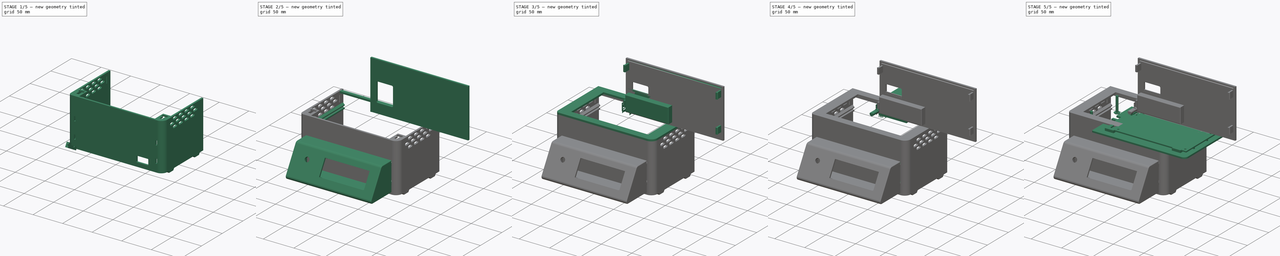
[diagram: build sequence overview — one tinted view per stage of 5, left to right]
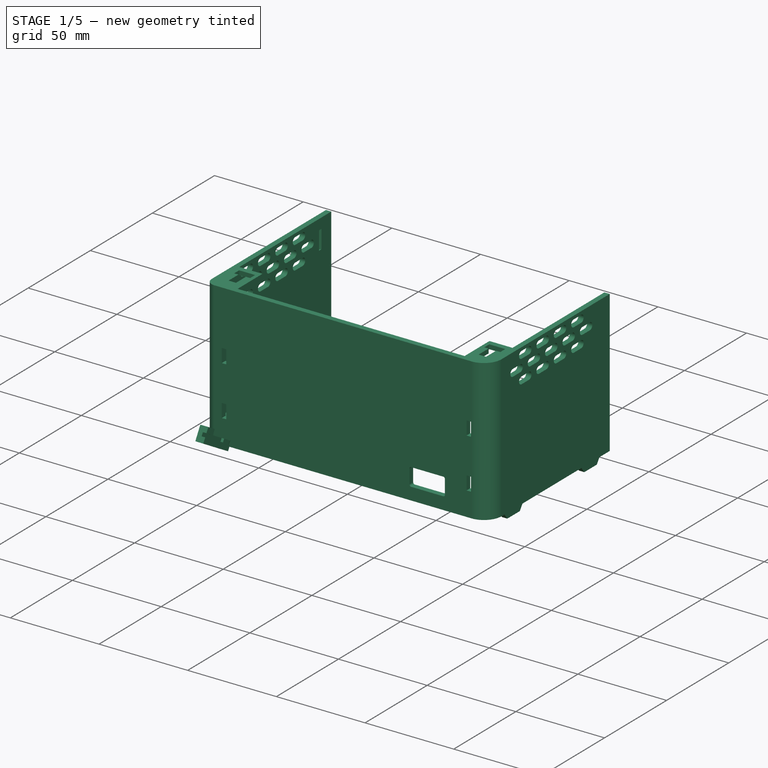
[diagram: stage 1 of 5 — iso view after this stage's code; geometry added in this stage tinted green]
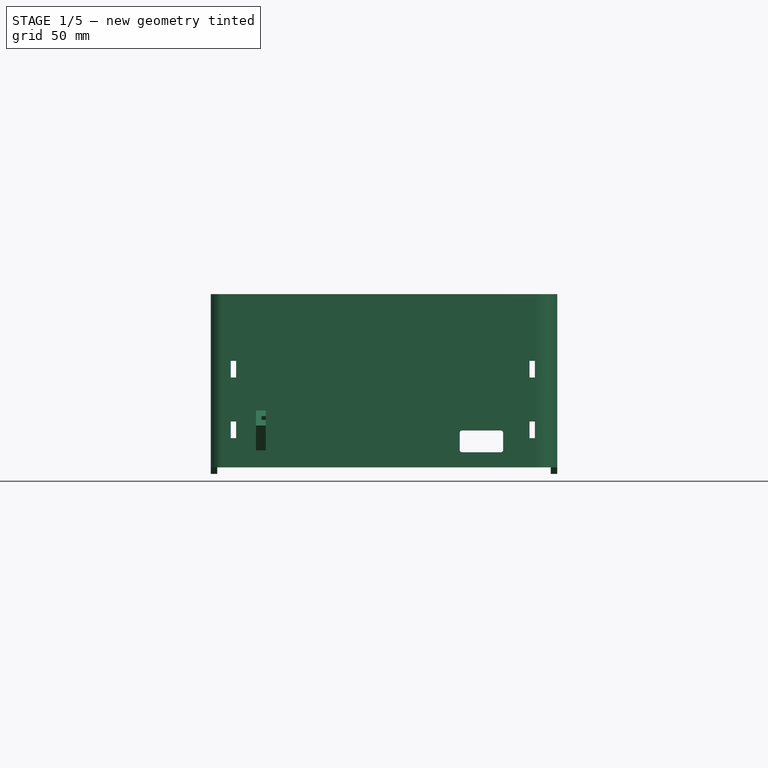
[diagram: stage 1 of 5 — front view after this stage's code; geometry added in this stage tinted green]
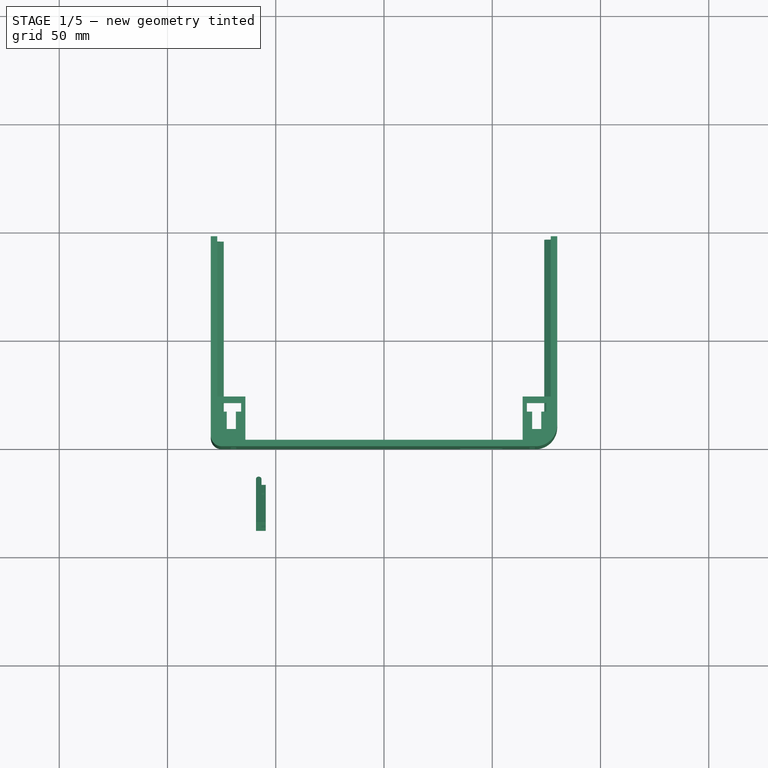
[diagram: stage 1 of 5 — top view after this stage's code; geometry added in this stage tinted green]
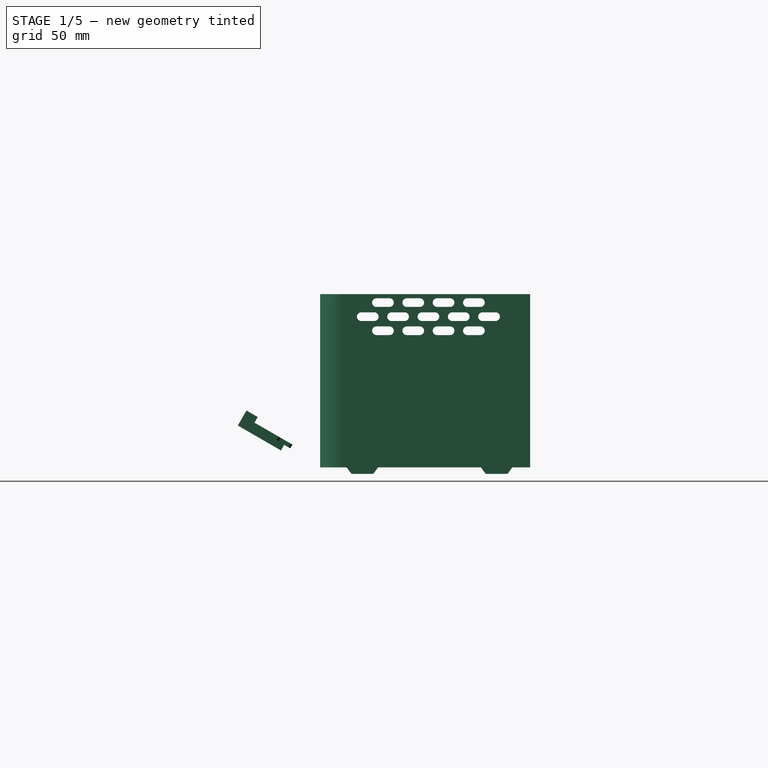
[diagram: stage 1 of 5 — right view after this stage's code; geometry added in this stage tinted green]
FCSTD DOCUMENT  (FreeCAD 2023.131R26244 +5365 (Git))
Label: Soldering_Plate
License: Creative Commons Attribution-NonCommercial
LicenseURL: http://creativecommons.org/licenses/by-nc/4.0/
objects: Sketcher::SketchObject×43, PartDesign::Pad×22, PartDesign::AdditiveBox×13, PartDesign::Plane×12, PartDesign::Body×10, PartDesign::Mirrored×10, PartDesign::Fillet×10, Part::Extrusion×9, Part::MultiFuse×9, PartDesign::Pocket×8, Part::Box×7, Part::Cylinder×7, PartDesign::LinearPattern×6, Part::FeaturePython×5, PartDesign::SubtractiveBox×5, Part::Cut×5, Part::Revolution×5, Part::Fillet×4, App::Part×4, Part::SubShapeBinder×3, +13 more types
note: 412 computed .brp shape members not serialized (recipe doc carries the construction recipe); baked Part::Feature solids carry a one-line shape summary decoded from their .brp

FEATURE [PartDesign::AdditiveBox] Box  label="Top"
  AddSubType = 0
  AttacherType = Attacher::AttachEngine3D
  AttachmentOffset = pos=(-80,-50,-5) rot=(0,0,1;0rad)
  AttachmentSupport = -> [XY_Plane006]
  Height = 3
  InvalidShape = false
  Length = 160
  MapMode = 5
  NewSolid = false
  Placement = pos=(-80,-50,-5) rot=(0,0,1;0rad)
  Support = -> [XY_Plane006]
  Suppress = false
  TreeRank = 103
  ValidateShape = true
  Width = 100
  expr: AttachmentOffset.Base.x = -Length / 2
  expr: AttachmentOffset.Base.y = -Width / 2
  expr: AttachmentOffset.Base.z = -Height - 2
FEATURE [PartDesign::Body] Body007  label="BluePill"
  AutoGroupSolids = false
  ClaimAllChildren = false
  ExportMode = 0
  Group = -> [Sketch005,Pad003,Sketch006,Pad004,LinearPattern,Mirrored,Box002,LinearPattern001,Mirrored001]
  InvalidShape = false
  Origin = -> Origin007
  Placement = pos=(57.5,19.5,-77) rot=(0,0,1;1.5708rad)
  Tip = -> Mirrored001
  TreeRank = 117
  ValidateShape = true
  _ExportChildren = -> [Pad003,Pad004,LinearPattern,Mirrored,Box002,LinearPattern001,Mirrored001]
  _GroupVersion = 1
  expr: Placement.Base.x = <<Top>>.Length / 2 - .Shape.BoundBox.YLength / 2 + 4mm
  expr: Placement.Base.y = <<Top>>.Width / 2 - .Shape.BoundBox.YLength / 2 - 4
FEATURE [PartDesign::Plane] DatumPlane004
  AttachmentOffset = pos=(0,0,-5) rot=(0,0,1;0rad)
  AttachmentSupport = -> [XY_Plane007]
  InvalidShape = false
  Length = 10
  MapMode = 5
  MinimumLength = 10
  MinimumWidth = 10
  Placement = pos=(0,0,-5) rot=(0,0,1;0rad)
  ResizeMode = 0
  Support = -> [XY_Plane007]
  TreeRank = 140
  ValidateShape = true
  Width = 10
FEATURE [Sketcher::SketchObject] Sketch007
  ArcFitTolerance = 1e-06
  AttachmentSupport = -> [DatumPlane004]
  ExternalBSplineMaxDegree = 5
  ExternalBSplineTolerance = 0.0001
  FullyConstrained = true
  InternalTolerance = 1e-06
  InvalidShape = false
  MakeInternals = false
  MapMode = 5
  Placement = pos=(0,0,-5) rot=(0,0,1;0rad)
  Support = -> [DatumPlane004]
  TreeRank = 139
  ValidateShape = true
  expr: Constraints[6] = Box.Width
  expr: Constraints[7] = <<Top>>.Length
  sketch-geometry (16):
    g0: LineSegment [constr] StartX=-80 StartY=50 StartZ=0 EndX=80 EndY=50 EndZ=0
    g1: LineSegment [constr] StartX=80 StartY=50 StartZ=0 EndX=80 EndY=-50 EndZ=0
    g2: LineSegment [constr] StartX=80 StartY=-50 StartZ=0 EndX=-80 EndY=-50 EndZ=0
    g3: LineSegment [constr] StartX=-80 StartY=-50 StartZ=0 EndX=-80 EndY=50 EndZ=0
    g4: LineSegment StartX=-80 StartY=47 StartZ=0 EndX=-80 EndY=-45 EndZ=0
    g5: LineSegment StartX=-75 StartY=-50 StartZ=0 EndX=70 EndY=-50 EndZ=0
    g6: LineSegment StartX=80 StartY=-40 StartZ=0 EndX=80 EndY=47 EndZ=0
    g7: LineSegment StartX=80 StartY=47 StartZ=0 EndX=77 EndY=47 EndZ=0
    g8: LineSegment StartX=77 StartY=47 StartZ=0 EndX=77 EndY=-40 EndZ=0
    g9: LineSegment StartX=70 StartY=-47 StartZ=0 EndX=-75 EndY=-47 EndZ=0
    g10: LineSegment StartX=-77 StartY=-45 StartZ=0 EndX=-77 EndY=47 EndZ=0
    g11: LineSegment StartX=-77 StartY=47 StartZ=0 EndX=-80 EndY=47 EndZ=0
    g12: ArcOfCircle CenterX=70 CenterY=-40 CenterZ=0 NormalX=0 NormalY=0 NormalZ=1 AngleXU=0 Radius=10 StartAngle=4.71239 EndAngle=6.28319
    g13: ArcOfCircle CenterX=70 CenterY=-40 CenterZ=0 NormalX=0 NormalY=0 NormalZ=1 AngleXU=0 Radius=7 StartAngle=4.71239 EndAngle=6.28319
    g14: ArcOfCircle CenterX=-75 CenterY=-45 CenterZ=0 NormalX=0 NormalY=0 NormalZ=1 AngleXU=0 Radius=2 StartAngle=3.14159 EndAngle=4.71239
    g15: ArcOfCircle CenterX=-75 CenterY=-45 CenterZ=0 NormalX=0 NormalY=0 NormalZ=1 AngleXU=0 Radius=5 StartAngle=3.14159 EndAngle=4.71239
  constraints (40):
    c: Coincident(g0,g1)
    c: Coincident(g1,g2)
    c: Coincident(g2,g3)
    c: Coincident(g3,g0)
    c: Horizontal(g0)
    c: Vertical(g3)
    c: DistanceY(g1,g1) = 100
    c: DistanceX(g0,g0) = 160
    c: Symmetric(g0,g1,g-1)
    c: Symmetric(g1,g2,g-2)
    c: PointOnObject(g4,g3)
    c: Horizontal(g5)
    c: PointOnObject(g6,g1)
    c: Coincident(g6,g7)
    c: Coincident(g7,g8)
    c: Vertical(g8)
    c: Horizontal(g9)
    c: Vertical(g10)
    c: Coincident(g10,g11)
    c: Coincident(g11,g4)
    c: Horizontal(g11)
    c: Horizontal(g7)
    c: Equal(g7,g11)
    c: DistanceX(g11,g11) = 3
    c: Horizontal(g7,g10)
    c: DistanceY(g4,g0) = 3
    c: Tangent(g5,g12) = -1.5708
    c: Tangent(g6,g12) = -1.5708
    c: Tangent(g8,g13) = 1.5708
    c: Tangent(g9,g13) = 1.5708
    c: Tangent(g9,g14) = 1.5708
    c: Tangent(g10,g14) = 1.5708
    c: Tangent(g4,g15) = -1.5708
    c: Tangent(g5,g15) = -1.5708
    c: PointOnObject(g5,g2)
    c: PointOnObject(g4,g3)
    c: Radius(g12) = 10
    c: Coincident(g12,g13)
    c: Radius(g15) = 5
    c: Coincident(g14,g15)
FEATURE [PartDesign::Plane] DatumPlane005
  AttachmentOffset = pos=(0,0,-80) rot=(0,0,1;0rad)
  AttachmentSupport = -> [DatumPlane004]
  InvalidShape = false
  Length = 10
  MapMode = 5
  MinimumLength = 10
  MinimumWidth = 10
  Placement = pos=(0,0,-85) rot=(0,0,1;0rad)
  ResizeMode = 0
  Support = -> [DatumPlane004]
  TreeRank = 141
  ValidateShape = true
  Width = 10
FEATURE [PartDesign::Pad] Pad005  label="FrontCover"
  AddSubType = 0
  AlongSketchNormal = false
  AutoTaperInnerAngle = true
  CheckUpToFaceLimits = true
  ClaimChildren = false
  Direction = (0,0,1)
  Fit = 0
  FitJoin = 0
  InnerFit = 0
  InnerFitJoin = 0
  InvalidShape = false
  Length = 10
  Length2 = 100
  Linearize = true
  NewSolid = false
  Profile = -> Sketch007
  Refine = true
  Suppress = false
  TaperInnerAngle = 0
  TaperInnerAngleRev = 0
  TreeRank = 142
  Type = 3
  UpToFace = -> DatumPlane005
  ValidateShape = true
  _ProfileBasedVersion = 1
FEATURE [PartDesign::SubtractiveBox] Box003
  AddSubType = 1
  AttacherType = Attacher::AttachEngine3D
  AttachmentOffset = pos=(-81,-72,10) rot=(0,0,1;0rad)
  AttachmentSupport = -> [XZ_Plane007]
  BaseFeature = -> Pad005
  Height = 22
  InvalidShape = false
  Length = 5
  MapMode = 5
  NewSolid = false
  Placement = pos=(-81,-10,-72) rot=(1,0,0;1.5708rad)
  Refine = true
  Support = -> [XZ_Plane007]
  Suppress = false
  TreeRank = 168
  ValidateShape = true
  Width = 28.5
  expr: AttachmentOffset.Base.x = -<<Top>>.Length / 2 - 1mm
FEATURE [PartDesign::AdditiveBox] Box004
  AddSubType = 0
  AttacherType = Attacher::AttachEngine3D
  AttachmentOffset = pos=(74,-39.2,-28.4) rot=(0,0,1;0rad)
  AttachmentSupport = -> [XY_Plane008]
  BaseFeature = -> Box003
  Height = 4
  InvalidShape = false
  Length = 3
  MapMode = 5
  NewSolid = false
  Placement = pos=(74,-39.2,-28.4) rot=(0,0,1;0rad)
  Refine = true
  Support = -> [XY_Plane008]
  Suppress = false
  TreeRank = 170
  ValidateShape = true
  Width = 85
  expr: AttachmentOffset.Base.x = <<Top>>.Length / 2 - 6mm
  expr: AttachmentOffset.Base.y = -Width / 2 + 3.3mm
  expr: Width = <<Top>>.Width - 15
FEATURE [PartDesign::AdditiveBox] Box006
  AddSubType = 0
  AttacherType = Attacher::AttachEngine3D
  AttachmentOffset = pos=(74,-39.2,-85) rot=(0,0,1;0rad)
  AttachmentSupport = -> [XY_Plane008]
  BaseFeature = -> Box004
  Height = 2
  InvalidShape = false
  Length = 3
  MapMode = 5
  NewSolid = false
  Placement = pos=(74,-39.2,-85) rot=(0,0,1;0rad)
  Refine = true
  Support = -> [XY_Plane008]
  Suppress = false
  TreeRank = 194
  ValidateShape = true
  Width = 85
  expr: AttachmentOffset.Base.x = <<Top>>.Length / 2 - 6mm
  expr: AttachmentOffset.Base.y = -Width / 2 + 3.3mm
  expr: Width = <<Top>>.Width - 15
FEATURE [PartDesign::Body] Body009  label="BottomBase"
  AutoGroupSolids = false
  ClaimAllChildren = false
  ExportMode = 0
  Group = -> [DatumPlane006,Sketch009,Pad007,DatumPlane007,Sketch010,Pad008,Sketch011,Pad009,Cylinder001,Fillet004,Cylinder002,Sketch016,Pad011,Fillet005,Sketch017,Pad012,Sketch018,Pad013,Sketch019,Pad014,Sketch020,Pocket003]
  InvalidShape = false
  Origin = -> Origin009
  Tip = -> Pocket003
  TreeRank = 184
  ValidateShape = true
  _ExportChildren = -> [DatumPlane006,Pad007,DatumPlane007,Pad008,Pad009,Cylinder001,Fillet004,Cylinder002,Pad011,Fillet005,Pad012,Pad013,Pad014,Pocket003]
  _GroupVersion = 1
FEATURE [Sketcher::SketchObject] Sketch021
  ArcFitTolerance = 1e-06
  ExternalBSplineMaxDegree = 5
  ExternalBSplineTolerance = 0.0001
  ExternalGeometry = -> [Pad005]
  FullyConstrained = true
  InternalTolerance = 1e-06
  InvalidShape = false
  MakeInternals = false
  MapMode = 5
  Placement = pos=(-80,-39.2,-85) rot=(0.57735,-0.57735,-0.57735;2.0944rad)
  TreeRank = 235
  ValidateShape = true
  sketch-geometry (16):
    g0: LineSegment StartX=-77.7955 StartY=-0.206107 StartZ=0 EndX=-75.9004 EndY=-2.8145 EndZ=0
    g1: LineSegment StartX=-75.5363 StartY=-3 StartZ=0 EndX=-65.8637 EndY=-3 EndZ=0
    g2: LineSegment StartX=-65.4996 StartY=-2.8145 StartZ=0 EndX=-63.6045 EndY=-0.206107 EndZ=0
    g3: ArcOfCircle CenterX=-65.8637 CenterY=-2.55 CenterZ=0 NormalX=0 NormalY=0 NormalZ=1 AngleXU=0 Radius=0.45 StartAngle=4.71239 EndAngle=5.65487
    g4: ArcOfCircle CenterX=-75.5363 CenterY=-2.55 CenterZ=0 NormalX=0 NormalY=0 NormalZ=1 AngleXU=0 Radius=0.45 StartAngle=3.76991 EndAngle=4.71239
    g5: ArcOfCircle CenterX=-63.2 CenterY=-0.5 CenterZ=0 NormalX=0 NormalY=0 NormalZ=1 AngleXU=0 Radius=0.5 StartAngle=1.5708 EndAngle=2.51327
    g6: ArcOfCircle CenterX=-78.2 CenterY=-0.5 CenterZ=0 NormalX=0 NormalY=0 NormalZ=1 AngleXU=0 Radius=0.5 StartAngle=0.628319 EndAngle=1.5708
    g7: LineSegment StartX=-15.7955 StartY=-0.206107 StartZ=0 EndX=-13.9004 EndY=-2.8145 EndZ=0
    g8: LineSegment StartX=-13.5363 StartY=-3 StartZ=0 EndX=-3.86368 EndY=-3 EndZ=0
    g9: LineSegment StartX=-3.49962 StartY=-2.8145 StartZ=0 EndX=-1.60451 EndY=-0.206107 EndZ=0
    g10: ArcOfCircle CenterX=-3.86368 CenterY=-2.55 CenterZ=0 NormalX=0 NormalY=0 NormalZ=1 AngleXU=0 Radius=0.45 StartAngle=4.71239 EndAngle=5.65487
    g11: ArcOfCircle CenterX=-13.5363 CenterY=-2.55 CenterZ=0 NormalX=0 NormalY=0 NormalZ=1 AngleXU=0 Radius=0.45 StartAngle=3.76991 EndAngle=4.71239
    g12: ArcOfCircle CenterX=-1.2 CenterY=-0.5 CenterZ=0 NormalX=0 NormalY=0 NormalZ=1 AngleXU=0 Radius=0.5 StartAngle=1.5708 EndAngle=2.51327
    g13: ArcOfCircle CenterX=-16.2 CenterY=-0.5 CenterZ=0 NormalX=0 NormalY=0 NormalZ=1 AngleXU=0 Radius=0.5 StartAngle=0.628319 EndAngle=1.57078
    g14: LineSegment StartX=-78.2 StartY=0 StartZ=0 EndX=-63.2 EndY=0 EndZ=0
    g15: LineSegment StartX=-16.2 StartY=0 StartZ=0 EndX=-1.2 EndY=0 EndZ=0
  constraints (44):
    c: Horizontal(g1)
    c: Tangent(g1,g3) = -1.5708
    c: Tangent(g2,g3) = -1.5708
    c: Tangent(g0,g4) = -1.5708
    c: Tangent(g1,g4) = -1.5708
    c: PointOnObject(g13,g-1)
    c: Tangent(g2,g5) = 1.5708
    c: Tangent(g0,g6) = 1.5708
    c: Equal(g6,g5)
    c: Equal(g3,g4)
    c: Radius(g3) = 0.45
    c: Angle(g0,g-1) = 0.942478
    c: Angle(g2,g-1) = 2.19911
    c: Radius(g5) = 0.5
    c: Horizontal(g8)
    c: Tangent(g8,g10) = -1.5708
    c: Tangent(g9,g10) = -1.5708
    c: Tangent(g7,g11) = -1.5708
    c: Tangent(g8,g11) = -1.5708
    c: Tangent(g9,g12) = 1.5708
    c: Tangent(g7,g13) = 1.5708
    c: Equal(g13,g12)
    c: Equal(g10,g11)
    c: Equal(g3,g10) = 0.45
    c: Equal(g5,g12) = 0.5
    c: Angle(g7,g-1) = 0.942478
    c: Angle(g9,g-1) = 2.19911
    c: DistanceY(g1,g6) = 3
    c: DistanceX(g6,g5) = 15
    c: DistanceY(g8,g13) = 3
    c: DistanceX(g13,g12) = 15
    c: PointOnObject(g12,g-1)
    c: Horizontal(g7,g9)
    c: Vertical(g12,g12)
    c: Horizontal(g0,g2)
    c: Vertical(g5,g5)
    c: PointOnObject(g5,g-1)
    c: PointOnObject(g6,g-1)
    c: Coincident(g14,g6)
    c: Coincident(g14,g5)
    c: Coincident(g15,g13)
    c: Coincident(g15,g12)
    c: DistanceX(g-3,g6) = 8
    c: DistanceX(g12,g-4) = 7
FEATURE [PartDesign::Pad] Pad015
  AddSubType = 0
  AlongSketchNormal = false
  AutoTaperInnerAngle = true
  BaseFeature = -> Box006
  CheckUpToFaceLimits = true
  ClaimChildren = false
  Direction = (-1,-1e-16,-1e-16)
  Fit = 0
  FitJoin = 0
  InnerFit = 0
  InnerFitJoin = 0
  InvalidShape = false
  Length = 3
  Length2 = 100
  Linearize = true
  NewSolid = false
  Profile = -> Sketch021
  Refine = true
  Reversed = true
  Suppress = false
  TaperInnerAngle = 0
  TaperInnerAngleRev = 0
  TreeRank = 236
  Type = 0
  ValidateShape = true
  _ProfileBasedVersion = 1
FEATURE [PartDesign::Mirrored] Mirrored005
  AddSubType = 0
  BaseFeature = -> Pad015
  CopyShape = false
  InvalidShape = false
  MirrorPlane = -> YZ_Plane008
  NewSolid = false
  OriginalSubs = -> [Pad015]
  Originals = -> [Pad015]
  ParallelTransform = true
  Refine = true
  SubTransform = true
  Suppress = false
  TreeRank = 237
  ValidateShape = true
  _Version = 3
FEATURE [Sketcher::SketchObject] Sketch025
  ArcFitTolerance = 1e-06
  AttachmentSupport = -> [DatumPlane004]
  ExternalBSplineMaxDegree = 5
  ExternalBSplineTolerance = 0.0001
  FullyConstrained = true
  InternalTolerance = 1e-06
  InvalidShape = false
  MakeInternals = false
  MapMode = 5
  Placement = pos=(0,0,-5) rot=(0,0,1;0rad)
  Support = -> [DatumPlane004]
  TreeRank = 276
  ValidateShape = true
  expr: Constraints[10] = (<<Top>>.Width - 2 * <<Top>>.Height) / 2
  expr: Constraints[83] = <<Top>>.Length / 2 - <<Top>>.Height
  sketch-geometry (30):
    g0: ArcOfCircle CenterX=70 CenterY=-40 CenterZ=0 NormalX=0 NormalY=0 NormalZ=1 AngleXU=0 Radius=7 StartAngle=4.71239 EndAngle=6.28319
    g1: LineSegment StartX=77 StartY=-40 StartZ=0 EndX=77 EndY=-27 EndZ=0
    g2: LineSegment StartX=77 StartY=-27 StartZ=0 EndX=64 EndY=-27 EndZ=0
    g3: LineSegment StartX=64 StartY=-27 StartZ=0 EndX=64 EndY=-47 EndZ=0
    g4: LineSegment StartX=64 StartY=-47 StartZ=0 EndX=70 EndY=-47 EndZ=0
    g5: LineSegment StartX=75 StartY=-30 StartZ=0 EndX=66 EndY=-30 EndZ=0
    g6: LineSegment StartX=66 StartY=-30 StartZ=0 EndX=66 EndY=-34 EndZ=0
    g7: LineSegment StartX=66 StartY=-34 StartZ=0 EndX=68.4 EndY=-34 EndZ=0
    g8: LineSegment StartX=68.4 StartY=-34 StartZ=0 EndX=68.4 EndY=-42 EndZ=0
    g9: LineSegment StartX=68.4 StartY=-42 StartZ=0 EndX=72.6 EndY=-42 EndZ=0
    g10: LineSegment StartX=72.6 StartY=-42 StartZ=0 EndX=72.6 EndY=-34 EndZ=0
    g11: LineSegment StartX=72.6 StartY=-34 StartZ=0 EndX=75 EndY=-34 EndZ=0
    g12: LineSegment StartX=75 StartY=-34 StartZ=0 EndX=75 EndY=-30 EndZ=0
    g13: LineSegment [constr] StartX=75 StartY=-30 StartZ=0 EndX=77 EndY=-27 EndZ=0
    g14: LineSegment [constr] StartX=66 StartY=-30 StartZ=0 EndX=64 EndY=-27 EndZ=0
    g15: ArcOfCircle CenterX=-75 CenterY=-45 CenterZ=0 NormalX=0 NormalY=0 NormalZ=1 AngleXU=0 Radius=2 StartAngle=3.14159 EndAngle=4.71239
    g16: LineSegment StartX=-77 StartY=-45 StartZ=0 EndX=-77 EndY=-27 EndZ=0
    g17: LineSegment StartX=-77 StartY=-27 StartZ=0 EndX=-64 EndY=-27 EndZ=0
    g18: LineSegment StartX=-64 StartY=-27 StartZ=0 EndX=-64 EndY=-47 EndZ=0
    g19: LineSegment StartX=-64 StartY=-47 StartZ=0 EndX=-75 EndY=-47 EndZ=0
    g20: LineSegment StartX=-75 StartY=-30 StartZ=0 EndX=-66 EndY=-30 EndZ=0
    g21: LineSegment StartX=-66 StartY=-30 StartZ=0 EndX=-66 EndY=-34 EndZ=0
    g22: LineSegment StartX=-66 StartY=-34 StartZ=0 EndX=-68.4 EndY=-34 EndZ=0
    g23: LineSegment StartX=-68.4 StartY=-34 StartZ=0 EndX=-68.4 EndY=-42 EndZ=0
    g24: LineSegment StartX=-68.4 StartY=-42 StartZ=0 EndX=-72.6 EndY=-42 EndZ=0
    g25: LineSegment StartX=-72.6 StartY=-42 StartZ=0 EndX=-72.6 EndY=-34 EndZ=0
    g26: LineSegment StartX=-72.6 StartY=-34 StartZ=0 EndX=-75 EndY=-34 EndZ=0
    g27: LineSegment StartX=-75 StartY=-34 StartZ=0 EndX=-75 EndY=-30 EndZ=0
    g28: LineSegment [constr] StartX=-66 StartY=-30 StartZ=0 EndX=-64 EndY=-27 EndZ=0
    g29: LineSegment [constr] StartX=-75 StartY=-30 StartZ=0 EndX=-77 EndY=-27 EndZ=0
  constraints (85):
    c: Tangent(g0,g1) = -1.5708
    c: Coincident(g1,g2)
    c: Horizontal(g2)
    c: Coincident(g2,g3)
    c: Vertical(g3)
    c: Coincident(g3,g4)
    c: Coincident(g4,g0)
    c: Horizontal(g4)
    c: Vertical(g1)
    c: Radius(g0) = 7
    c: DistanceY(g0,g-1) = 47
    c: Vertical(g0,g0)
    c: Horizontal(g5)
    c: Coincident(g5,g6)
    c: Coincident(g6,g7)
    c: Horizontal(g7)
    c: Coincident(g7,g8)
    c: Vertical(g8)
    c: Coincident(g8,g9)
    c: Horizontal(g9)
    c: Coincident(g9,g10)
    c: Vertical(g10)
    c: Coincident(g10,g11)
    c: Horizontal(g11)
    c: Coincident(g11,g12)
    c: Coincident(g12,g5)
    c: Vertical(g12)
    c: Vertical(g6)
    c: Horizontal(g10,g7)
    c: Equal(g11,g7)
    c: DistanceY(g6,g6) = 4
    c: DistanceX(g9,g9) = 4.2
    c: Coincident(g13,g5)
    c: Coincident(g13,g1)
    c: Coincident(g14,g5)
    c: Coincident(g14,g2)
    c: Equal(g14,g13)
    c: DistanceY(g5,g1) = 3
    c: DistanceY(g3,g3) = 20
    c: DistanceY(g8,g8) = 8
    c: Tangent(g15,g16) = 1.5708
    c: Coincident(g16,g17)
    c: Horizontal(g17)
    c: Coincident(g17,g18)
    c: Vertical(g18)
    c: Coincident(g18,g19)
    c: Coincident(g19,g15)
    c: Horizontal(g19)
    c: Vertical(g16)
    c: Symmetric(g1,g16,g-2)
    c: Horizontal(g18,g3)
    c: Radius(g15) = 2
    c: Vertical(g15,g15)
    c: Horizontal(g20)
    c: Coincident(g20,g21)
    c: Vertical(g21)
    c: Coincident(g21,g22)
    c: Horizontal(g22)
    c: Coincident(g22,g23)
    c: Vertical(g23)
    c: Coincident(g23,g24)
    c: Coincident(g24,g25)
    c: Vertical(g25)
    c: Coincident(g25,g26)
    c: Horizontal(g26)
    c: Coincident(g26,g27)
    c: Coincident(g27,g20)
    c: Vertical(g27)
    c: Equal(g23,g8)
    c: Horizontal(g24)
    c: Equal(g5,g20)
    c: Horizontal(g22,g25)
    c: Horizontal(g20,g5)
    c: Equal(g22,g26)
    c: Equal(g24,g9)
    c: Equal(g6,g21)
    c: Coincident(g28,g20)
    c: Coincident(g28,g17)
    c: Coincident(g29,g20)
    c: Coincident(g29,g16)
    c: Equal(g28,g29)
    c: DistanceX(g2,g2) = 13
    c: Equal(g2,g17)
    c: DistanceX(g-1,g1) = 77
    c: DistanceX(g5,g1) = 2
FEATURE [PartDesign::Pad] Pad019
  AddSubType = 0
  AlongSketchNormal = false
  AutoTaperInnerAngle = true
  BaseFeature = -> Mirrored005
  CheckUpToFaceLimits = true
  ClaimChildren = false
  Direction = (0,0,1)
  Fit = 0
  FitJoin = 0
  InnerFit = 0
  InnerFitJoin = 0
  InvalidShape = false
  Length = 2.5
  Length2 = 100
  Linearize = true
  NewSolid = false
  Profile = -> Sketch025
  Refine = true
  Reversed = true
  Suppress = false
  TaperInnerAngle = 0
  TaperInnerAngleRev = 0
  TreeRank = 279
  Type = 0
  ValidateShape = true
  _ProfileBasedVersion = 1
FEATURE [PartDesign::SubtractiveBox] Box021
  AddSubType = 1
  AttacherType = Attacher::AttachEngine3D
  AttachmentOffset = pos=(67.2,-71.5,-3) rot=(0,0,1;0rad)
  AttachmentSupport = -> [Pad019]
  BaseFeature = -> Pad019
  Height = 3
  InvalidShape = false
  Length = 2.5
  MapMode = 5
  NewSolid = false
  Placement = pos=(67.2,-47,-71.5) rot=(1,0,0;1.5708rad)
  Refine = true
  Support = -> [Pad019]
  Suppress = false
  TreeRank = 406
  ValidateShape = true
  Width = 7.7
  expr: AttachmentOffset.Base.z = -Height
FEATURE [PartDesign::SubtractiveBox] Box022
  AddSubType = 1
  AttacherType = Attacher::AttachEngine3D
  AttachmentOffset = pos=(-70.8,-71.5,-3) rot=(0,0,1;0rad)
  AttachmentSupport = -> [Pad019]
  BaseFeature = -> Box021
  Height = 3
  InvalidShape = false
  Length = 2.5
  MapMode = 5
  NewSolid = false
  Placement = pos=(-70.8,-47,-71.5) rot=(1,0,0;1.5708rad)
  Refine = true
  Support = -> [Pad019]
  Suppress = false
  TreeRank = 406
  ValidateShape = true
  Width = 7.7
  expr: AttachmentOffset.Base.z = -Height
FEATURE [PartDesign::LinearPattern] LinearPattern005
  AddSubType = 0
  BaseFeature = -> Box022
  CopyShape = false
  Direction = -> Z_Axis008
  InvalidShape = false
  Length = 28
  NewSolid = false
  Occurrences = 2
  OriginalSubs = -> [Box021,Box022]
  Originals = -> [Box021,Box022]
  ParallelTransform = true
  Placement = pos=(-70.8,-47,-71.5) rot=(1,0,0;1.5708rad)
  SubTransform = true
  Suppress = false
  TreeRank = 407
  ValidateShape = true
  _Version = 3
FEATURE [Part::SubShapeBinder] Import  label="Import(LinearPattern005)"
  BindCopyOnChange = 0
  BindMode = 0
  ClaimChildren = false
  Context = -> Body002 [Import.]
  EdgeTolerance = 1e-06
  FillStyle = 0
  Fuse = false
  InvalidShape = false
  MakeFace = false
  MergeEdges = true
  OffsetFill = false
  OffsetIntersection = false
  OffsetJoinType = 0
  OffsetOpenResult = false
  Outline = false
  PartialLoad = false
  Relative = true
  SplitEdges = false
  Support = -> [Body008[LinearPattern005.]]
  TightBound = false
  TreeRank = 417
  ValidateShape = true
  _Version = 8
FEATURE [Sketcher::SketchObject] Sketch033
  ArcFitTolerance = 1e-06
  AttachmentSupport = -> [Import]
  ExternalBSplineMaxDegree = 5
  ExternalBSplineTolerance = 0.0001
  FullyConstrained = true
  InternalTolerance = 1e-06
  InvalidShape = false
  MakeInternals = false
  MapMode = 5
  Placement = pos=(-25,-3.5e-15,1e-16) rot=(0.57735,-0.57735,-0.57735;2.0944rad)
  Support = -> [Import]
  TreeRank = 418
  ValidateShape = true
FEATURE [PartDesign::Body] Body002  label="LegBase"
  AutoGroupSolids = false
  ClaimAllChildren = false
  ExportMode = 0
  Group = -> [DatumPlane,DatumPlane001,Sketch003,Pad001,DatumPlane003,Sketch004,Pad002,Boolean,LinearPattern002,Mirrored002,Sketch008,Import002,Pad006,Import,Sketch033]
  InvalidShape = false
  Origin = -> Origin002
  Placement = pos=(-55,30,-24.7) rot=(0,0,1;0rad)
  Tip = -> Pad006
  TreeRank = 43
  ValidateShape = true
  _ExportChildren = -> [DatumPlane,DatumPlane001,Pad001,DatumPlane003,Pad002,Boolean,LinearPattern002,Mirrored002,Import002,Pad006,Import,Sketch033]
  _GroupVersion = 1
FEATURE [PartDesign::Plane] DatumPlane009
  AttachmentOffset = pos=(0,0,80) rot=(0,0,1;0rad)
  AttachmentSupport = -> [YZ_Plane008]
  InvalidShape = false
  Length = 10
  MapMode = 5
  MinimumLength = 10
  MinimumWidth = 10
  Placement = pos=(80,-1.78e-14,1.78e-14) rot=(0.57735,0.57735,0.57735;2.0944rad)
  ResizeMode = 0
  Support = -> [YZ_Plane008]
  TreeRank = 419
  ValidateShape = true
  Width = 85
  expr: AttachmentOffset.Base.z = <<FrontCover>>.Shape.BoundBox.XMax
FEATURE [Sketcher::SketchObject] Sketch034
  ArcFitTolerance = 1e-06
  AttachmentSupport = -> [DatumPlane009]
  ExternalBSplineMaxDegree = 5
  ExternalBSplineTolerance = 0.0001
  FullyConstrained = true
  InternalTolerance = 1e-06
  InvalidShape = false
  MakeInternals = false
  MapMode = 5
  Placement = pos=(80,-1.78e-14,1.78e-14) rot=(0.57735,0.57735,0.57735;2.0944rad)
  Support = -> [DatumPlane009]
  TreeRank = 420
  ValidateShape = true
  sketch-geometry (65):
    g0: ArcOfCircle CenterX=-3 CenterY=-15.4 CenterZ=0 NormalX=0 NormalY=0 NormalZ=1 AngleXU=0 Radius=2 StartAngle=1.5708 EndAngle=4.71239
    g1: ArcOfCircle CenterX=3 CenterY=-15.4 CenterZ=0 NormalX=0 NormalY=0 NormalZ=1 AngleXU=0 Radius=2 StartAngle=4.71239 EndAngle=7.85398
    g2: LineSegment StartX=-3 StartY=-17.4 StartZ=0 EndX=3 EndY=-17.4 EndZ=0
    g3: LineSegment StartX=3 StartY=-13.4 StartZ=0 EndX=-3 EndY=-13.4 EndZ=0
    g4: LineSegment [constr] StartX=3 StartY=-15.4 StartZ=0 EndX=-3 EndY=-15.4 EndZ=0
    g5: ArcOfCircle CenterX=11 CenterY=-15.4 CenterZ=0 NormalX=0 NormalY=0 NormalZ=1 AngleXU=0 Radius=2 StartAngle=1.5708 EndAngle=4.71239
    g6: ArcOfCircle CenterX=17 CenterY=-15.4 CenterZ=0 NormalX=0 NormalY=0 NormalZ=1 AngleXU=0 Radius=2 StartAngle=4.71239 EndAngle=7.85398
    g7: LineSegment StartX=11 StartY=-17.4 StartZ=0 EndX=17 EndY=-17.4 EndZ=0
    g8: LineSegment StartX=17 StartY=-13.4 StartZ=0 EndX=11 EndY=-13.4 EndZ=0
    g9: LineSegment [constr] StartX=17 StartY=-15.4 StartZ=0 EndX=11 EndY=-15.4 EndZ=0
    g10: ArcOfCircle CenterX=25 CenterY=-15.4 CenterZ=0 NormalX=0 NormalY=0 NormalZ=1 AngleXU=0 Radius=2 StartAngle=1.5708 EndAngle=4.71239
    g11: ArcOfCircle CenterX=31 CenterY=-15.4 CenterZ=0 NormalX=0 NormalY=0 NormalZ=1 AngleXU=0 Radius=2 StartAngle=4.71239 EndAngle=7.85398
    g12: LineSegment StartX=25 StartY=-17.4 StartZ=0 EndX=31 EndY=-17.4 EndZ=0
    g13: LineSegment StartX=31 StartY=-13.4 StartZ=0 EndX=25 EndY=-13.4 EndZ=0
    g14: LineSegment [constr] StartX=31 StartY=-15.4 StartZ=0 EndX=25 EndY=-15.4 EndZ=0
    g15: ArcOfCircle CenterX=-17 CenterY=-15.4 CenterZ=0 NormalX=0 NormalY=0 NormalZ=1 AngleXU=0 Radius=2 StartAngle=1.5708 EndAngle=4.71239
    g16: ArcOfCircle CenterX=-11 CenterY=-15.4 CenterZ=0 NormalX=0 NormalY=0 NormalZ=1 AngleXU=0 Radius=2 StartAngle=4.71239 EndAngle=7.85398
    g17: LineSegment StartX=-17 StartY=-17.4 StartZ=0 EndX=-11 EndY=-17.4 EndZ=0
    g18: LineSegment StartX=-11 StartY=-13.4 StartZ=0 EndX=-17 EndY=-13.4 EndZ=0
    g19: LineSegment [constr] StartX=-11 StartY=-15.4 StartZ=0 EndX=-17 EndY=-15.4 EndZ=0
    g20: ArcOfCircle CenterX=-31 CenterY=-15.4 CenterZ=0 NormalX=0 NormalY=0 NormalZ=1 AngleXU=0 Radius=2 StartAngle=1.5708 EndAngle=4.71239
    g21: ArcOfCircle CenterX=-25 CenterY=-15.4 CenterZ=0 NormalX=0 NormalY=0 NormalZ=1 AngleXU=0 Radius=2 StartAngle=4.71239 EndAngle=7.85398
    g22: LineSegment StartX=-31 StartY=-17.4 StartZ=0 EndX=-25 EndY=-17.4 EndZ=0
    g23: LineSegment StartX=-25 StartY=-13.4 StartZ=0 EndX=-31 EndY=-13.4 EndZ=0
    g24: LineSegment [constr] StartX=-25 StartY=-15.4 StartZ=0 EndX=-31 EndY=-15.4 EndZ=0
    g25: ArcOfCircle CenterX=4 CenterY=-8.9 CenterZ=0 NormalX=0 NormalY=0 NormalZ=1 AngleXU=0 Radius=2 StartAngle=1.5708 EndAngle=4.71239
    g26: ArcOfCircle CenterX=10 CenterY=-8.9 CenterZ=0 NormalX=0 NormalY=0 NormalZ=1 AngleXU=0 Radius=2 StartAngle=4.71239 EndAngle=7.85398
    g27: LineSegment StartX=4 StartY=-10.9 StartZ=0 EndX=10 EndY=-10.9 EndZ=0
    g28: LineSegment StartX=10 StartY=-6.9 StartZ=0 EndX=4 EndY=-6.9 EndZ=0
    g29: LineSegment [constr] StartX=10 StartY=-8.9 StartZ=0 EndX=4 EndY=-8.9 EndZ=0
    g30: ArcOfCircle CenterX=18 CenterY=-8.9 CenterZ=0 NormalX=0 NormalY=0 NormalZ=1 AngleXU=0 Radius=2 StartAngle=1.5708 EndAngle=4.71239
    g31: ArcOfCircle CenterX=24 CenterY=-8.9 CenterZ=0 NormalX=0 NormalY=0 NormalZ=1 AngleXU=0 Radius=2 StartAngle=4.71239 EndAngle=7.85398
    g32: LineSegment StartX=18 StartY=-10.9 StartZ=0 EndX=24 EndY=-10.9 EndZ=0
    g33: LineSegment StartX=24 StartY=-6.9 StartZ=0 EndX=18 EndY=-6.9 EndZ=0
    g34: LineSegment [constr] StartX=24 StartY=-8.9 StartZ=0 EndX=18 EndY=-8.9 EndZ=0
    g35: ArcOfCircle CenterX=-10 CenterY=-8.9 CenterZ=0 NormalX=0 NormalY=0 NormalZ=1 AngleXU=0 Radius=2 StartAngle=1.5708 EndAngle=4.71239
    g36: ArcOfCircle CenterX=-4 CenterY=-8.9 CenterZ=0 NormalX=0 NormalY=0 NormalZ=1 AngleXU=0 Radius=2 StartAngle=4.71239 EndAngle=7.85398
    g37: LineSegment StartX=-10 StartY=-10.9 StartZ=0 EndX=-4 EndY=-10.9 EndZ=0
    g38: LineSegment StartX=-4 StartY=-6.9 StartZ=0 EndX=-10 EndY=-6.9 EndZ=0
    g39: LineSegment [constr] StartX=-4 StartY=-8.9 StartZ=0 EndX=-10 EndY=-8.9 EndZ=0
    g40: ArcOfCircle CenterX=-24 CenterY=-8.9 CenterZ=0 NormalX=0 NormalY=0 NormalZ=1 AngleXU=0 Radius=2 StartAngle=1.5708 EndAngle=4.71239
    g41: ArcOfCircle CenterX=-18 CenterY=-8.9 CenterZ=0 NormalX=0 NormalY=0 NormalZ=1 AngleXU=0 Radius=2 StartAngle=4.71239 EndAngle=7.85398
    g42: LineSegment StartX=-24 StartY=-10.9 StartZ=0 EndX=-18 EndY=-10.9 EndZ=0
    g43: LineSegment StartX=-18 StartY=-6.9 StartZ=0 EndX=-24 EndY=-6.9 EndZ=0
    g44: LineSegment [constr] StartX=-18 StartY=-8.9 StartZ=0 EndX=-24 EndY=-8.9 EndZ=0
    g45: ArcOfCircle CenterX=4 CenterY=-21.9 CenterZ=0 NormalX=0 NormalY=0 NormalZ=1 AngleXU=0 Radius=2 StartAngle=1.5708 EndAngle=4.71239
    g46: ArcOfCircle CenterX=10 CenterY=-21.9 CenterZ=0 NormalX=0 NormalY=0 NormalZ=1 AngleXU=0 Radius=2 StartAngle=4.71239 EndAngle=7.85398
    g47: LineSegment StartX=4 StartY=-23.9 StartZ=0 EndX=10 EndY=-23.9 EndZ=0
    g48: LineSegment StartX=10 StartY=-19.9 StartZ=0 EndX=4 EndY=-19.9 EndZ=0
    g49: LineSegment [constr] StartX=10 StartY=-21.9 StartZ=0 EndX=4 EndY=-21.9 EndZ=0
    g50: ArcOfCircle CenterX=18 CenterY=-21.9 CenterZ=0 NormalX=0 NormalY=0 NormalZ=1 AngleXU=0 Radius=2 StartAngle=1.5708 EndAngle=4.71239
    g51: ArcOfCircle CenterX=24 CenterY=-21.9 CenterZ=0 NormalX=0 NormalY=0 NormalZ=1 AngleXU=0 Radius=2 StartAngle=4.71239 EndAngle=7.85398
    g52: LineSegment StartX=18 StartY=-23.9 StartZ=0 EndX=24 EndY=-23.9 EndZ=0
    g53: LineSegment StartX=24 StartY=-19.9 StartZ=0 EndX=18 EndY=-19.9 EndZ=0
    g54: LineSegment [constr] StartX=24 StartY=-21.9 StartZ=0 EndX=18 EndY=-21.9 EndZ=0
    g55: ArcOfCircle CenterX=-10 CenterY=-21.9 CenterZ=0 NormalX=0 NormalY=0 NormalZ=1 AngleXU=0 Radius=2 StartAngle=1.5708 EndAngle=4.71239
    g56: ArcOfCircle CenterX=-4 CenterY=-21.9 CenterZ=0 NormalX=0 NormalY=0 NormalZ=1 AngleXU=0 Radius=2 StartAngle=4.71239 EndAngle=7.85398
    g57: LineSegment StartX=-10 StartY=-23.9 StartZ=0 EndX=-4 EndY=-23.9 EndZ=0
    g58: LineSegment StartX=-4 StartY=-19.9 StartZ=0 EndX=-10 EndY=-19.9 EndZ=0
    g59: LineSegment [constr] StartX=-4 StartY=-21.9 StartZ=0 EndX=-10 EndY=-21.9 EndZ=0
    g60: ArcOfCircle CenterX=-24 CenterY=-21.9 CenterZ=0 NormalX=0 NormalY=0 NormalZ=1 AngleXU=0 Radius=2 StartAngle=1.5708 EndAngle=4.71239
    g61: ArcOfCircle CenterX=-18 CenterY=-21.9 CenterZ=0 NormalX=0 NormalY=0 NormalZ=1 AngleXU=0 Radius=2 StartAngle=4.71239 EndAngle=7.85398
    g62: LineSegment StartX=-24 StartY=-23.9 StartZ=0 EndX=-18 EndY=-23.9 EndZ=0
    g63: LineSegment StartX=-18 StartY=-19.9 StartZ=0 EndX=-24 EndY=-19.9 EndZ=0
    g64: LineSegment [constr] StartX=-18 StartY=-21.9 StartZ=0 EndX=-24 EndY=-21.9 EndZ=0
  constraints (155):
    c: Tangent(g0,g2) = -1.5708
    c: Tangent(g2,g1) = -1.5708
    c: Tangent(g1,g3) = -1.5708
    c: Tangent(g3,g0) = -1.5708
    c: Equal(g0,g1)
    c: Radius(g1) = 2
    c: Symmetric(g1,g0,g-2)
    c: DistanceY(g1,g-1) = 15.4
    c: Coincident(g4,g1)
    c: Coincident(g4,g0)
    c: DistanceX(g4,g4) = 6
    c: Tangent(g5,g7) = -1.5708
    c: Tangent(g7,g6) = -1.5708
    c: Tangent(g6,g8) = -1.5708
    c: Tangent(g8,g5) = -1.5708
    c: Equal(g5,g6)
    c: Equal(g1,g6) = 2
    c: Coincident(g9,g6)
    c: Coincident(g9,g5)
    c: Equal(g4,g9) = 6
    c: Horizontal(g9)
    c: Tangent(g10,g12) = -1.5708
    c: Tangent(g12,g11) = -1.5708
    c: Tangent(g11,g13) = -1.5708
    c: Tangent(g13,g10) = -1.5708
    c: Equal(g10,g11)
    c: Coincident(g14,g11)
    c: Coincident(g14,g10)
    c: Horizontal(g14)
    c: Equal(g14,g4)
    c: Equal(g1,g11)
    c: Tangent(g15,g17) = -1.5708
    c: Tangent(g17,g16) = -1.5708
    c: Tangent(g16,g18) = -1.5708
    c: Tangent(g18,g15) = -1.5708
    c: Equal(g15,g16)
    c: Coincident(g19,g16)
    c: Coincident(g19,g15)
    c: Horizontal(g19)
    c: Equal(g1,g16)
    c: Equal(g4,g19)
    c: Tangent(g20,g22) = -1.5708
    c: Tangent(g22,g21) = -1.5708
    c: Tangent(g21,g23) = -1.5708
    c: Tangent(g23,g20) = -1.5708
    c: Equal(g20,g21)
    c: Coincident(g24,g21)
    c: Coincident(g24,g20)
    c: Horizontal(g24)
    c: Equal(g21,g1)
    c: Equal(g4,g24)
    c: Horizontal(g15,g21)
    c: Horizontal(g0,g16)
    c: Horizontal(g5,g1)
    c: Horizontal(g10,g6)
    c: DistanceX(g21,g15) = 8
    c: DistanceX(g16,g0) = 8
    c: DistanceX(g1,g5) = 8
    c: DistanceX(g6,g10) = 8
    c: Tangent(g25,g27) = -1.5708
    c: Tangent(g27,g26) = -1.5708
    c: Tangent(g26,g28) = -1.5708
    c: Tangent(g28,g25) = -1.5708
    c: Equal(g25,g26)
    c: Coincident(g29,g26)
    c: Coincident(g29,g25)
    c: Horizontal(g29)
    c: Equal(g29,g4)
    c: Equal(g26,g1)
    c: Tangent(g30,g32) = -1.5708
    c: Tangent(g32,g31) = -1.5708
    c: Tangent(g31,g33) = -1.5708
    c: Tangent(g33,g30) = -1.5708
    c: Equal(g30,g31)
    c: Coincident(g34,g31)
    c: Coincident(g34,g30)
    c: Horizontal(g34)
    c: Equal(g34,g4)
    c: Equal(g1,g31)
    c: Tangent(g35,g37) = -1.5708
    c: Tangent(g37,g36) = -1.5708
    c: Tangent(g36,g38) = -1.5708
    c: Tangent(g38,g35) = -1.5708
    c: Equal(g35,g36)
    c: Coincident(g39,g36)
    c: Coincident(g39,g35)
    c: Horizontal(g39)
    c: Equal(g39,g4)
    c: Equal(g36,g1)
    c: Tangent(g40,g42) = -1.5708
    c: Tangent(g42,g41) = -1.5708
    c: Tangent(g41,g43) = -1.5708
    c: Tangent(g43,g40) = -1.5708
    c: Equal(g40,g41)
    c: Coincident(g44,g41)
    c: Coincident(g44,g40)
    c: Horizontal(g44)
    c: Equal(g44,g4)
    c: Equal(g1,g41)
    c: DistanceY(g0,g36) = 6.5
    c: Horizontal(g25,g36)
    c: Horizontal(g35,g41)
    c: Horizontal(g30,g26)
    c: DistanceX(g1,g25) = 1
    c: DistanceX(g36,g0) = 1
    c: DistanceX(g41,g15) = 1
    c: DistanceX(g6,g30) = 1
    c: Tangent(g45,g47) = -1.5708
    c: Tangent(g47,g46) = -1.5708
    c: Tangent(g46,g48) = -1.5708
    c: Tangent(g48,g45) = -1.5708
    c: Equal(g45,g46)
    c: Coincident(g49,g46)
    c: Coincident(g49,g45)
    c: Horizontal(g49)
    c: Tangent(g50,g52) = -1.5708
    c: Tangent(g52,g51) = -1.5708
    c: Tangent(g51,g53) = -1.5708
    c: Tangent(g53,g50) = -1.5708
    c: Equal(g50,g51)
    c: Coincident(g54,g51)
    c: Coincident(g54,g50)
    c: Horizontal(g54)
    c: Tangent(g55,g57) = -1.5708
    c: Tangent(g57,g56) = -1.5708
    c: Tangent(g56,g58) = -1.5708
    c: Tangent(g58,g55) = -1.5708
    c: Equal(g55,g56)
    c: Coincident(g59,g56)
    c: Coincident(g59,g55)
    c: Horizontal(g59)
    c: Tangent(g60,g62) = -1.5708
    c: Tangent(g62,g61) = -1.5708
    c: Tangent(g61,g63) = -1.5708
    c: Tangent(g63,g60) = -1.5708
    c: Equal(g60,g61)
    c: Coincident(g64,g61)
    c: Coincident(g64,g60)
    c: Horizontal(g64)
    c: Horizontal(g45,g56)
    c: Horizontal(g55,g61)
    c: Horizontal(g50,g46)
    c: Equal(g64,g4)
    c: Equal(g59,g4)
    c: Equal(g49,g4)
    c: Equal(g54,g4)
    c: Equal(g61,g1)
    c: Equal(g56,g1)
    c: Equal(g46,g1)
    c: Equal(g51,g1)
    c: DistanceY(g56,g0) = 6.5
    c: Vertical(g41,g61)
    c: Vertical(g56,g36)
    c: Vertical(g45,g25)
    c: Vertical(g50,g30)
FEATURE [PartDesign::Pocket] Pocket004
  AddSubType = 1
  AutoTaperInnerAngle = true
  BaseFeature = -> LinearPattern005
  CheckUpToFaceLimits = true
  ClaimChildren = false
  Fit = 0
  FitJoin = 0
  InnerFit = 0
  InnerFitJoin = 0
  InvalidShape = false
  Length = 3
  Length2 = 100
  Linearize = true
  NewSolid = false
  Profile = -> Sketch034
  Suppress = false
  TaperInnerAngle = 0
  TaperInnerAngleRev = 0
  TreeRank = 421
  Type = 0
  ValidateShape = true
  _ProfileBasedVersion = 1
  _Version = 1
FEATURE [PartDesign::Mirrored] Mirrored007
  AddSubType = 0
  BaseFeature = -> Pocket004
  CopyShape = false
  InvalidShape = false
  MirrorPlane = -> YZ_Plane008
  NewSolid = false
  OriginalSubs = -> [Pocket004]
  Originals = -> [Pocket004]
  ParallelTransform = true
  SubTransform = true
  Suppress = false
  TreeRank = 422
  ValidateShape = true
  _Version = 3
FEATURE [Sketcher::SketchObject] Sketch035
  ArcFitTolerance = 1e-06
  AttachmentSupport = -> [Mirrored007]
  ExternalBSplineMaxDegree = 5
  ExternalBSplineTolerance = 0.0001
  FullyConstrained = true
  InternalTolerance = 1e-06
  InvalidShape = false
  MakeInternals = false
  MapMode = 5
  Placement = pos=(0,-47,1.04e-14) rot=(0,0.707107,0.707107;3.14159rad)
  Support = -> [Mirrored007]
  TreeRank = 423
  ValidateShape = true
  sketch-geometry (12):
    g0: LineSegment [constr] StartX=-55 StartY=-68 StartZ=0 EndX=-35 EndY=-68 EndZ=0
    g1: LineSegment [constr] StartX=-35 StartY=-68 StartZ=0 EndX=-35 EndY=-78 EndZ=0
    g2: LineSegment [constr] StartX=-35 StartY=-78 StartZ=0 EndX=-55 EndY=-78 EndZ=0
    g3: LineSegment [constr] StartX=-55 StartY=-78 StartZ=0 EndX=-55 EndY=-68 EndZ=0
    g4: LineSegment StartX=-36 StartY=-68 StartZ=0 EndX=-54 EndY=-68 EndZ=0
    g5: LineSegment StartX=-55 StartY=-69 StartZ=0 EndX=-55 EndY=-77 EndZ=0
    g6: LineSegment StartX=-54 StartY=-78 StartZ=0 EndX=-36 EndY=-78 EndZ=0
    g7: LineSegment StartX=-35 StartY=-77 StartZ=0 EndX=-35 EndY=-69 EndZ=0
    g8: ArcOfCircle CenterX=-36 CenterY=-69 CenterZ=0 NormalX=0 NormalY=0 NormalZ=1 AngleXU=0 Radius=1 StartAngle=2.1e-15 EndAngle=1.5708
    g9: ArcOfCircle CenterX=-36 CenterY=-77 CenterZ=0 NormalX=0 NormalY=0 NormalZ=1 AngleXU=0 Radius=1 StartAngle=4.71239 EndAngle=6.28319
    g10: ArcOfCircle CenterX=-54 CenterY=-77 CenterZ=0 NormalX=0 NormalY=0 NormalZ=1 AngleXU=0 Radius=1 StartAngle=3.14159 EndAngle=4.71239
    g11: ArcOfCircle CenterX=-54 CenterY=-69 CenterZ=0 NormalX=0 NormalY=0 NormalZ=1 AngleXU=0 Radius=1 StartAngle=1.5708 EndAngle=3.14159
  constraints (32):
    c: Coincident(g0,g1)
    c: Coincident(g1,g2)
    c: Coincident(g2,g3)
    c: Coincident(g3,g0)
    c: Horizontal(g0)
    c: Horizontal(g2)
    c: Vertical(g1)
    c: Vertical(g3)
    c: DistanceY(g0,g-1) = 68
    c: DistanceX(g0,g-1) = 35
    c: DistanceY(g1,g1) = 10
    c: DistanceX(g0,g0) = 20
    c: Horizontal(g4)
    c: Horizontal(g6)
    c: Vertical(g5)
    c: Vertical(g7)
    c: Tangent(g4,g8) = -1.5708
    c: Tangent(g7,g8) = -1.5708
    c: Tangent(g6,g9) = -1.5708
    c: Tangent(g7,g9) = -1.5708
    c: Tangent(g5,g10) = -1.5708
    c: Tangent(g6,g10) = -1.5708
    c: Tangent(g4,g11) = -1.5708
    c: Tangent(g5,g11) = -1.5708
    c: Equal(g11,g8)
    c: Equal(g8,g9)
    c: Equal(g9,g10)
    c: Radius(g11) = 1
    c: PointOnObject(g4,g0)
    c: PointOnObject(g6,g2)
    c: PointOnObject(g7,g1)
    c: PointOnObject(g5,g3)
FEATURE [PartDesign::Pocket] Pocket005
  AddSubType = 1
  AutoTaperInnerAngle = true
  BaseFeature = -> Mirrored007
  CheckUpToFaceLimits = true
  ClaimChildren = false
  Fit = 0
  FitJoin = 0
  InnerFit = 0
  InnerFitJoin = 0
  InvalidShape = false
  Length = 3
  Length2 = 100
  Linearize = true
  NewSolid = false
  Profile = -> Sketch035
  Suppress = false
  TaperInnerAngle = 0
  TaperInnerAngleRev = 0
  TreeRank = 424
  Type = 0
  ValidateShape = true
  _ProfileBasedVersion = 1
  _Version = 1
FEATURE [Sketcher::SketchObject] Sketch037
  ArcFitTolerance = 1e-06
  AttachmentOffset = pos=(0,0,-5.8) rot=(0,0,1;0rad)
  AttachmentSupport = -> [DatumPlane004]
  ExternalBSplineMaxDegree = 5
  ExternalBSplineTolerance = 0.0001
  FullyConstrained = true
  InternalTolerance = 1e-06
  InvalidShape = false
  MakeInternals = false
  MapMode = 5
  Placement = pos=(0,0,-10.8) rot=(0,0,1;0rad)
  Support = -> [DatumPlane004]
  TreeRank = 429
  ValidateShape = true
  expr: Constraints[7] = <<FrontCover>>.Shape.BoundBox.XMax - 3mm
  sketch-geometry (3):
    g0: LineSegment StartX=-77 StartY=39.1 StartZ=0 EndX=-78.2 EndY=38.0931 EndZ=0
    g1: LineSegment StartX=-78.2 StartY=38.0931 StartZ=0 EndX=-77 EndY=37.0862 EndZ=0
    g2: LineSegment StartX=-77 StartY=37.0862 StartZ=0 EndX=-77 EndY=39.1 EndZ=0
  constraints (9):
    c: Coincident(g0,g1)
    c: Coincident(g1,g2)
    c: Coincident(g2,g0)
    c: Vertical(g2)
    c: Angle(g1,g0) = 1.39626
    c: Equal(g0,g1)
    c: DistanceX(g0,g1) = 1.2
    c: DistanceX(g1,g-1) = 77
    c: DistanceY(g-1,g0) = 39.1
FEATURE [PartDesign::Pocket] Pocket006
  AddSubType = 1
  AutoTaperInnerAngle = true
  BaseFeature = -> Pocket005
  CheckUpToFaceLimits = true
  ClaimChildren = false
  Fit = 0
  FitJoin = 0
  InnerFit = 0
  InnerFitJoin = 0
  InvalidShape = false
  Length = 10.4
  Length2 = 100
  Linearize = true
  NewSolid = false
  Profile = -> Sketch037
  Suppress = false
  TaperInnerAngle = 0
  TaperInnerAngleRev = 0
  TreeRank = 430
  Type = 0
  ValidateShape = true
  _ProfileBasedVersion = 1
  _Version = 1
FEATURE [PartDesign::LinearPattern] LinearPattern007
  AddSubType = 0
  BaseFeature = -> Pocket006
  CopyShape = false
  Direction = -> Z_Axis008
  InvalidShape = false
  Length = 52
  NewSolid = false
  Occurrences = 2
  OriginalSubs = -> [Pocket006]
  Originals = -> [Pocket006]
  ParallelTransform = true
  Reversed = true
  SubTransform = true
  Suppress = false
  TreeRank = 431
  ValidateShape = true
  _Version = 3
FEATURE [PartDesign::Mirrored] Mirrored009
  AddSubType = 0
  BaseFeature = -> LinearPattern007
  CopyShape = false
  InvalidShape = false
  MirrorPlane = -> YZ_Plane008
  NewSolid = false
  OriginalSubs = -> [LinearPattern007,Pocket006]
  Originals = -> [LinearPattern007,Pocket006]
  ParallelTransform = true
  SubTransform = true
  Suppress = false
  TreeRank = 432
  ValidateShape = true
  _Version = 3
FEATURE [PartDesign::Body] Body011  label="BackCover"
  AutoGroupSolids = false
  ClaimAllChildren = false
  ExportMode = 0
  Group = -> [Box008,Box009,Fillet006,Fillet007,Fillet008,Fillet009,Sketch036,Pad020,LinearPattern006,Mirrored008,Sketch039,Pocket007]
  InvalidShape = false
  Origin = -> Origin011
  Placement = pos=(-80,47,-85) rot=(0,0,1;0rad)
  Tip = -> Pocket007
  TreeRank = 249
  ValidateShape = true
  _ExportChildren = -> [Box008,Box009,Fillet006,Fillet007,Fillet008,Fillet009,Pad020,LinearPattern006,Mirrored008,Pocket007]
  _GroupVersion = 1
  expr: Placement.Base.x = -<<Back>>.Length / 2
  expr: Placement.Base.y = <<Top>>.Width / 2 - 3
  expr: Placement.Base.z = -(<<Back>>.Height + <<Top>>.Height + 2)
FEATURE [PartDesign::AdditiveBox] Box025
  AddSubType = 0
  AttacherType = Attacher::AttachEngine3D
  AttachmentOffset = pos=(74,-39.2,-80.1) rot=(0,0,1;0rad)
  AttachmentSupport = -> [XY_Plane008]
  BaseFeature = -> Mirrored009
  Height = 5
  InvalidShape = false
  Length = 3
  MapMode = 5
  NewSolid = false
  Placement = pos=(74,-39.2,-80.1) rot=(0,0,1;0rad)
  Support = -> [XY_Plane008]
  Suppress = false
  TreeRank = 472
  ValidateShape = true
  Width = 85
  expr: AttachmentOffset.Base.x = <<FrontCover>>.Shape.BoundBox.XMax - 3mm - Length
  expr: AttachmentOffset.Base.y = -Width / 2 + 3.3mm
  expr: Width = <<Top>>.Width - 15
FEATURE [PartDesign::Draft] Draft
  AddSubType = 0
  Angle = 40
  Base = -> Box025 [Face218]
  BaseFeature = -> Box025
  InvalidShape = false
  NeutralPlane = -> Box025 [Edge415]
  NewSolid = false
  Placement = pos=(74,-39.2,-80.1) rot=(0,0,1;0rad)
  PullDirection = -> Box025 [Edge651]
  Reversed = true
  SupportTransform = false
  Suppress = false
  TreeRank = 473
  ValidateShape = true
FEATURE [PartDesign::Mirrored] Mirrored010
  AddSubType = 0
  BaseFeature = -> Draft
  CopyShape = false
  InvalidShape = false
  MirrorPlane = -> YZ_Plane008
  NewSolid = false
  OriginalSubs = -> [Box025,Draft,Box006]
  Originals = -> [Box025,Draft,Box006]
  ParallelTransform = true
  Placement = pos=(74,-39.2,-80.1) rot=(0,0,1;0rad)
  SubTransform = true
  Suppress = false
  TreeRank = 474
  ValidateShape = true
  _Version = 3
FEATURE [PartDesign::Draft] Draft001
  AddSubType = 0
  Angle = 40
  Base = -> Mirrored010 [Face238]
  BaseFeature = -> Mirrored010
  InvalidShape = false
  NeutralPlane = -> Mirrored010 [Edge443]
  NewSolid = false
  Placement = pos=(74,-39.2,-80.1) rot=(0,0,1;0rad)
  PullDirection = -> Mirrored010 [Edge690]
  Reversed = true
  SupportTransform = false
  Suppress = false
  TreeRank = 475
  ValidateShape = true
FEATURE [PartDesign::AdditiveBox] Box026
  AddSubType = 0
  AttacherType = Attacher::AttachEngine3D
  AttachmentOffset = pos=(74,-39.2,-33.3) rot=(0,0,1;0rad)
  AttachmentSupport = -> [XY_Plane008]
  BaseFeature = -> Draft001
  Height = 2
  InvalidShape = false
  Length = 3
  MapMode = 5
  NewSolid = false
  Placement = pos=(74,-39.2,-33.3) rot=(0,0,1;0rad)
  Support = -> [XY_Plane008]
  Suppress = false
  TreeRank = 476
  ValidateShape = true
  Width = 85
  expr: AttachmentOffset.Base.x = <<FrontCover>>.Shape.BoundBox.XMax - 3mm - Length
  expr: AttachmentOffset.Base.y = -Width / 2 + 3.3mm
  expr: AttachmentOffset.Base.z = Box004.Placement.Base.z - 4.9mm
  expr: Width = <<Top>>.Width - 15
FEATURE [PartDesign::Body] Body008  label="MainCover"
  AutoGroupSolids = false
  ClaimAllChildren = false
  ExportMode = 0
  Group = -> [Sketch007,DatumPlane004,DatumPlane005,Pad005,Box003,Box004,Box006,Sketch021,Pad015,Mirrored005,Sketch025,Pad019,Box021,Box022,LinearPattern005,DatumPlane009,Sketch034,Pocket004,Mirrored007,Sketch035,Pocket005,Sketch037,Pocket006,LinearPattern007,Mirrored009,Box025,Draft,Mirrored010,Draft001,Box026,Mirrored011,Box027]
  InvalidShape = false
  Origin = -> Origin008
  SingleSolid = true
  Tip = -> Box027
  TreeRank = 138
  ValidateShape = true
  _ExportChildren = -> [DatumPlane004,DatumPlane005,Pad005,Box003,Box004,Box006,Pad015,Mirrored005,Pad019,Box021,Box022,LinearPattern005,DatumPlane009,Pocket004,Mirrored007,Pocket005,Pocket006,LinearPattern007,Mirrored009,Box025,Draft,Mirrored010,Draft001,Box026,Mirrored011,Box027]
  _GroupVersion = 1
FEATURE [Sketcher::SketchObject] Sketch042
  ArcFitTolerance = 1e-06
  AttachmentOffset = pos=(0,-0.1,0.2) rot=(0,0,1;0rad)
  AttachmentSupport = -> [XY_Plane015]
  ExternalBSplineMaxDegree = 5
  ExternalBSplineTolerance = 0.0001
  FixShape = 1
  FullyConstrained = true
  InternalTolerance = 1e-06
  InvalidShape = false
  MakeInternals = false
  MapMode = 5
  Placement = pos=(0,-0.1,0.2) rot=(0,0,1;0rad)
  Support = -> [XY_Plane015]
  TreeRank = 58
  ValidateShape = false
  sketch-geometry (4):
    g0: LineSegment StartX=24 StartY=-2.5 StartZ=0 EndX=-1 EndY=-2.5 EndZ=0
    g1: LineSegment StartX=-1 StartY=-2.5 StartZ=0 EndX=-1 EndY=0 EndZ=0
    g2: ArcOfCircle CenterX=24 CenterY=-1.25 CenterZ=0 NormalX=0 NormalY=0 NormalZ=1 AngleXU=0 Radius=1.25 StartAngle=4.71239 EndAngle=7.85398
    g3: LineSegment StartX=24 StartY=0 StartZ=0 EndX=-1 EndY=0 EndZ=0
  constraints (12):
    c: PointOnObject(g2,g-1)
    c: Horizontal(g0)
    c: Coincident(g0,g1)
    c: DistanceY(g0,g2) = 2.5
    c: Coincident(g0,g2)
    c: Symmetric(g0,g2,g2)
    c: Vertical(g0,g2)
    c: Vertical(g1)
    c: DistanceX(g-1,g0) = 24
    c: DistanceX(g1,g-1) = 1
    c: Tangent(g2,g3) = -1.5708
    c: Coincident(g3,g1)
FEATURE [PartDesign::Pad] Pad022
  AddSubType = 0
  AlongSketchNormal = false
  AutoTaperInnerAngle = true
  CheckUpToFaceLimits = true
  ClaimChildren = false
  Direction = (0,0,1)
  Fit = 0
  FitJoin = 0
  FixShape = 1
  InnerFit = 0
  InnerFitJoin = 0
  InvalidShape = false
  Length = 2
  Length2 = 100
  Linearize = true
  NewSolid = false
  Profile = -> Sketch042
  Refine = true
  Reversed = true
  Suppress = false
  TaperInnerAngle = 0
  TaperInnerAngleRev = 0
  TreeRank = 59
  Type = 0
  ValidateShape = false
  _ProfileBasedVersion = 1
FEATURE [PartDesign::Plane] DatumPlane010  label="LatchBottomPlane"
  AttachmentSupport = -> [Pad022]
  FixShape = 1
  InvalidShape = false
  Length = 10
  MapMode = 5
  MinimumLength = 10
  MinimumWidth = 10
  Placement = pos=(0,0,-1.8) rot=(1,0,0;3.14159rad)
  ResizeMode = 0
  Support = -> [Pad022]
  TreeRank = 60
  ValidateShape = false
  Width = 10
FEATURE [PartDesign::AdditiveBox] Box028  label="Support"
  AddSubType = 0
  AttacherType = Attacher::AttachEngine3D
  AttachmentOffset = pos=(-1,-1.9,0) rot=(0,0,1;0rad)
  AttachmentSupport = -> [DatumPlane010]
  BaseFeature = -> Pad022
  FixShape = 1
  Height = 3
  InvalidShape = false
  Length = 10
  MapMode = 5
  NewSolid = false
  Placement = pos=(-1,1.9,-1.8) rot=(1,0,0;3.14159rad)
  Refine = true
  Support = -> [DatumPlane010]
  Suppress = false
  TreeRank = 61
  ValidateShape = false
  Width = 4.5
  expr: AttachmentOffset.Base.y = -Width + 2.6mm
FEATURE [PartDesign::Plane] DatumPlane011
  AttachmentSupport = -> [Box028]
  FixShape = 1
  InvalidShape = false
  Length = 10
  MapMode = 6
  MinimumLength = 10
  MinimumWidth = 10
  Placement = pos=(9,-2.6,-4.8) rot=(0.707107,0,0.707107;3.14159rad)
  ResizeMode = 0
  Support = -> [Box028]
  TreeRank = 62
  ValidateShape = false
  Width = 10
FEATURE [Sketcher::SketchObject] Sketch043
  ArcFitTolerance = 1e-06
  AttachmentSupport = -> [DatumPlane011]
  ExternalBSplineMaxDegree = 5
  ExternalBSplineTolerance = 0.0001
  FixShape = 1
  FullyConstrained = true
  InternalTolerance = 1e-06
  InvalidShape = false
  MakeInternals = false
  MapMode = 5
  Placement = pos=(9,-2.6,-4.8) rot=(0.707107,0,0.707107;3.14159rad)
  Support = -> [DatumPlane011]
  TreeRank = 63
  ValidateShape = false
  expr: Constraints[13] = <<Support>>.Width
  expr: Constraints[14] = <<Support>>.Height
  sketch-geometry (6):
    g0: LineSegment StartX=0 StartY=0 StartZ=0 EndX=0 EndY=-4.5 EndZ=0
    g1: LineSegment StartX=0 StartY=-4.5 StartZ=0 EndX=3 EndY=-4.5 EndZ=0
    g2: LineSegment StartX=3 StartY=-4.5 StartZ=0 EndX=3 EndY=-1.1 EndZ=0
    g3: LineSegment StartX=3 StartY=-1.1 StartZ=0 EndX=2.75 EndY=-1.1 EndZ=0
    g4: LineSegment StartX=2.75 StartY=-1.1 StartZ=0 EndX=2.75 EndY=0 EndZ=0
    g5: LineSegment StartX=2.75 StartY=0 StartZ=0 EndX=0 EndY=0 EndZ=0
  constraints (17):
    c: Coincident(g-1,g0)
    c: Vertical(g0)
    c: Coincident(g0,g1)
    c: Horizontal(g1)
    c: Coincident(g1,g2)
    c: Vertical(g2)
    c: Coincident(g2,g3)
    c: Horizontal(g3)
    c: Coincident(g3,g4)
    c: PointOnObject(g4,g-1)
    c: Vertical(g4)
    c: Coincident(g4,g5)
    c: Coincident(g5,g0)
    c: DistanceY(g0,g0) = 4.5
    c: DistanceX(g1,g1) = 3
    c: DistanceY(g4,g4) = 1.1
    c: DistanceX(g3,g3) = 0.25
FEATURE [PartDesign::Pad] Pad023
  AddSubType = 0
  AlongSketchNormal = false
  AutoTaperInnerAngle = true
  BaseFeature = -> Box028
  CheckUpToFaceLimits = true
  ClaimChildren = false
  Direction = (1,0,-2e-16)
  Fit = 0
  FitJoin = 0
  FixShape = 1
  InnerFit = 0
  InnerFitJoin = 0
  InvalidShape = false
  Length = 13
  Length2 = 100
  Linearize = true
  NewSolid = false
  Profile = -> Sketch043
  Refine = true
  Suppress = false
  TaperInnerAngle = 0
  TaperInnerAngleRev = 0
  TreeRank = 64
  Type = 0
  ValidateShape = false
  _ProfileBasedVersion = 1
FEATURE [PartDesign::Plane] DatumPlane002
  AttachmentSupport = -> [Pad023]
  FixShape = 1
  InvalidShape = false
  Length = 26.2409
  MapMode = 5
  MinimumLength = 10
  MinimumWidth = 10
  Placement = pos=(0,0,0.2) rot=(0,0,1;0rad)
  ResizeMode = 0
  Support = -> [Pad023]
  TreeRank = 65
  ValidateShape = false
  Width = 10
FEATURE [Sketcher::SketchObject] Sketch044
  ArcFitTolerance = 1e-06
  AttachmentSupport = -> [DatumPlane002]
  ExternalBSplineMaxDegree = 5
  ExternalBSplineTolerance = 0.0001
  FixShape = 1
  FullyConstrained = true
  InternalTolerance = 1e-06
  InvalidShape = false
  MakeInternals = false
  MapMode = 5
  Placement = pos=(0,0,0.2) rot=(0,0,1;0rad)
  Support = -> [DatumPlane002]
  TreeRank = 66
  ValidateShape = false
  sketch-geometry (4):
    g0: LineSegment StartX=16.45 StartY=-0.1 StartZ=0 EndX=16.45 EndY=1.3 EndZ=0
    g1: LineSegment StartX=16.45 StartY=1.3 StartZ=0 EndX=17.75 EndY=1.3 EndZ=0
    g2: LineSegment StartX=17.75 StartY=1.3 StartZ=0 EndX=19.05 EndY=-0.1 EndZ=0
    g3: LineSegment StartX=19.05 StartY=-0.1 StartZ=0 EndX=16.45 EndY=-0.1 EndZ=0
  constraints (12):
    c: Vertical(g0)
    c: Coincident(g0,g1)
    c: Horizontal(g1)
    c: Coincident(g1,g2)
    c: Coincident(g2,g3)
    c: Coincident(g3,g0)
    c: Horizontal(g3)
    c: DistanceY(g0,g-1) = 0.1
    c: DistanceX(g-1,g0) = 16.45
    c: DistanceX(g3,g3) = 2.6
    c: DistanceX(g1,g1) = 1.3
    c: DistanceY(g0,g0) = 1.4
FEATURE [PartDesign::Pad] Pad024
  AddSubType = 0
  AlongSketchNormal = false
  AutoTaperInnerAngle = true
  BaseFeature = -> Pad023
  CheckUpToFaceLimits = true
  ClaimChildren = false
  Direction = (0,-1e-16,1)
  Fit = 0
  FitJoin = 0
  FixShape = 1
  InnerFit = 0
  InnerFitJoin = 0
  InvalidShape = false
  Length = 1.8
  Length2 = 100
  Linearize = true
  NewSolid = false
  Profile = -> Sketch044
  Refine = true
  Reversed = true
  Suppress = false
  TaperInnerAngle = 0
  TaperInnerAngleRev = 0
  TreeRank = 67
  Type = 0
  ValidateShape = false
  _ProfileBasedVersion = 1
FEATURE [PartDesign::AdditiveBox] Box029
  AddSubType = 0
  AttacherType = Attacher::AttachEngine3D
  AttachmentOffset = pos=(-1,-2.6,0) rot=(0,0,1;0rad)
  AttachmentSupport = -> [DatumPlane002]
  BaseFeature = -> Pad024
  FixShape = 1
  Height = 3
  InvalidShape = false
  Length = 6
  MapMode = 5
  NewSolid = false
  Placement = pos=(-1,-2.6,0.2) rot=(0,0,1;0rad)
  Refine = true
  Support = -> [DatumPlane002]
  Suppress = false
  TreeRank = 68
  ValidateShape = false
  Width = 4.5
FEATURE [PartDesign::Body] Body012
  AutoGroupSolids = false
  ClaimAllChildren = false
  ExportMode = 0
  FixShape = 1
  Group = -> [Sketch042,Pad022,DatumPlane010,Box028,DatumPlane011,Sketch043,Pad023,DatumPlane002,Sketch044,Pad024,Box029]
  InvalidShape = false
  Origin = -> Origin003
  Placement = pos=(-34.5001,-84.7608,-62.0254) rot=(-0.250598,0.250598,0.935094;1.63783rad)
  Tip = -> Box029
  TreeRank = 481
  ValidateShape = false
  _ExportChildren = -> [Pad022,DatumPlane010,Box028,DatumPlane011,Pad023,DatumPlane002,Pad024,Box029]
  _GroupVersion = 1
FEATURE [Part::Mirroring] mirror  label="Body (mirrored) "
  Base = (-11,23.3,0)
  FixShape = 1
  InvalidShape = false
  Normal = (-1,0,0)
  Placement = pos=(-69,0,7.1e-15) rot=(0,0,1;0rad)
  Source = -> Body012
  TreeRank = 487
  ValidateShape = false
FEATURE [Sketcher::SketchObject] PCB_Sketch_b383
  ArcFitTolerance = 1e-06
  ExternalBSplineMaxDegree = 5
  ExternalBSplineTolerance = 0.0001
  FixShape = 1
  FullyConstrained = false
  InternalTolerance = 1e-06
  InvalidShape = false
  MakeInternals = false
  TreeRank = 34
  ValidateShape = false
  sketch-geometry (12):
    g0: LineSegment StartX=19.3 StartY=22 StartZ=0 EndX=17.8 EndY=20.5 EndZ=0
    g1: LineSegment StartX=0 StartY=22 StartZ=0 EndX=16.3 EndY=22 EndZ=0
    g2: LineSegment StartX=23.3 StartY=0 StartZ=0 EndX=19.3 EndY=0 EndZ=0
    g3: LineSegment StartX=16.3 StartY=0 StartZ=0 EndX=16.3 EndY=1.5 EndZ=0
    g4: LineSegment StartX=17.8 StartY=1.5 StartZ=0 EndX=19.3 EndY=0 EndZ=0
    g5: LineSegment StartX=16.3 StartY=1.5 StartZ=0 EndX=17.8 EndY=1.5 EndZ=0
    g6: LineSegment StartX=23.3 StartY=22 StartZ=0 EndX=23.3 EndY=0 EndZ=0
    g7: LineSegment StartX=19.3 StartY=22 StartZ=0 EndX=23.3 EndY=22 EndZ=0
    g8: LineSegment StartX=16.3 StartY=20.5 StartZ=0 EndX=17.8 EndY=20.5 EndZ=0
    g9: LineSegment StartX=0 StartY=22 StartZ=0 EndX=0 EndY=0 EndZ=0
    g10: LineSegment StartX=16.3 StartY=22 StartZ=0 EndX=16.3 EndY=20.5 EndZ=0
    g11: LineSegment StartX=0 StartY=0 StartZ=0 EndX=16.3 EndY=0 EndZ=0
  constraints (12):
    c: Coincident(g11,g9)
    c: Coincident(g1,g9)
    c: Coincident(g11,g3)
    c: Coincident(g3,g5)
    c: Coincident(g10,g8)
    c: Coincident(g1,g10)
    c: Coincident(g4,g5)
    c: Coincident(g0,g8)
    c: Coincident(g4,g2)
    c: Coincident(g7,g0)
    c: Coincident(g6,g2)
    c: Coincident(g7,g6)
FEATURE [Part::Feature] Pcb_b383
  FixShape = 1
  InvalidShape = false
  Placement = pos=(-65,-72.1489,-2.4e-15) rot=(0,0,1;1.5708rad)
  TreeRank = 41
  ValidateShape = false
  shape: bbox 22 x 23.3 x 1.6 mm, 41 faces (baked)
FEATURE [App::Part] Board_Geoms_b383
  ClaimAllChildren = false
  ExportMode = 1
  Group = -> [Pcb_b383,PCB_Sketch_b383]
  Origin = -> Origin017
  Placement = pos=(-34.5,-82.034,-63.6) rot=(-1,0,0;0.523599rad)
  TreeRank = 483
  _ExportChildren = -> [Pcb_b383,PCB_Sketch_b383]
  _GroupVersion = 1
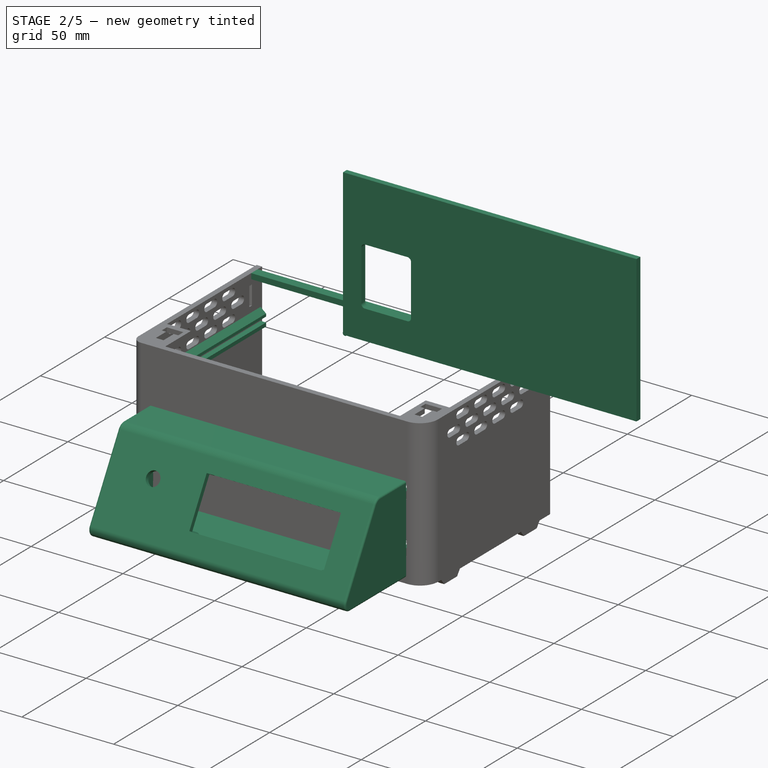
[diagram: stage 2 of 5 — iso view after this stage's code; geometry added in this stage tinted green]
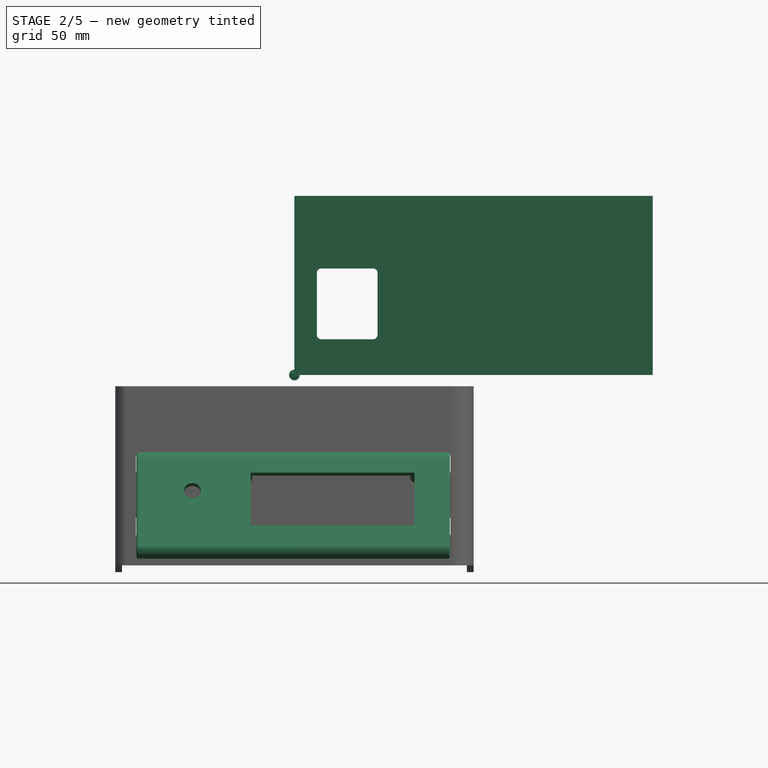
[diagram: stage 2 of 5 — front view after this stage's code; geometry added in this stage tinted green]
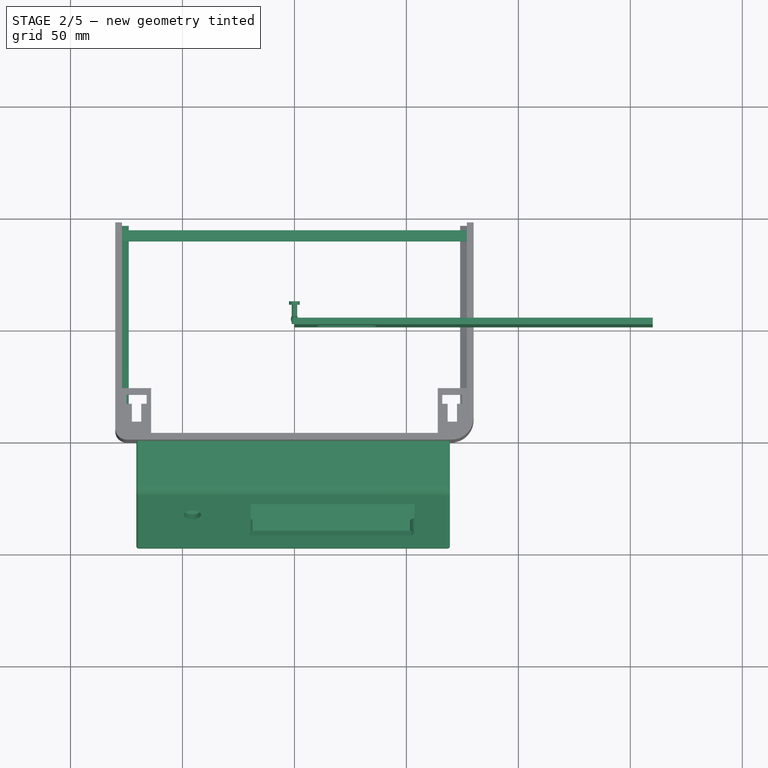
[diagram: stage 2 of 5 — top view after this stage's code; geometry added in this stage tinted green]
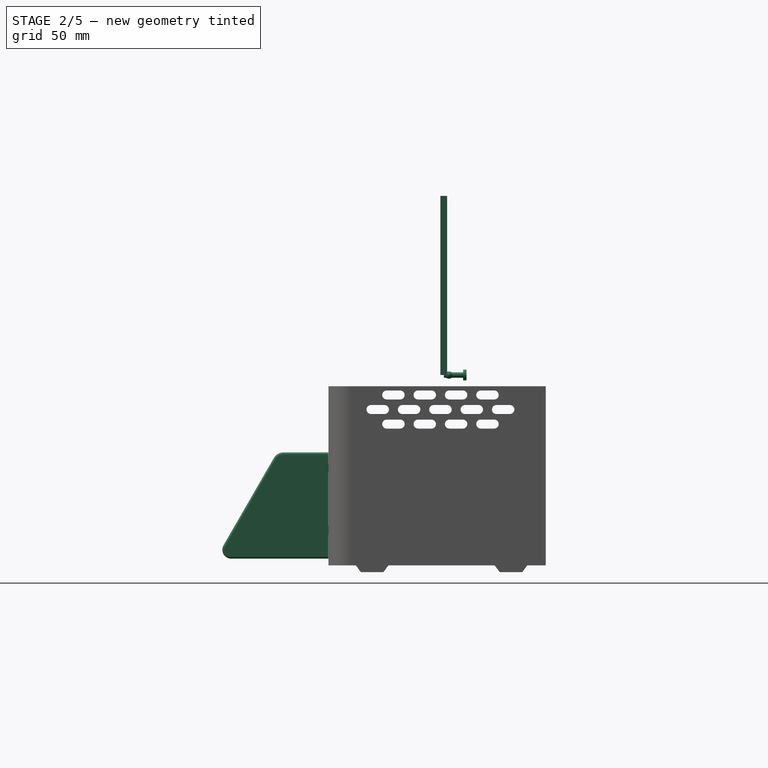
[diagram: stage 2 of 5 — right view after this stage's code; geometry added in this stage tinted green]
FEATURE [PartDesign::AdditiveBox] Box008  label="Back"
  AddSubType = 0
  AttacherType = Attacher::AttachEngine3D
  AttachmentSupport = -> [XY_Plane011]
  BaseAttacherType = Attacher::AttachEngine3D
  BaseMapMode = 45
  BaseMapPathParameter = 0
  BaseMapReversed = false
  Height = 80
  InvalidShape = false
  Length = 160
  MapMode = 5
  NewSolid = false
  Support = -> [XY_Plane011]
  Suppress = false
  TreeRank = 250
  ValidateShape = true
  Width = 3
  expr: Length = <<Top>>.Length
FEATURE [PartDesign::SubtractiveBox] Box009  label="PowerInlet"
  AddSubType = 1
  AttacherType = Attacher::AttachEngine3D
  AttachmentOffset = pos=(-37.1,16,-3) rot=(0,0,1;0rad)
  AttachmentSupport = -> [Box008]
  BaseFeature = -> Box008
  Height = 3
  InvalidShape = false
  Length = 27.1
  MapMode = 5
  NewSolid = false
  Placement = pos=(37.1,3.6e-15,16) rot=(0,0.707107,0.707107;3.14159rad)
  Support = -> [Box008]
  Suppress = false
  TreeRank = 251
  ValidateShape = true
  Width = 31.6
  expr: AttachmentOffset.Base.x = -Length - 10
FEATURE [App::Part] Part001  label="LCD"
  ClaimAllChildren = false
  ExportMode = 1
  Group = -> [Fillet012,Cut002,Box017,Box018,Box016,Cut001,Array003,Cylinder009,Box015,Array004,Cylinder010]
  Origin = -> Origin015
  Placement = pos=(-23.509,-86.3621,-75.0009) rot=(1,0,0;-0.523599rad)
  TreeRank = 367
  _ExportChildren = -> [Fillet012,Cut002,Box017,Box018]
  _GroupVersion = 1
FEATURE [Sketcher::SketchObject] Sketch031
  ArcFitTolerance = 1e-06
  ExternalBSplineMaxDegree = 5
  ExternalBSplineTolerance = 0.0001
  FullyConstrained = true
  InternalTolerance = 1e-06
  InvalidShape = false
  MakeInternals = false
  Placement = pos=(0,0,0) rot=(0.57735,0.57735,0.57735;2.0944rad)
  TreeRank = 376
  ValidateShape = true
  sketch-geometry (12):
    g0: LineSegment StartX=20 StartY=47.4711 StartZ=0 EndX=0 EndY=47.4711 EndZ=0
    g1: LineSegment StartX=-4.33013 StartY=44.9711 StartZ=0 EndX=-26.8301 EndY=6 EndZ=0
    g2: LineSegment StartX=-23.366 StartY=0 StartZ=0 EndX=20 EndY=0 EndZ=0
    g3: LineSegment StartX=20 StartY=0 StartZ=0 EndX=20 EndY=2.5 EndZ=0
    g4: LineSegment StartX=20 StartY=2.5 StartZ=0 EndX=-23.366 EndY=2.5 EndZ=0
    g5: LineSegment StartX=-24.6651 StartY=4.75 StartZ=0 EndX=-2.16506 EndY=43.7211 EndZ=0
    g6: LineSegment StartX=3e-16 StartY=44.9711 StartZ=0 EndX=20 EndY=44.9711 EndZ=0
    g7: LineSegment StartX=20 StartY=44.9711 StartZ=0 EndX=20 EndY=47.4711 EndZ=0
    g8: ArcOfCircle CenterX=0 CenterY=42.4711 CenterZ=0 NormalX=0 NormalY=0 NormalZ=1 AngleXU=0 Radius=5 StartAngle=1.5708 EndAngle=2.61799
    g9: ArcOfCircle CenterX=0 CenterY=42.4711 CenterZ=0 NormalX=0 NormalY=0 NormalZ=1 AngleXU=0 Radius=2.5 StartAngle=1.5708 EndAngle=2.61799
    g10: ArcOfCircle CenterX=-23.366 CenterY=4 CenterZ=0 NormalX=0 NormalY=0 NormalZ=1 AngleXU=0 Radius=1.5 StartAngle=2.61799 EndAngle=4.71239
    g11: ArcOfCircle CenterX=-23.366 CenterY=4 CenterZ=0 NormalX=0 NormalY=0 NormalZ=1 AngleXU=0 Radius=4 StartAngle=2.61799 EndAngle=4.71239
  constraints (30):
    c: PointOnObject(g2,g-1)
    c: Coincident(g2,g3)
    c: Vertical(g3)
    c: Coincident(g3,g4)
    c: Horizontal(g4)
    c: Horizontal(g6)
    c: Coincident(g6,g7)
    c: Coincident(g7,g0)
    c: Vertical(g7)
    c: Tangent(g0,g8) = -1.5708
    c: Tangent(g1,g8) = -1.5708
    c: Tangent(g5,g9) = 1.5708
    c: Tangent(g6,g9) = 1.5708
    c: Tangent(g4,g10) = 1.5708
    c: Tangent(g5,g10) = 1.5708
    c: Tangent(g1,g11) = -1.5708
    c: Tangent(g2,g11) = -1.5708
    c: Angle(g2,g1) = 1.0472
    c: PointOnObject(g2,g-1)
    c: Angle(g4,g5) = 1.0472
    c: Vertical(g6,g3)
    c: Distance(g1) = 45
    c: DistanceY(g7,g7) = 2.5
    c: DistanceY(g3,g3) = 2.5
    c: Coincident(g9,g8)
    c: PointOnObject(g8,g-2)
    c: Coincident(g11,g10)
    c: Radius(g8) = 5
    c: Radius(g11) = 4
    c: DistanceX(g0,g0) = 20
FEATURE [Part::Extrusion] Extrude006
  AutoTaperInnerAngle = true
  Base = -> Sketch031
  Dir = (1,0,0)
  DirMode = 2
  FaceMakerClass = Part::FaceMakerBullseye
  InvalidShape = false
  LengthFwd = 140
  LengthRev = 0
  Linearize = true
  Solid = true
  Symmetric = false
  TaperInnerAngle = 0
  TaperInnerAngleRev = 0
  TreeRank = 377
  ValidateShape = true
FEATURE [Part::Box] Box020  label="Cube004"
  AttacherType = Attacher::AttachEngine3D
  AttachmentOffset = pos=(51,2,-2.8) rot=(0,0,1;0rad)
  AttachmentSupport = -> [Extrude006]
  Height = 3
  InvalidShape = false
  Length = 73.2
  MapMode = 5
  Placement = pos=(51,-19.2958,13.4498) rot=(1,0,0;1.0472rad)
  Support = -> [Extrude006]
  TreeRank = 381
  ValidateShape = true
  Width = 27.2
FEATURE [Part::Cylinder] Cylinder011
  Angle = 360
  AttacherType = Attacher::AttachEngine3D
  AttachmentOffset = pos=(25,20,-2.8) rot=(0,0,1;0rad)
  AttachmentSupport = -> [Extrude006]
  FirstAngle = 0
  Height = 3
  InvalidShape = false
  MapMode = 5
  Placement = pos=(25,-10.2958,29.0383) rot=(1,0,0;1.0472rad)
  Radius = 3.8
  SecondAngle = 0
  Support = -> [Extrude006]
  TreeRank = 382
  ValidateShape = true
FEATURE [Part::Cut] Cut003
  Base = -> Extrude006
  InvalidShape = false
  Tool = -> Box020
  TreeRank = 383
  ValidateShape = true
FEATURE [Part::Cut] Cut004
  Base = -> Cut003
  InvalidShape = false
  Placement = pos=(-70.5589,-70.0392,-82) rot=(0,0,1;0rad)
  Tool = -> Cylinder011
  TreeRank = 384
  ValidateShape = true
FEATURE [Part::Fillet] Fillet013
  Base = -> Cut004
  EdgeLinks = -> Cut004 [Edge20,Edge21,Edge22,Edge23,Edge24]
  Edges = 5 edges r=1: [Edge20,Edge21,Edge22,Edge23,Edge24]
  FixShape = 1
  InvalidShape = false
  TreeRank = 397
  ValidateShape = false
FEATURE [Part::Fillet] Fillet014
  Base = -> Fillet013
  EdgeLinks = -> Fillet013 [Edge7,Edge12,Edge13,Edge14,Edge15]
  Edges = 5 edges r=1: [Edge7,Edge12,Edge13,Edge14,Edge15]
  FixShape = 1
  InvalidShape = false
  TreeRank = 398
  ValidateShape = false
FEATURE [Sketcher::SketchObject] Sketch032
  ArcFitTolerance = 1e-06
  ExternalBSplineMaxDegree = 5
  ExternalBSplineTolerance = 0.0001
  FullyConstrained = true
  InternalTolerance = 1e-06
  InvalidShape = false
  MakeInternals = false
  Placement = pos=(0,0,0) rot=(0.57735,0.57735,0.57735;2.0944rad)
  TreeRank = 402
  ValidateShape = true
  sketch-geometry (18):
    g0: LineSegment StartX=0 StartY=0 StartZ=0 EndX=-43.366 EndY=0 EndZ=0
    g1: LineSegment StartX=-44.6651 StartY=2.25 StartZ=0 EndX=-22.1651 EndY=41.2211 EndZ=0
    g2: LineSegment StartX=-20 StartY=42.4711 StartZ=0 EndX=0 EndY=42.4711 EndZ=0
    g3: ArcOfCircle CenterX=-20 CenterY=39.9711 CenterZ=0 NormalX=0 NormalY=0 NormalZ=1 AngleXU=0 Radius=2.5 StartAngle=1.5708 EndAngle=2.61799
    g4: ArcOfCircle CenterX=-43.366 CenterY=1.5 CenterZ=0 NormalX=0 NormalY=0 NormalZ=1 AngleXU=0 Radius=1.5 StartAngle=2.61799 EndAngle=4.71239
    g5: LineSegment StartX=0 StartY=8 StartZ=0 EndX=3.4 EndY=8 EndZ=0
    g6: LineSegment StartX=3.4 StartY=8 StartZ=0 EndX=3.4 EndY=6 EndZ=0
    g7: LineSegment StartX=6.4 StartY=6 StartZ=0 EndX=6.4 EndY=12 EndZ=0
    g8: LineSegment StartX=6.4 StartY=12 StartZ=0 EndX=0 EndY=12 EndZ=0
    g9: ArcOfCircle CenterX=4.9 CenterY=6 CenterZ=0 NormalX=0 NormalY=0 NormalZ=1 AngleXU=0 Radius=1.5 StartAngle=3.14159 EndAngle=6.28319
    g10: LineSegment StartX=0 StartY=0 StartZ=0 EndX=0 EndY=8 EndZ=0
    g11: LineSegment StartX=0 StartY=40 StartZ=0 EndX=6.4 EndY=40 EndZ=0
    g12: LineSegment StartX=6.4 StartY=40 StartZ=0 EndX=6.4 EndY=34 EndZ=0
    g13: LineSegment StartX=0 StartY=36 StartZ=0 EndX=3.4 EndY=36 EndZ=0
    g14: LineSegment StartX=3.4 StartY=36 StartZ=0 EndX=3.4 EndY=34 EndZ=0
    g15: ArcOfCircle CenterX=4.9 CenterY=34 CenterZ=0 NormalX=0 NormalY=0 NormalZ=1 AngleXU=0 Radius=1.5 StartAngle=3.14159 EndAngle=6.28319
    g16: LineSegment StartX=0 StartY=42.4711 StartZ=0 EndX=0 EndY=40 EndZ=0
    g17: LineSegment StartX=0 StartY=36 StartZ=0 EndX=0 EndY=12 EndZ=0
  constraints (53):
    c: Horizontal(g0)
    c: Horizontal(g2)
    c: Tangent(g1,g3) = 1.5708
    c: Tangent(g2,g3) = 1.5708
    c: Tangent(g0,g4) = 1.5708
    c: Tangent(g1,g4) = 1.5708
    c: Angle(g0,g1) = 1.0472
    c: Vertical(g2,g0)
    c: DistanceX(g2,g2) = 20
    c: Distance(g1) = 45
    c: Radius(g3) = 2.5
    c: Radius(g4) = 1.5
    c: Coincident(g0,g-1)
    c: Horizontal(g5)
    c: Coincident(g5,g6)
    c: Vertical(g6)
    c: Vertical(g7)
    c: Coincident(g7,g8)
    c: Horizontal(g8)
    c: Horizontal(g7,g6)
    c: Coincident(g9,g6)
    c: Coincident(g9,g7)
    c: Vertical(g8,g5)
    c: DistanceX(g5,g5) = 3.4
    c: DistanceX(g5,g7) = 3
    c: Horizontal(g9,g7)
    c: DistanceY(g6,g6) = 2
    c: Coincident(g0,g10)
    c: Coincident(g10,g5)
    c: Vertical(g10)
    c: DistanceY(g5,g8) = 4
    c: DistanceY(g0,g5) = 8
    c: PointOnObject(g11,g-2)
    c: Horizontal(g11)
    c: Coincident(g11,g12)
    c: Vertical(g12)
    c: PointOnObject(g13,g-2)
    c: Horizontal(g13)
    c: Coincident(g13,g14)
    c: Vertical(g14)
    c: Coincident(g15,g12)
    c: Coincident(g15,g14)
    c: Horizontal(g12,g14)
    c: Horizontal(g14,g15)
    c: Coincident(g16,g2)
    c: Coincident(g16,g11)
    c: Coincident(g17,g13)
    c: Coincident(g17,g8)
    c: DistanceY(g13,g11) = 4
    c: Equal(g5,g13)
    c: Equal(g9,g15)
    c: Equal(g6,g14)
    c: DistanceY(g17,g17) = 24
FEATURE [Part::Extrusion] Extrude007
  AutoTaperInnerAngle = true
  Base = -> Sketch032
  Dir = (1,1e-16,-1e-16)
  DirMode = 2
  FaceMakerClass = Part::FaceMakerBullseye
  FixShape = 1
  InvalidShape = false
  LengthFwd = 2
  LengthRev = 0
  Linearize = true
  Placement = pos=(67.4411,-50.0392,-79.5) rot=(0,0,1;0rad)
  Solid = true
  Symmetric = false
  TaperInnerAngle = 0
  TaperInnerAngleRev = 0
  TreeRank = 403
  ValidateShape = false
FEATURE [Part::Extrusion] Extrude008
  AutoTaperInnerAngle = true
  Base = -> Sketch032
  Dir = (1,1e-16,-1e-16)
  DirMode = 2
  FaceMakerClass = Part::FaceMakerBullseye
  FixShape = 1
  InvalidShape = false
  LengthFwd = 2
  LengthRev = 0
  Linearize = true
  Placement = pos=(-70.5589,-50.0392,-79.5) rot=(0,0,1;0rad)
  Solid = true
  Symmetric = false
  TaperInnerAngle = 0
  TaperInnerAngleRev = 0
  TreeRank = 403
  ValidateShape = false
FEATURE [Part::MultiFuse] Fusion005
  FixShape = 1
  InvalidShape = false
  Shapes = -> [Fillet014,Extrude007]
  TreeRank = 404
  ValidateShape = false
FEATURE [Part::MultiFuse] Fusion006
  FixShape = 1
  InvalidShape = false
  Shapes = -> [Fusion005,Extrude008]
  TreeRank = 405
  ValidateShape = false
FEATURE [PartDesign::Body] Body006  label="Work_top"
  AutoGroupSolids = false
  ClaimAllChildren = false
  ExportMode = 0
  Group = -> [Box,Box001,DatumPlane008,Box023,Box024,Cylinder012,Mirrored006,Fillet,Fillet015,Sketch038,Pad021]
  InvalidShape = false
  Origin = -> Origin006
  Tip = -> Pad021
  TreeRank = 102
  ValidateShape = true
  _ExportChildren = -> [Box,Box001,DatumPlane008,Box023,Box024,Cylinder012,Mirrored006,Fillet,Fillet015,Pad021]
  _GroupVersion = 1
FEATURE [Sketcher::SketchObject] Sketch040
  ArcFitTolerance = 1e-06
  ExternalBSplineMaxDegree = 5
  ExternalBSplineTolerance = 0.0001
  FullyConstrained = true
  InternalTolerance = 1e-06
  InvalidShape = false
  MakeInternals = false
  Placement = pos=(0,0,0) rot=(0.57735,0.57735,0.57735;2.0944rad)
  TreeRank = 455
  ValidateShape = true
  sketch-geometry (11):
    g0: LineSegment StartX=0 StartY=0 StartZ=0 EndX=0 EndY=2.3 EndZ=0
    g1: LineSegment StartX=0 StartY=2.3 StartZ=0 EndX=8.5 EndY=2.3 EndZ=0
    g2: LineSegment StartX=8.5 StartY=2.3 StartZ=0 EndX=8.5 EndY=1.35 EndZ=0
    g3: LineSegment StartX=8.5 StartY=1.35 StartZ=0 EndX=5.1 EndY=1.35 EndZ=0
    g4: LineSegment StartX=0 StartY=0 StartZ=0 EndX=1.4 EndY=0 EndZ=0
    g5: LineSegment StartX=1.4 StartY=0 StartZ=0 EndX=1.4 EndY=1.35 EndZ=0
    g6: LineSegment StartX=1.4 StartY=1.35 StartZ=0 EndX=2.4 EndY=1.35 EndZ=0
    g7: ArcOfCircle CenterX=3.75 CenterY=-0.728125 CenterZ=0 NormalX=0 NormalY=0 NormalZ=1 AngleXU=0 Radius=2.47812 StartAngle=0.994685 EndAngle=2.14691
    g8: LineSegment [constr] StartX=2.4 StartY=1.75 StartZ=0 EndX=5.1 EndY=1.75 EndZ=0
    g9: LineSegment [constr] StartX=5.1 StartY=1.75 StartZ=0 EndX=5.1 EndY=1.35 EndZ=0
    g10: LineSegment [constr] StartX=2.4 StartY=1.75 StartZ=0 EndX=2.4 EndY=1.35 EndZ=0
  constraints (32):
    c: Coincident(g-1,g0)
    c: PointOnObject(g0,g-2)
    c: Coincident(g0,g1)
    c: Horizontal(g1)
    c: Coincident(g1,g2)
    c: Vertical(g2)
    c: Coincident(g2,g3)
    c: Horizontal(g3)
    c: Coincident(g0,g4)
    c: PointOnObject(g4,g-1)
    c: Coincident(g4,g5)
    c: Vertical(g5)
    c: Coincident(g5,g6)
    c: Horizontal(g6)
    c: Horizontal(g3,g6)
    c: DistanceY(g4,g2) = 1.35
    c: DistanceY(g0,g0) = 2.3
    c: DistanceX(g1,g1) = 8.5
    c: Coincident(g7,g6)
    c: Coincident(g7,g3)
    c: DistanceX(g4,g4) = 1.4
    c: DistanceX(g6,g3) = 2.7
    c: DistanceX(g6,g6) = 1
    c: Horizontal(g8)
    c: Tangent(g8,g7)
    c: Coincident(g8,g9)
    c: Coincident(g9,g3)
    c: Coincident(g8,g10)
    c: Coincident(g10,g6)
    c: Vertical(g10)
    c: Vertical(g9)
    c: DistanceY(g9,g9) = 0.4
FEATURE [Part::Revolution] Revolve
  Angle = 360
  Axis = (0,1,0)
  Base = (0,0,0)
  FaceMakerClass = Part::FaceMakerBullseye
  InvalidShape = false
  Placement = pos=(53.991,-76.9733,-41.739) rot=(1,0,0;-0.523599rad)
  Solid = true
  Source = -> Sketch040
  Symmetric = false
  TreeRank = 456
  ValidateShape = true
FEATURE [Part::Revolution] Revolve001
  Angle = 360
  Axis = (0,1,0)
  Base = (0,0,0)
  FaceMakerClass = Part::FaceMakerBullseye
  InvalidShape = false
  Placement = pos=(-21.009,-76.9733,-41.739) rot=(1,0,0;-0.523599rad)
  Solid = true
  Source = -> Sketch040
  Symmetric = false
  TreeRank = 456
  ValidateShape = true
FEATURE [Part::Revolution] Revolve002
  Angle = 360
  Axis = (0,1,0)
  Base = (0,0,0)
  FaceMakerClass = Part::FaceMakerBullseye
  InvalidShape = false
  Placement = pos=(-21.009,-92.4733,-68.5858) rot=(1,0,0;-0.523599rad)
  Solid = true
  Source = -> Sketch040
  Symmetric = false
  TreeRank = 456
  ValidateShape = true
FEATURE [Part::Revolution] Revolve003
  Angle = 360
  Axis = (0,1,0)
  Base = (0,0,0)
  FaceMakerClass = Part::FaceMakerBullseye
  InvalidShape = false
  Placement = pos=(53.991,-92.4733,-68.5858) rot=(1,0,0;-0.523599rad)
  Solid = true
  Source = -> Sketch040
  Symmetric = false
  TreeRank = 456
  ValidateShape = true
FEATURE [Part::MultiFuse] Fusion007
  InvalidShape = false
  Shapes = -> [Fusion006,Revolve]
  TreeRank = 457
  ValidateShape = true
FEATURE [Part::MultiFuse] Fusion008
  InvalidShape = false
  Shapes = -> [Fusion007,Revolve003]
  TreeRank = 458
  ValidateShape = true
FEATURE [Part::MultiFuse] Fusion009
  InvalidShape = false
  Shapes = -> [Fusion008,Revolve002]
  TreeRank = 459
  ValidateShape = true
FEATURE [App::Part] Part002  label="Part"
  ClaimAllChildren = false
  ExportMode = 1
  Group = -> [Fillet014,Fillet013,Cut004,Cut003,Extrude006,Sketch031,Box020,Cylinder011,Sketch032,Extrude007,Extrude008,Fusion005,Fusion006,Revolve,Sketch040,Revolve001,Revolve002,Revolve003,Fusion007,Fusion008,Fusion009,Fusion010]
  Origin = -> Origin016
  TreeRank = 486
  _ExportChildren = -> [Fusion010]
  _GroupVersion = 1
FEATURE [Part::SubShapeBinder] Import003  label="Import003(Sketch040)"
  BindCopyOnChange = 0
  BindMode = 0
  ClaimChildren = false
  EdgeTolerance = 1e-06
  FillStyle = 0
  Fuse = false
  InvalidShape = false
  MakeFace = false
  MergeEdges = true
  OffsetFill = false
  OffsetIntersection = false
  OffsetJoinType = 0
  OffsetOpenResult = false
  Outline = false
  PartialLoad = false
  Relative = true
  SplitEdges = false
  Support = -> [Part002[Sketch040.]]
  TightBound = false
  TreeRank = 462
  ValidateShape = true
  _Version = 8
FEATURE [Sketcher::SketchObject] Sketch041
  ArcFitTolerance = 1e-06
  ExternalBSplineMaxDegree = 5
  ExternalBSplineTolerance = 0.0001
  ExternalGeometry = -> [Import003]
  FullyConstrained = true
  InternalTolerance = 1e-06
  InvalidShape = false
  MakeInternals = false
  Placement = pos=(0,0,0) rot=(0.57735,0.57735,0.57735;2.0944rad)
  TreeRank = 461
  ValidateShape = true
  sketch-geometry (11):
    g0: LineSegment StartX=1.55 StartY=0 StartZ=0 EndX=1.55 EndY=1.2 EndZ=0
    g1: LineSegment StartX=1.55 StartY=1.2 StartZ=0 EndX=2.4 EndY=1.2 EndZ=0
    g2: LineSegment StartX=5.1 StartY=1.2 StartZ=0 EndX=10.15 EndY=1.2 EndZ=0
    g3: LineSegment StartX=10.15 StartY=1.2 StartZ=0 EndX=10.15 EndY=2.4 EndZ=0
    g4: LineSegment StartX=10.15 StartY=2.4 StartZ=0 EndX=11.65 EndY=2.4 EndZ=0
    g5: LineSegment StartX=11.65 StartY=2.4 StartZ=0 EndX=11.65 EndY=0 EndZ=0
    g6: LineSegment StartX=11.65 StartY=0 StartZ=0 EndX=1.55 EndY=0 EndZ=0
    g7: ArcOfCircle CenterX=3.75 CenterY=-0.878125 CenterZ=0 NormalX=0 NormalY=0 NormalZ=1 AngleXU=0 Radius=2.47813 StartAngle=0.994685 EndAngle=2.14691
    g8: LineSegment [constr] StartX=5.1 StartY=1.2 StartZ=0 EndX=5.1 EndY=1.6 EndZ=0
    g9: LineSegment [constr] StartX=5.1 StartY=1.6 StartZ=0 EndX=2.4 EndY=1.6 EndZ=0
    g10: LineSegment [constr] StartX=2.4 StartY=1.6 StartZ=0 EndX=2.4 EndY=1.2 EndZ=0
  constraints (33):
    c: PointOnObject(g0,g-1)
    c: Vertical(g0)
    c: Coincident(g0,g1)
    c: Horizontal(g1)
    c: Horizontal(g2)
    c: Coincident(g2,g3)
    c: Vertical(g3)
    c: Coincident(g3,g4)
    c: Horizontal(g4)
    c: Coincident(g4,g5)
    c: PointOnObject(g5,g-1)
    c: Vertical(g5)
    c: Coincident(g5,g6)
    c: Coincident(g6,g0)
    c: DistanceX(g-3,g0) = 0.15
    c: Coincident(g7,g1)
    c: Coincident(g7,g2)
    c: Coincident(g2,g8)
    c: Coincident(g8,g9)
    c: Tangent(g9,g7)
    c: Coincident(g9,g10)
    c: Coincident(g10,g1)
    c: Horizontal(g9)
    c: Vertical(g8)
    c: Vertical(g10)
    c: Vertical(g1,g-5)
    c: Vertical(g-6,g2)
    c: DistanceY(g2,g-4) = 0.15
    c: Horizontal(g2,g1)
    c: DistanceX(g-4,g3) = 1.65
    c: DistanceX(g4,g4) = 1.5
    c: DistanceY(g5,g5) = 2.4
    c: DistanceY(g8,g8) = 0.4
FEATURE [Part::Revolution] Revolve004
  Angle = 360
  Axis = (0,1,0)
  Base = (0,0,0)
  FaceMakerClass = Part::FaceMakerBullseye
  InvalidShape = false
  Solid = true
  Source = -> Sketch041
  Symmetric = false
  TreeRank = 463
  ValidateShape = true
FEATURE [App::SavedView] SavedView
  BackLight = false
  BackLightIntensity = 1
  CameraSettings = SetCamera OrthographicCamera {\n  viewportMapping ADJUST_CAMERA\n  position 118.73625 -133.16229 5.3748798\n  orientation -0.88478613 -0.26828 -0.38102373  4.9388452\n  nearDistance -549.48248\n  farDistance 916.91571\n  aspectRatio 1\n  focalDistance 90.728485\n  height 181.45738\n\n}\n## overrideMode: As Is
  ClipConcave = false
  ClipEnable = false
  ClipEnableX = false
  ClipEnableY = false
  ClipEnableZ = false
  ClipFill = true
  ClipGroup = false
  ClipHatch = true
  ClipHatchScale = 1
  ClipHatchTexture = :icons/section-hatch.png
  ClipPlaneSize = 40
  ClipPosition = (0,0,0)
  ClipPositionX = (0,0,0)
  ClipPositionY = (0,0,0)
  ClipPositionZ = (0,0,0)
  ClipShowPlane = false
  DrawStyle = -1
  HiddenLine_BackgroundOverride = true
  HiddenLine_FaceColorOverride = true
  HiddenLine_HideFace = false
  HiddenLine_HideSeam = true
  HiddenLine_HideVertex = true
  HiddenLine_LineColorOverride = true
  HiddenLine_LineWidth = 1.5
  HiddenLine_OutlineWidth = 0
  HiddenLine_PerFaceOutline = false
  HiddenLine_PointSize = 2
  HiddenLine_SceneOutline = false
  HiddenLine_Shaded = false
  HiddenLine_ShowOutline = true
  HiddenLine_Transparency = 0.4
  HiddenLine_TransparencyOverride = true
  SaveCamera = true
  SaveClippings = true
  SaveDrawStyleSettings = true
  SaveShowOnTop = true
  SaveVisibilities = true
  TreeRank = 464
  Visibilities = <blob: 3716 chars omitted>
FEATURE [App::VRMLObject] SolderPlate_Power
  Placement = pos=(-19.7618,26,-76) rot=(0,0,1;3.14159rad)
  TreeRank = 465
FEATURE [App::DocumentObjectGroup] Group  label="ExternalModels"
  ClaimAllChildren = true
  ExportMode = 1
  Group = -> [Body,Body007,Array,Body010,Part,Part001,SolderPlate_Power]
  TreeRank = 105
  _GroupVersion = 1
FEATURE [PartDesign::Fillet] Fillet006
  AddSubType = 0
  Base = -> Box009 [Edge23]
  BaseFeature = -> Box009
  InvalidShape = false
  NewSolid = false
  Placement = pos=(37.1,3.6e-15,16) rot=(0,0.707107,0.707107;3.14159rad)
  Radius = 2
  SupportTransform = false
  Suppress = false
  TreeRank = 467
  ValidateShape = true
FEATURE [PartDesign::Fillet] Fillet007
  AddSubType = 0
  Base = -> Fillet006 [Edge17]
  BaseFeature = -> Fillet006
  InvalidShape = false
  NewSolid = false
  Placement = pos=(37.1,3.6e-15,16) rot=(0,0.707107,0.707107;3.14159rad)
  Radius = 2
  SupportTransform = false
  Suppress = false
  TreeRank = 468
  ValidateShape = true
FEATURE [PartDesign::Fillet] Fillet008
  AddSubType = 0
  Base = -> Fillet007 [Edge21]
  BaseFeature = -> Fillet007
  InvalidShape = false
  NewSolid = false
  Placement = pos=(37.1,3.6e-15,16) rot=(0,0.707107,0.707107;3.14159rad)
  Radius = 2
  SupportTransform = false
  Suppress = false
  TreeRank = 469
  ValidateShape = true
FEATURE [PartDesign::Fillet] Fillet009
  AddSubType = 0
  Base = -> Fillet008 [Edge19]
  BaseFeature = -> Fillet008
  InvalidShape = false
  NewSolid = false
  Placement = pos=(37.1,3.6e-15,16) rot=(0,0.707107,0.707107;3.14159rad)
  Radius = 2
  SupportTransform = false
  Suppress = false
  TreeRank = 470
  ValidateShape = true
FEATURE [PartDesign::Mirrored] Mirrored011
  AddSubType = 0
  BaseFeature = -> Box026
  CopyShape = false
  InvalidShape = false
  MirrorPlane = -> YZ_Plane008
  NewSolid = false
  OriginalSubs = -> [Box026,Draft001,Box004]
  Originals = -> [Box026,Draft001,Box004]
  ParallelTransform = true
  Placement = pos=(74,-39.2,-33.3) rot=(0,0,1;0rad)
  SubTransform = true
  Suppress = false
  TreeRank = 477
  ValidateShape = true
  _Version = 3
FEATURE [PartDesign::AdditiveBox] Box027
  AddSubType = 0
  AttacherType = Attacher::AttachEngine3D
  AttachmentOffset = pos=(-77,38.5,-3) rot=(0,0,1;0rad)
  AttachmentSupport = -> [Origin008]
  BaseFeature = -> Mirrored011
  Height = 3
  InvalidShape = false
  Length = 154
  NewSolid = false
  Placement = pos=(-77,38.5,-8) rot=(0,0,1;0rad)
  Support = -> [Origin008]
  Suppress = false
  TreeRank = 478
  ValidateShape = true
  Width = 5
  expr: AttachmentOffset.Base.x = -Length / 2
  expr: AttachmentOffset.Base.z = -Height
  expr: Length = <<FrontCover>>.Shape.BoundBox.XLength - 6mm
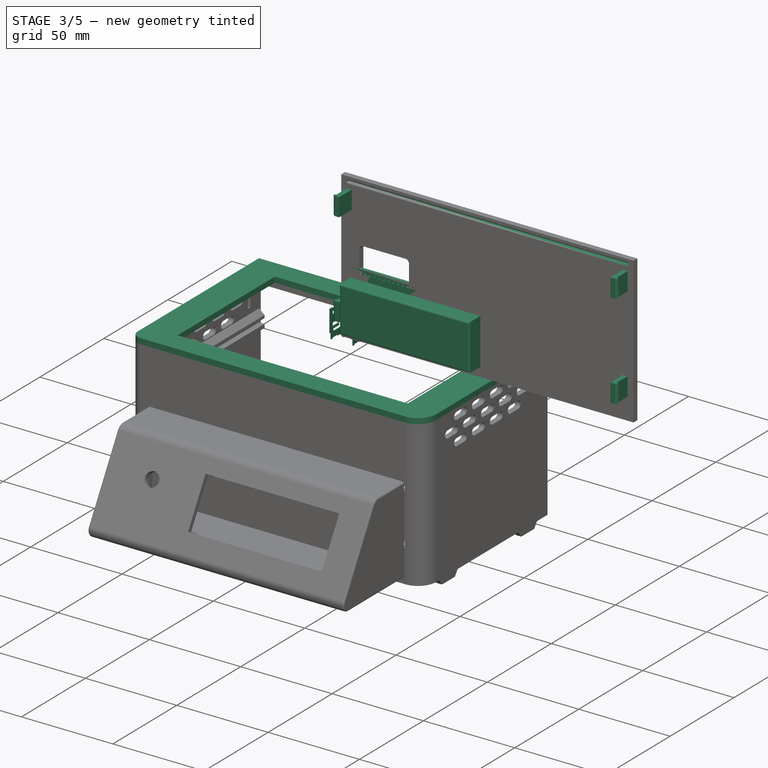
[diagram: stage 3 of 5 — iso view after this stage's code; geometry added in this stage tinted green]
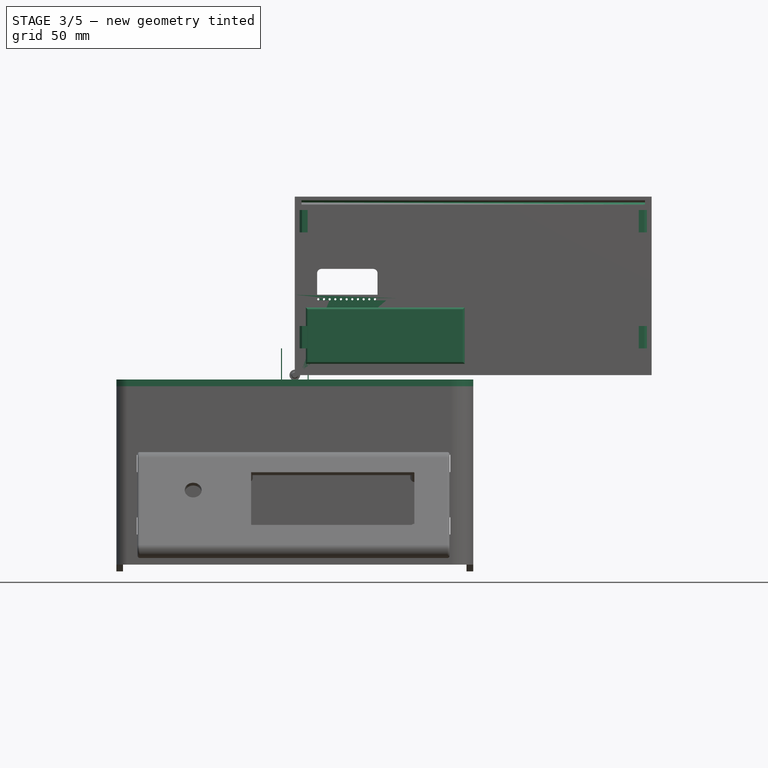
[diagram: stage 3 of 5 — front view after this stage's code; geometry added in this stage tinted green]
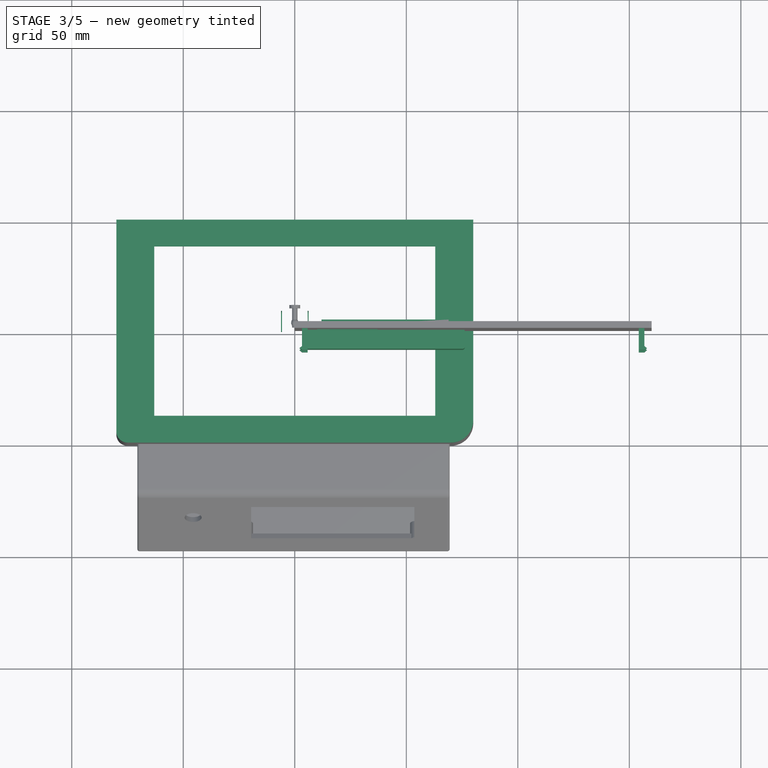
[diagram: stage 3 of 5 — top view after this stage's code; geometry added in this stage tinted green]
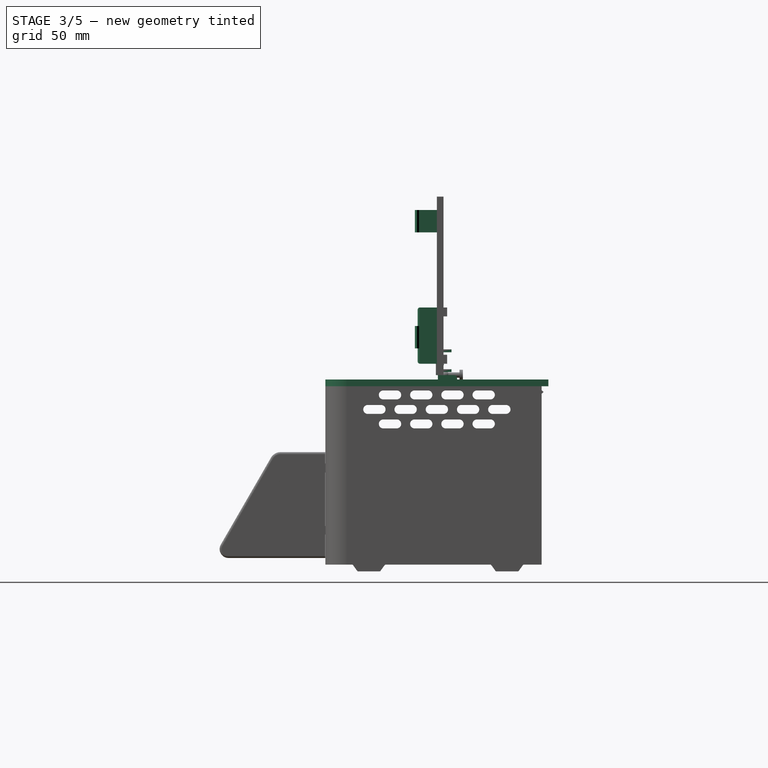
[diagram: stage 3 of 5 — right view after this stage's code; geometry added in this stage tinted green]
FEATURE [PartDesign::SubtractiveBox] Box001
  AddSubType = 1
  AttacherType = Attacher::AttachEngine3D
  AttachmentOffset = pos=(-63,-38,-6) rot=(0,0,1;0rad)
  AttachmentSupport = -> [XY_Plane006]
  BaseFeature = -> Box
  Height = 5
  InvalidShape = false
  Length = 126
  MapMode = 5
  NewSolid = false
  Placement = pos=(-63,-38,-6) rot=(0,0,1;0rad)
  Support = -> [XY_Plane006]
  Suppress = false
  TreeRank = 104
  ValidateShape = true
  Width = 76
  expr: AttachmentOffset.Base.x = -Length / 2
  expr: AttachmentOffset.Base.y = -Width / 2
  expr: AttachmentOffset.Base.z = <<Top>>.Placement.Base.z - 1
FEATURE [Part::Box] Box013  label="Body"
  AttacherType = Attacher::AttachEngine3D
  Height = 13.2
  InvalidShape = false
  Length = 11.52
  Placement = pos=(-5.76,0,0) rot=(0,0,1;0rad)
  TreeRank = 322
  ValidateShape = true
  Width = 6.56
  expr: Placement.Base.x = -Length / 2
FEATURE [Sketcher::SketchObject] Sketch026
  ArcFitTolerance = 1e-06
  ExternalBSplineMaxDegree = 5
  ExternalBSplineTolerance = 0.0001
  FullyConstrained = true
  InternalTolerance = 1e-06
  InvalidShape = false
  MakeInternals = false
  MapMode = 5
  Placement = pos=(0,0,0) rot=(0.57735,0.57735,0.57735;2.0944rad)
  TreeRank = 324
  ValidateShape = true
  sketch-geometry (25):
    g0: LineSegment StartX=0 StartY=12 StartZ=0 EndX=2.03 EndY=12 EndZ=0
    g1: LineSegment StartX=2.03 StartY=12 StartZ=0 EndX=2.03 EndY=11.5 EndZ=0
    g2: LineSegment StartX=2.03 StartY=11.5 StartZ=0 EndX=7 EndY=11.5 EndZ=0
    g3: LineSegment StartX=7 StartY=11.5 StartZ=0 EndX=7 EndY=10.24 EndZ=0
    g4: LineSegment StartX=7 StartY=10.24 StartZ=0 EndX=2.03 EndY=10.24 EndZ=0
    g5: LineSegment StartX=2.03 StartY=10.24 StartZ=0 EndX=2.03 EndY=8.44 EndZ=0
    g6: LineSegment StartX=2.03 StartY=8.44 StartZ=0 EndX=3.57 EndY=8.44 EndZ=0
    g7: LineSegment StartX=3.57 StartY=8.44 StartZ=0 EndX=3.57 EndY=4.44 EndZ=0
    g8: LineSegment StartX=3.57 StartY=4.44 StartZ=0 EndX=2.03 EndY=4.44 EndZ=0
    g9: LineSegment StartX=2.03 StartY=4.44 StartZ=0 EndX=2.03 EndY=2.64 EndZ=0
    g10: LineSegment StartX=2.03 StartY=2.64 StartZ=0 EndX=7 EndY=2.64 EndZ=0
    g11: LineSegment StartX=7 StartY=2.64 StartZ=0 EndX=7 EndY=1.38 EndZ=0
    g12: LineSegment StartX=7 StartY=1.38 StartZ=0 EndX=2.53 EndY=1.38 EndZ=0
    g13: LineSegment StartX=2.53 StartY=1.38 StartZ=0 EndX=2.53 EndY=0 EndZ=0
    g14: LineSegment StartX=2.53 StartY=0 StartZ=0 EndX=8 EndY=0 EndZ=0
    g15: LineSegment StartX=9.5 StartY=-1.5 StartZ=0 EndX=9.5 EndY=-3.4 EndZ=0
    g16: LineSegment StartX=9.5 StartY=-3.4 StartZ=0 EndX=6 EndY=-3.4 EndZ=0
    g17: LineSegment StartX=6 StartY=-3.4 StartZ=0 EndX=6 EndY=-2.9 EndZ=0
    g18: LineSegment StartX=6 StartY=-2.9 StartZ=0 EndX=1.93 EndY=-2.9 EndZ=0
    g19: LineSegment StartX=1.93 StartY=-2.9 StartZ=0 EndX=1.93 EndY=-3.4 EndZ=0
    g20: LineSegment StartX=1.93 StartY=-3.4 StartZ=0 EndX=0.9 EndY=-3.4 EndZ=0
    g21: LineSegment StartX=0.9 StartY=-3.4 StartZ=0 EndX=0.9 EndY=0 EndZ=0
    g22: LineSegment StartX=0.9 StartY=0 StartZ=0 EndX=0 EndY=0 EndZ=0
    g23: LineSegment StartX=0 StartY=0 StartZ=0 EndX=0 EndY=12 EndZ=0
    g24: ArcOfCircle CenterX=8 CenterY=-1.5 CenterZ=0 NormalX=0 NormalY=0 NormalZ=1 AngleXU=0 Radius=1.5 StartAngle=0 EndAngle=1.5708
  constraints (73):
    c: PointOnObject(g23,g-2)
    c: Horizontal(g0)
    c: Coincident(g0,g1)
    c: Vertical(g1)
    c: Coincident(g1,g2)
    c: Horizontal(g2)
    c: Coincident(g2,g3)
    c: Vertical(g3)
    c: Coincident(g3,g4)
    c: Horizontal(g4)
    c: Coincident(g4,g5)
    c: Vertical(g5)
    c: Coincident(g5,g6)
    c: Horizontal(g6)
    c: Coincident(g6,g7)
    c: Vertical(g7)
    c: Coincident(g7,g8)
    c: Horizontal(g8)
    c: Coincident(g8,g9)
    c: Vertical(g9)
    c: Coincident(g9,g10)
    c: Horizontal(g10)
    c: Coincident(g10,g11)
    c: Vertical(g11)
    c: Coincident(g11,g12)
    c: Horizontal(g12)
    c: Coincident(g12,g13)
    c: Vertical(g13)
    c: Coincident(g13,g14)
    c: Horizontal(g14)
    c: Vertical(g15)
    c: Coincident(g15,g16)
    c: Horizontal(g16)
    c: Coincident(g16,g17)
    c: Vertical(g17)
    c: Coincident(g17,g18)
    c: Horizontal(g18)
    c: Coincident(g18,g19)
    c: Vertical(g19)
    c: Coincident(g19,g20)
    c: Coincident(g20,g21)
    c: Vertical(g21)
    c: Coincident(g21,g22)
    c: Horizontal(g22)
    c: Coincident(g22,g23)
    c: Vertical(g8,g5)
    c: Vertical(g3,g10)
    c: Equal(g3,g11)
    c: Equal(g5,g9)
    c: Tangent(g14,g24) = 1.5708
    c: Tangent(g15,g24) = 1.5708
    c: DistanceY(g3,g3) = 1.26
    c: DistanceX(g23,g2) = 7
    c: Horizontal(g20)
    c: DistanceX(g11,g15) = 2.5
    c: DistanceY(g7,g7) = 4
    c: Coincident(g22,g-1)
    c: DistanceY(g5,g5) = 1.8
    c: DistanceY(g15,g14) = 3.4
    c: DistanceX(g20,g16) = 5.1
    c: DistanceX(g20,g20) = 1.03
    c: DistanceY(g1,g1) = 0.5
    c: DistanceY(g19,g19) = 0.5
    c: DistanceX(g9,g12) = 0.5
    c: DistanceX(g23,g6) = 3.57
    c: DistanceX(g8,g8) = 1.54
    c: Vertical(g1,g4)
    c: Horizontal(g19,g16)
    c: Radius(g24) = 1.5
    c: Coincident(g0,g23)
    c: DistanceY(g23,g23) = 12
    c: DistanceX(g22,g22) = 0.9
    c: PointOnObject(g13,g-1)
FEATURE [Part::Extrusion] Extrude
  AutoTaperInnerAngle = true
  Base = -> Sketch026
  Dir = (1,-4e-16,4e-16)
  DirMode = 2
  FaceMakerClass = Part::FaceMakerBullseye
  InvalidShape = false
  LengthFwd = 0.44
  LengthRev = 0
  Linearize = true
  Placement = pos=(-6.2,-0.44,0) rot=(0,0,1;0rad)
  Solid = true
  Symmetric = false
  TaperInnerAngle = 0
  TaperInnerAngleRev = 0
  TreeRank = 325
  ValidateShape = true
  expr: Placement.Base.x = -Box013.Length / 2 - LengthFwd
  expr: Placement.Base.y = -LengthFwd
FEATURE [Part::Extrusion] Extrude001
  AutoTaperInnerAngle = true
  Base = -> Sketch026
  Dir = (1,-4e-16,4e-16)
  DirMode = 2
  FaceMakerClass = Part::FaceMakerBullseye
  InvalidShape = false
  LengthFwd = 0.44
  LengthRev = 0
  Linearize = true
  Placement = pos=(5.76,-0.44,0) rot=(0,0,1;0rad)
  Solid = true
  Symmetric = false
  TaperInnerAngle = 0
  TaperInnerAngleRev = 0
  TreeRank = 326
  ValidateShape = true
  expr: Placement.Base.x = +Box013.Length / 2
  expr: Placement.Base.y = -LengthFwd
FEATURE [Part::Fuse] Fusion
  Base = -> Extrude
  InvalidShape = false
  Tool = -> Extrude001
  TreeRank = 340
  ValidateShape = true
FEATURE [App::Part] Part  label="PEL12D"
  ClaimAllChildren = false
  ExportMode = 1
  Group = -> [Cylinder008,Cut,Cylinder005,Box014,Array001,Extrude004,Sketch029,Array002,Extrude005,Sketch030,Fusion003,Cylinder007,Fusion002,Cylinder006,Fillet011,Box013,Fusion004,Fusion001,Extrude002,Sketch027,Fusion,Extrude001,Sketch026,Extrude,Part__Mirroring,Extrude003,Sketch028]
  Origin = -> Origin014
  Placement = pos=(-45.5589,-83.0817,-58.9969) rot=(1,0,0;-0.523599rad)
  TreeRank = 343
  _ExportChildren = -> [Cylinder008,Cut,Array001,Array002,Fusion003,Fusion004]
  _GroupVersion = 1
FEATURE [Part::Box] Box015  label="Cube001"
  AttacherType = Attacher::AttachEngine3D
  Height = 36
  InvalidShape = false
  Length = 80
  TreeRank = 356
  ValidateShape = true
  Width = 1.6
FEATURE [Part::Box] Box016  label="Cube002"
  AttacherType = Attacher::AttachEngine3D
  Height = 25.2
  InvalidShape = false
  Length = 71.2
  Placement = pos=(4.95,-8.6,5.1) rot=(0,0,1;0rad)
  TreeRank = 357
  ValidateShape = true
  Width = 8.6
  expr: Placement.Base.y = -Width
FEATURE [Part::Fillet] Fillet012  label="Display"
  Base = -> Box016
  EdgeLinks = -> Box016 [Edge1,Edge5,Edge9,Edge10]
  Edges = 4 edges r=1: [Edge1,Edge5,Edge9,Edge10]
  InvalidShape = false
  TreeRank = 358
  ValidateShape = true
FEATURE [Part::Cylinder] Cylinder009
  Angle = 360
  AttacherType = Attacher::AttachEngine3D
  AttachmentOffset = pos=(2.5,2.5,-1.8) rot=(0,0,1;0rad)
  AttachmentSupport = -> [Box015]
  FirstAngle = 0
  Height = 2
  InvalidShape = false
  MapMode = 5
  Placement = pos=(2.5,1.8,2.5) rot=(1,0,0;1.5708rad)
  Radius = 1.25
  SecondAngle = 0
  Support = -> [Box015]
  TreeRank = 359
  ValidateShape = true
FEATURE [Part::FeaturePython] Array003  label="Array"  # Draft array (typed FeaturePython)
  AlwaysSyncPlacement = false
  Angle = 360
  ArrayType = 0
  AutoPlacement = true
  Axis = (0,0,1)
  Base = -> Cylinder009
  BuildShape = true
  Center = (0,0,0)
  Count = 4
  ExpandArray = false
  Fuse = false
  IntervalAxis = (0,0,0)
  IntervalX = (75,0,0)
  IntervalY = (0,0,0)
  IntervalZ = (0,0,31)
  InvalidShape = false
  NumberCircles = 3
  NumberPolar = 5
  NumberX = 2
  NumberY = 1
  NumberZ = 2
  PlacementList = 4 placements: [(2.5,1.8,2.5),(2.5,1.8,33.5),(77.5,1.8,2.5),(77.5,1.8,33.5)]
  RadialDistance = 50
  ScaleList = (4) [(1,1,1),(1,1,1),(1,1,1),(1,1,1)]
  Symmetry = 1
  TangentialDistance = 25
  TreeRank = 360
  ValidateShape = true
  _LinkVersion = 1
FEATURE [Part::Cut] Cut001  label="Cut"
  Base = -> Box015
  InvalidShape = false
  Tool = -> Array003
  TreeRank = 361
  ValidateShape = true
FEATURE [Part::Cylinder] Cylinder010
  Angle = 360
  AttacherType = Attacher::AttachEngine3D
  AttachmentOffset = pos=(8,34,-1.8) rot=(0,0,1;0rad)
  AttachmentSupport = -> [Cut001]
  FirstAngle = 0
  Height = 2
  InvalidShape = false
  MapMode = 5
  Placement = pos=(8,1.8,34) rot=(1,0,0;1.5708rad)
  Radius = 0.5
  SecondAngle = 0
  Support = -> [Cut001]
  TreeRank = 362
  ValidateShape = true
FEATURE [Part::FeaturePython] Array004  # Draft array (typed FeaturePython)
  AlwaysSyncPlacement = false
  Angle = 360
  ArrayType = 0
  AutoPlacement = true
  Axis = (0,0,1)
  Base = -> Cylinder010
  BuildShape = true
  Center = (0,0,0)
  Count = 16
  ExpandArray = false
  Fuse = false
  IntervalAxis = (0,0,0)
  IntervalX = (2.54,0,0)
  IntervalY = (0,100,0)
  IntervalZ = (0,0,100)
  InvalidShape = false
  NumberCircles = 3
  NumberPolar = 5
  NumberX = 16
  NumberY = 1
  NumberZ = 1
  PlacementList = 16 placements: arithmetic series from (8,1.8,34) step (2.54,0,0) to (46.1,1.8,34)
  RadialDistance = 50
  ScaleList = (16) [(1,1,1),(1,1,1),(1,1,1),(1,1,1),(1,1,1),(1,1,1),(1,1,1),(1,1,1),(1,1,1),(1,1,1),(1,1,1),(1,1,1),(1,1,1),(1,1,1),(1,1,1),(1,1,1)]
  Symmetry = 1
  TangentialDistance = 25
  TreeRank = 363
  ValidateShape = true
  _LinkVersion = 1
FEATURE [Part::Cut] Cut002  label="PCB"
  Base = -> Cut001
  InvalidShape = false
  Tool = -> Array004
  TreeRank = 364
  ValidateShape = true
FEATURE [Part::Box] Box017  label="BackTabsLow"
  AttacherType = Attacher::AttachEngine3D
  Height = 4
  InvalidShape = false
  Length = 57
  Placement = pos=(12,1.6,5.1) rot=(0,0,1;0rad)
  TreeRank = 365
  ValidateShape = true
  Width = 3
FEATURE [Part::Box] Box018  label="BackTabsHigh"
  AttacherType = Attacher::AttachEngine3D
  Height = 4
  InvalidShape = false
  Length = 57
  Placement = pos=(12,1.6,26.3) rot=(0,0,1;0rad)
  TreeRank = 366
  ValidateShape = true
  Width = 3
FEATURE [PartDesign::Plane] DatumPlane008
  InvalidShape = false
  Length = 160
  MapMode = 5
  MinimumLength = 10
  MinimumWidth = 10
  Placement = pos=(-63,-38,-5) rot=(1,0,0;3.14159rad)
  ResizeMode = 0
  TreeRank = 408
  ValidateShape = true
  Width = 100
FEATURE [PartDesign::AdditiveBox] Box023  label="StopBar"
  AddSubType = 0
  AttacherType = Attacher::AttachEngine3D
  AttachmentOffset = pos=(3.2,93.8,-4) rot=(0,0,1;0rad)
  AttachmentSupport = -> [Box]
  BaseFeature = -> Box001
  Height = 4
  InvalidShape = false
  Length = 153.6
  MapMode = 2
  NewSolid = false
  Placement = pos=(-76.8,43.8,-9) rot=(0,0,1;0rad)
  Support = -> [Box]
  Suppress = false
  TreeRank = 409
  ValidateShape = true
  Width = 3
  expr: AttachmentOffset.Base.y = <<Top>>.Width - Width - 3.2mm
  expr: AttachmentOffset.Base.z = -Height
  expr: Length = <<Top>>.Length - 6mm - 0.4mm
FEATURE [PartDesign::AdditiveBox] Box024
  AddSubType = 0
  AttacherType = Attacher::AttachEngine3D
  AttachmentOffset = pos=(68.6,-41.9,-9.6) rot=(0,0,1;0rad)
  AttachmentSupport = -> [XY_Plane006]
  BaseFeature = -> Box023
  Height = 4.6
  InvalidShape = false
  Length = 3.8
  MapMode = 5
  NewSolid = false
  Placement = pos=(68.6,-41.9,-9.6) rot=(0,0,1;0rad)
  Support = -> [XY_Plane006]
  Suppress = false
  TreeRank = 410
  ValidateShape = true
  Width = 3.8
  expr: AttachmentOffset.Base.x = 72.5mm - Length - 0.1mm
  expr: AttachmentOffset.Base.z = -5mm - Height
FEATURE [PartDesign::AdditiveCylinder] Cylinder012
  AddSubType = 0
  Angle = 360
  AttacherType = Attacher::AttachEngine3D
  AttachmentOffset = pos=(-40,-9.6,66.2) rot=(0,0,1;0rad)
  AttachmentSupport = -> [YZ_Plane006]
  BaseFeature = -> Box024
  FirstAngle = 0
  Height = 8.6
  InvalidShape = false
  MapMode = 5
  NewSolid = false
  Placement = pos=(66.2,-40,-9.6) rot=(0.57735,0.57735,0.57735;2.0944rad)
  Radius = 1.9
  SecondAngle = 0
  Support = -> [YZ_Plane006]
  Suppress = false
  TreeRank = 411
  ValidateShape = true
  expr: AttachmentOffset.Base.x = Box024.Placement.Base.y + Box024.Width / 2
  expr: AttachmentOffset.Base.y = Box024.Placement.Base.z
  expr: AttachmentOffset.Base.z = Box024.Placement.Base.x - (Height - Box024.Length) / 2
FEATURE [PartDesign::Mirrored] Mirrored006
  AddSubType = 0
  BaseFeature = -> Cylinder012
  CopyShape = false
  InvalidShape = false
  MirrorPlane = -> YZ_Plane006
  NewSolid = false
  OriginalSubs = -> [Box024,Cylinder012]
  Originals = -> [Box024,Cylinder012]
  ParallelTransform = true
  Placement = pos=(66.2,-40,-9.6) rot=(0.57735,0.57735,0.57735;2.0944rad)
  SubTransform = false
  Suppress = false
  TreeRank = 412
  ValidateShape = true
  _Version = 3
FEATURE [PartDesign::Fillet] Fillet
  AddSubType = 0
  Base = -> Mirrored006 [Edge6]
  BaseFeature = -> Mirrored006
  InvalidShape = false
  NewSolid = false
  Placement = pos=(66.2,-40,-9.6) rot=(0.57735,0.57735,0.57735;2.0944rad)
  Radius = 10
  SupportTransform = false
  Suppress = false
  TreeRank = 413
  ValidateShape = true
FEATURE [PartDesign::Fillet] Fillet015
  AddSubType = 0
  Base = -> Fillet [Edge3]
  BaseFeature = -> Fillet
  InvalidShape = false
  NewSolid = false
  Placement = pos=(66.2,-40,-9.6) rot=(0.57735,0.57735,0.57735;2.0944rad)
  Radius = 5
  SupportTransform = false
  Suppress = false
  TreeRank = 414
  ValidateShape = true
FEATURE [Sketcher::SketchObject] Sketch038
  ArcFitTolerance = 1e-06
  AttachmentSupport = -> [YZ_Plane006]
  ExternalBSplineMaxDegree = 5
  ExternalBSplineTolerance = 0.0001
  FullyConstrained = true
  InternalTolerance = 1e-06
  InvalidShape = false
  MakeInternals = false
  MapMode = 5
  Placement = pos=(0,0,0) rot=(0.57735,0.57735,0.57735;2.0944rad)
  Support = -> [YZ_Plane006]
  TreeRank = 433
  ValidateShape = true
  sketch-geometry (3):
    g0: LineSegment StartX=46.8 StartY=-6.65398 StartZ=0 EndX=46.8 EndY=-8.5 EndZ=0
    g1: LineSegment StartX=46.8 StartY=-8.5 StartZ=0 EndX=47.9 EndY=-7.57699 EndZ=0
    g2: LineSegment StartX=47.9 StartY=-7.57699 StartZ=0 EndX=46.8 EndY=-6.65398 EndZ=0
  constraints (9):
    c: Vertical(g0)
    c: Coincident(g0,g1)
    c: Coincident(g1,g2)
    c: Coincident(g2,g0)
    c: Angle(g2,g1) = 1.39626
    c: Equal(g1,g2)
    c: DistanceX(g0,g1) = 1.1
    c: DistanceX(g-1,g0) = 46.8
    c: DistanceY(g0,g-1) = 8.5
FEATURE [PartDesign::Pad] Pad021
  AddSubType = 0
  AlongSketchNormal = false
  AutoTaperInnerAngle = true
  BaseFeature = -> Fillet015
  CheckUpToFaceLimits = true
  ClaimChildren = false
  Direction = (1,-3e-16,3e-16)
  Fit = 0
  FitJoin = 0
  InnerFit = 0
  InnerFitJoin = 0
  InvalidShape = false
  Length = 153.6
  Length2 = 100
  Linearize = true
  Midplane = true
  NewSolid = false
  Profile = -> Sketch038
  Suppress = false
  TaperInnerAngle = 0
  TaperInnerAngleRev = 0
  TreeRank = 434
  Type = 0
  ValidateShape = true
  _ProfileBasedVersion = 1
  expr: Length = <<StopBar>>.Length
FEATURE [Part::MultiFuse] Fusion010
  InvalidShape = false
  Shapes = -> [Fusion009,Revolve001]
  TreeRank = 460
  ValidateShape = true
FEATURE [Sketcher::SketchObject] Sketch036
  ArcFitTolerance = 1e-06
  AttachmentOffset = pos=(0,0,-6) rot=(0,0,1;0rad)
  AttachmentSupport = -> [Fillet009]
  ExternalBSplineMaxDegree = 5
  ExternalBSplineTolerance = 0.0001
  FullyConstrained = true
  InternalTolerance = 1e-06
  InvalidShape = false
  MakeInternals = false
  MapMode = 45
  Placement = pos=(80,1.5,74) rot=(0,0,1;1.5708rad)
  Support = -> [Fillet009]
  TreeRank = 425
  ValidateShape = true
  expr: Constraints[14] = <<Back>>.Length / 2 - 3mm - 0.25
  expr: Constraints[15] = <<Back>>.Width / 2
  sketch-geometry (6):
    g0: LineSegment StartX=-1.5 StartY=76.75 StartZ=0 EndX=-9.5 EndY=76.75 EndZ=0
    g1: LineSegment StartX=-9.5 StartY=76.75 StartZ=0 EndX=-10.423 EndY=77.85 EndZ=0
    g2: LineSegment StartX=-10.423 StartY=77.85 StartZ=0 EndX=-11.346 EndY=76.75 EndZ=0
    g3: LineSegment StartX=-11.346 StartY=76.75 StartZ=0 EndX=-11.346 EndY=74.25 EndZ=0
    g4: LineSegment StartX=-11.346 StartY=74.25 StartZ=0 EndX=-1.5 EndY=74.25 EndZ=0
    g5: LineSegment StartX=-1.5 StartY=74.25 StartZ=0 EndX=-1.5 EndY=76.75 EndZ=0
  constraints (18):
    c: Horizontal(g0)
    c: Coincident(g0,g1)
    c: Coincident(g1,g2)
    c: Coincident(g2,g3)
    c: Vertical(g3)
    c: Coincident(g3,g4)
    c: Horizontal(g4)
    c: Coincident(g4,g5)
    c: Coincident(g5,g0)
    c: Vertical(g5)
    c: DistanceY(g5,g5) = 2.5
    c: Equal(g5,g3)
    c: Angle(g2,g1) = 1.39626
    c: Equal(g1,g2)
    c: DistanceY(g-1,g0) = 76.75
    c: DistanceX(g0,g-1) = 1.5
    c: DistanceX(g0,g0) = 8
    c: DistanceY(g0,g1) = 1.1
FEATURE [PartDesign::Pad] Pad020
  AddSubType = 0
  AlongSketchNormal = false
  AutoTaperInnerAngle = true
  BaseFeature = -> Fillet009
  CheckUpToFaceLimits = true
  ClaimChildren = false
  Direction = (0,0,1)
  Fit = 0
  FitJoin = 0
  InnerFit = 0
  InnerFitJoin = 0
  InvalidShape = false
  Length = 10
  Length2 = 100
  Linearize = true
  NewSolid = false
  Profile = -> Sketch036
  Reversed = true
  Suppress = false
  TaperInnerAngle = 0
  TaperInnerAngleRev = 0
  TreeRank = 426
  Type = 0
  ValidateShape = true
  _ProfileBasedVersion = 1
FEATURE [PartDesign::LinearPattern] LinearPattern006
  AddSubType = 0
  BaseFeature = -> Pad020
  CopyShape = false
  Direction = -> Sketch036 [N_Axis]
  InvalidShape = false
  Length = 52
  NewSolid = false
  Occurrences = 2
  OriginalSubs = -> [Pad020]
  Originals = -> [Pad020]
  ParallelTransform = true
  Reversed = true
  SubTransform = true
  Suppress = false
  TreeRank = 427
  ValidateShape = true
  _Version = 3
FEATURE [PartDesign::Mirrored] Mirrored008
  AddSubType = 0
  BaseFeature = -> LinearPattern006
  CopyShape = false
  InvalidShape = false
  MirrorPlane = -> Sketch036 [H_Axis]
  NewSolid = false
  OriginalSubs = -> [Pad020,LinearPattern006]
  Originals = -> [Pad020,LinearPattern006]
  ParallelTransform = true
  SubTransform = true
  Suppress = false
  TreeRank = 428
  ValidateShape = true
  _Version = 3
FEATURE [Sketcher::SketchObject] Sketch039
  ArcFitTolerance = 1e-06
  AttachmentOffset = pos=(0,0,-3) rot=(0,0,1;0rad)
  AttachmentSupport = -> [Mirrored008]
  ExternalBSplineMaxDegree = 5
  ExternalBSplineTolerance = 0.0001
  FullyConstrained = true
  InternalTolerance = 1e-06
  InvalidShape = false
  MakeInternals = false
  MapMode = 5
  Placement = pos=(3,0,0) rot=(0.57735,-0.57735,-0.57735;2.0944rad)
  Support = -> [Mirrored008]
  TreeRank = 435
  ValidateShape = true
  sketch-geometry (3):
    g0: LineSegment StartX=0 StartY=78.3799 StartZ=0 EndX=0 EndY=76.45 EndZ=0
    g1: LineSegment StartX=0 StartY=76.45 StartZ=0 EndX=-1.15 EndY=77.415 EndZ=0
    g2: LineSegment StartX=-1.15 StartY=77.415 StartZ=0 EndX=0 EndY=78.3799 EndZ=0
  constraints (9):
    c: PointOnObject(g0,g-2)
    c: PointOnObject(g0,g-2)
    c: Coincident(g0,g1)
    c: Coincident(g1,g2)
    c: Coincident(g2,g0)
    c: Angle(g1,g2) = 1.39626
    c: DistanceX(g1,g0) = 1.15
    c: Equal(g1,g2)
    c: DistanceY(g-1,g0) = 76.45
FEATURE [PartDesign::Pocket] Pocket007
  AddSubType = 1
  AutoTaperInnerAngle = true
  BaseFeature = -> Mirrored008
  CheckUpToFaceLimits = true
  ClaimChildren = false
  Fit = 0
  FitJoin = 0
  InnerFit = 0
  InnerFitJoin = 0
  InvalidShape = false
  Length = 154
  Length2 = 100
  Linearize = true
  NewSolid = false
  Profile = -> Sketch039
  Suppress = false
  TaperInnerAngle = 0
  TaperInnerAngleRev = 0
  TreeRank = 436
  Type = 0
  ValidateShape = true
  _ProfileBasedVersion = 1
  _Version = 1
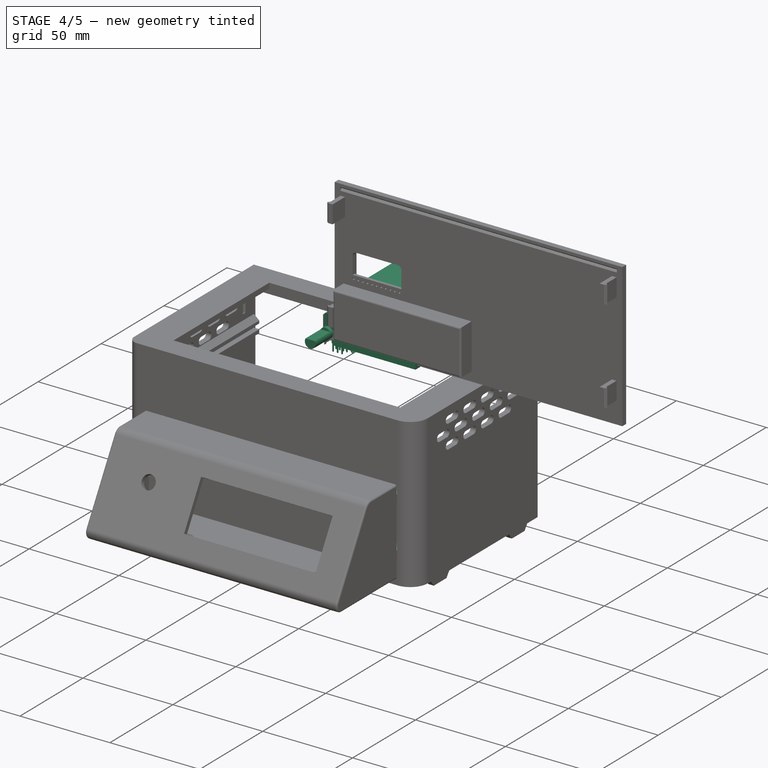
[diagram: stage 4 of 5 — iso view after this stage's code; geometry added in this stage tinted green]
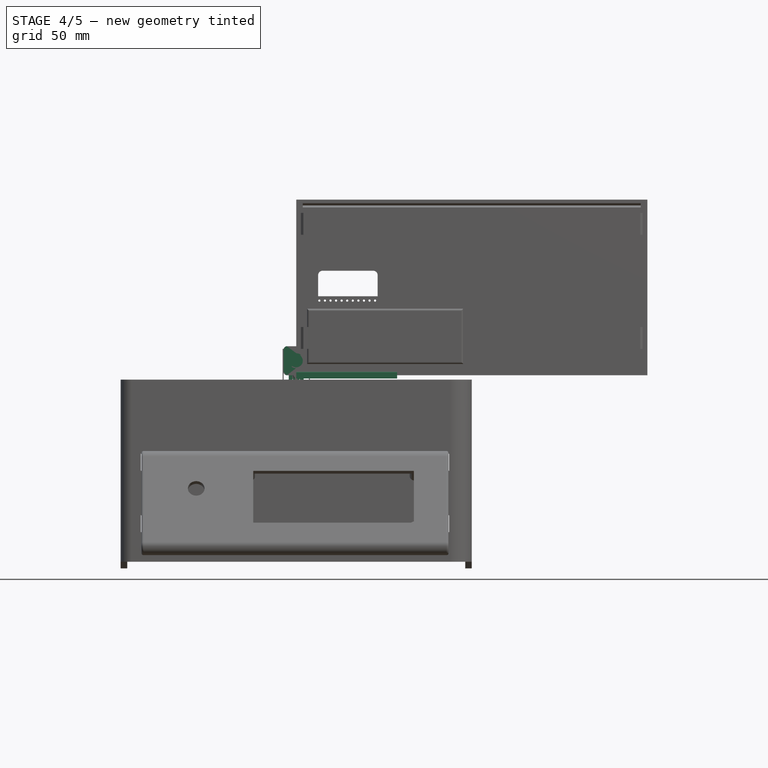
[diagram: stage 4 of 5 — front view after this stage's code; geometry added in this stage tinted green]
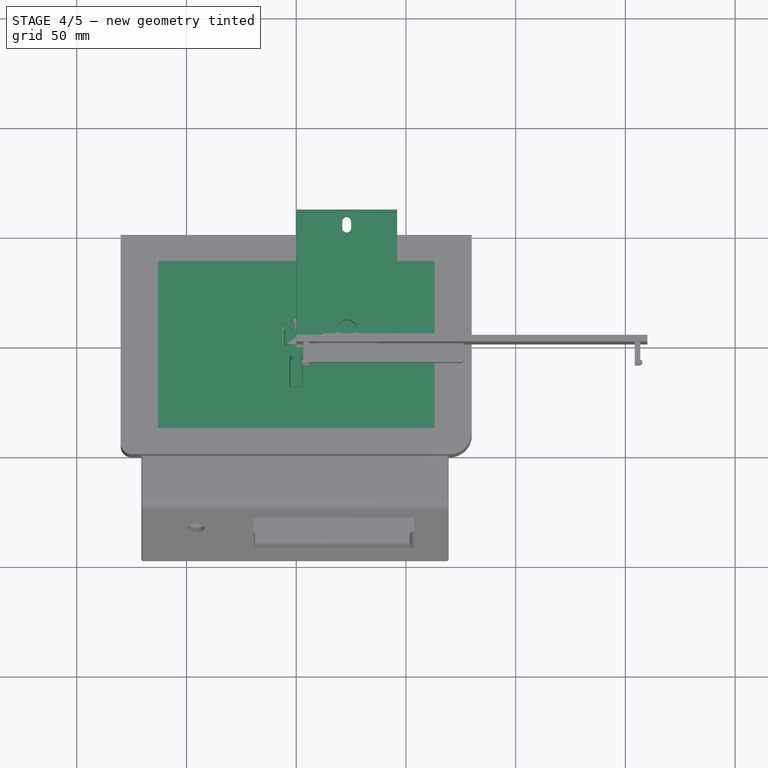
[diagram: stage 4 of 5 — top view after this stage's code; geometry added in this stage tinted green]
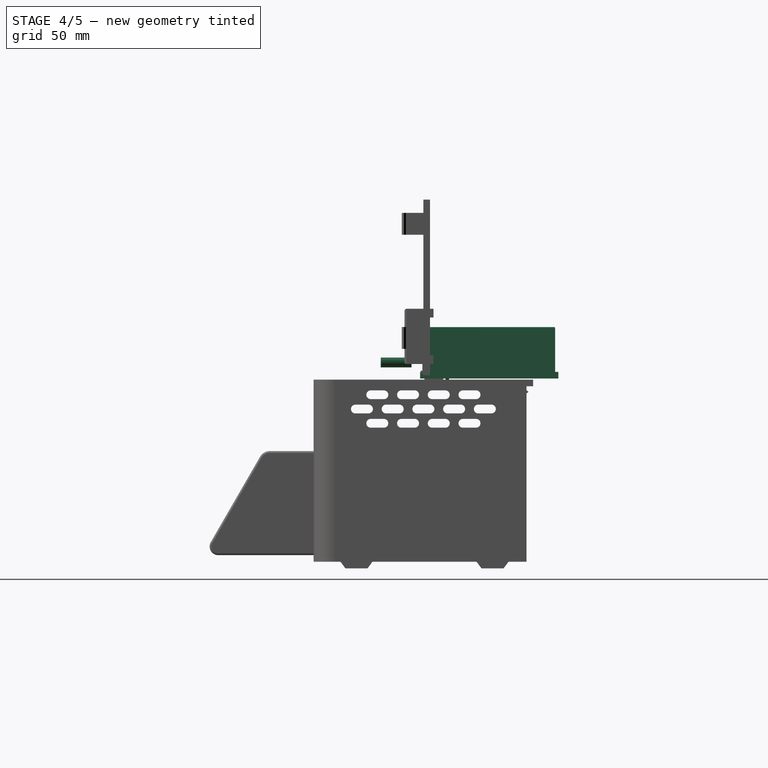
[diagram: stage 4 of 5 — right view after this stage's code; geometry added in this stage tinted green]
FEATURE [PartDesign::Plane] DatumPlane006
  AttachmentOffset = pos=(0,0,-82.8) rot=(0,0,1;0rad)
  AttachmentSupport = -> [XY_Plane009]
  InvalidShape = false
  Length = 10
  MapMode = 5
  MinimumLength = 10
  MinimumWidth = 10
  Placement = pos=(0,0,-82.8) rot=(0,0,1;0rad)
  ResizeMode = 0
  Support = -> [XY_Plane009]
  TreeRank = 185
  ValidateShape = true
  Width = 10
  expr: AttachmentOffset.Base.z = <<DatumPlane005>>.Placement.Base.z + 2.2mm
FEATURE [Sketcher::SketchObject] Sketch009
  ArcFitTolerance = 1e-06
  AttachmentSupport = -> [DatumPlane006]
  ExternalBSplineMaxDegree = 5
  ExternalBSplineTolerance = 0.0001
  FullyConstrained = true
  InternalTolerance = 1e-06
  InvalidShape = false
  MakeInternals = false
  MapMode = 5
  Placement = pos=(0,0,-82.8) rot=(0,0,1;0rad)
  Support = -> [DatumPlane006]
  TreeRank = 186
  ValidateShape = true
  expr: Constraints[8] = <<Top>>.Width - 6mm
  expr: Constraints[9] = <<Top>>.Length - 6mm
  sketch-geometry (10):
    g0: LineSegment [constr] StartX=-77 StartY=47 StartZ=0 EndX=77 EndY=47 EndZ=0
    g1: LineSegment [constr] StartX=77 StartY=47 StartZ=0 EndX=77 EndY=-47 EndZ=0
    g2: LineSegment [constr] StartX=77 StartY=-47 StartZ=0 EndX=-77 EndY=-47 EndZ=0
    g3: LineSegment [constr] StartX=-77 StartY=-47 StartZ=0 EndX=-77 EndY=47 EndZ=0
    g4: LineSegment StartX=-76.8 StartY=46.8 StartZ=0 EndX=76.8 EndY=46.8 EndZ=0
    g5: LineSegment StartX=76.8 StartY=46.8 StartZ=0 EndX=76.8 EndY=-40 EndZ=0
    g6: LineSegment StartX=70 StartY=-46.8 StartZ=0 EndX=-75 EndY=-46.8 EndZ=0
    g7: LineSegment StartX=-76.8 StartY=-45 StartZ=0 EndX=-76.8 EndY=46.8 EndZ=0
    g8: ArcOfCircle CenterX=70 CenterY=-40 CenterZ=0 NormalX=0 NormalY=0 NormalZ=1 AngleXU=0 Radius=6.8 StartAngle=4.71239 EndAngle=6.28319
    g9: ArcOfCircle CenterX=-75 CenterY=-45 CenterZ=0 NormalX=0 NormalY=0 NormalZ=1 AngleXU=0 Radius=1.8 StartAngle=3.14159 EndAngle=4.71239
  constraints (26):
    c: Coincident(g0,g1)
    c: Coincident(g1,g2)
    c: Coincident(g2,g3)
    c: Coincident(g3,g0)
    c: Horizontal(g0)
    c: Vertical(g3)
    c: Symmetric(g1,g0,g-1)
    c: Symmetric(g1,g2,g-2)
    c: DistanceY(g1,g1) = 94
    c: DistanceX(g0,g0) = 154
    c: Coincident(g4,g5)
    c: Coincident(g7,g4)
    c: Horizontal(g4)
    c: Horizontal(g6)
    c: Vertical(g5)
    c: Vertical(g7)
    c: Tangent(g5,g8) = 1.5708
    c: Tangent(g6,g8) = 1.5708
    c: Tangent(g6,g9) = 1.5708
    c: Tangent(g7,g9) = 1.5708
    c: Radius(g8) = 6.8
    c: Radius(g9) = 1.8
    c: DistanceX(g5,g1) = 0.2
    c: DistanceX(g2,g7) = 0.2
    c: DistanceY(g1,g6) = 0.2
    c: DistanceY(g4,g0) = 0.2
FEATURE [PartDesign::Pad] Pad007
  AddSubType = 0
  AlongSketchNormal = false
  AutoTaperInnerAngle = true
  CheckUpToFaceLimits = true
  ClaimChildren = false
  Direction = (0,0,1)
  Fit = 0
  FitJoin = 0
  InnerFit = 0
  InnerFitJoin = 0
  InvalidShape = false
  Length = 2.5
  Length2 = 100
  Linearize = true
  NewSolid = false
  Profile = -> Sketch009
  Suppress = false
  TaperInnerAngle = 0
  TaperInnerAngleRev = 0
  TreeRank = 187
  Type = 0
  ValidateShape = true
  _ProfileBasedVersion = 1
FEATURE [PartDesign::AdditiveBox] Box007  label="SSRBody"
  AddSubType = 0
  AttacherType = Attacher::AttachEngine3D
  Height = 22
  InvalidShape = false
  Length = 46
  NewSolid = false
  Suppress = false
  TreeRank = 209
  ValidateShape = true
  Width = 60
FEATURE [Sketcher::SketchObject] Sketch012
  ArcFitTolerance = 1e-06
  AttachmentSupport = -> [YZ_Plane010]
  ExternalBSplineMaxDegree = 5
  ExternalBSplineTolerance = 0.0001
  FullyConstrained = true
  InternalTolerance = 1e-06
  InvalidShape = false
  MakeInternals = false
  MapMode = 5
  Placement = pos=(0,0,0) rot=(0.57735,0.57735,0.57735;2.0944rad)
  Support = -> [YZ_Plane010]
  TreeRank = 210
  ValidateShape = true
  expr: Constraints[13] = Box007.Width
  sketch-geometry (8):
    g0: LineSegment StartX=0 StartY=1.5 StartZ=0 EndX=-1.5 EndY=1.5 EndZ=0
    g1: LineSegment StartX=-1.5 StartY=1.5 StartZ=0 EndX=-1.5 EndY=-1.5 EndZ=0
    g2: LineSegment StartX=-1.5 StartY=-1.5 StartZ=0 EndX=61.5 EndY=-1.5 EndZ=0
    g3: LineSegment StartX=61.5 StartY=-1.5 StartZ=0 EndX=61.5 EndY=1.5 EndZ=0
    g4: LineSegment StartX=61.5 StartY=1.5 StartZ=0 EndX=60 EndY=1.5 EndZ=0
    g5: LineSegment StartX=60 StartY=1.5 StartZ=0 EndX=60 EndY=0 EndZ=0
    g6: LineSegment StartX=60 StartY=0 StartZ=0 EndX=0 EndY=0 EndZ=0
    g7: LineSegment StartX=0 StartY=1.5 StartZ=0 EndX=0 EndY=0 EndZ=0
  constraints (23):
    c: PointOnObject(g0,g-2)
    c: Coincident(g0,g1)
    c: Vertical(g1)
    c: Coincident(g1,g2)
    c: Horizontal(g2)
    c: Coincident(g2,g3)
    c: Vertical(g3)
    c: Coincident(g3,g4)
    c: Coincident(g4,g5)
    c: PointOnObject(g5,g-1)
    c: Vertical(g5)
    c: Coincident(g5,g6)
    c: Coincident(g6,g-1)
    c: DistanceX(g6,g6) = 60
    c: Horizontal(g0)
    c: Horizontal(g4)
    c: Equal(g0,g4)
    c: DistanceX(g0,g0) = 1.5
    c: DistanceY(g2,g5) = 1.5
    c: Equal(g3,g1)
    c: DistanceY(g1,g1) = 3
    c: Coincident(g7,g0)
    c: Coincident(g7,g6)
FEATURE [PartDesign::Pad] Pad010  label="MetalPlate"
  AddSubType = 0
  AlongSketchNormal = false
  AutoTaperInnerAngle = true
  BaseFeature = -> Box007
  CheckUpToFaceLimits = true
  ClaimChildren = false
  Direction = (1,-3e-16,3e-16)
  Fit = 0
  FitJoin = 0
  InnerFit = 0
  InnerFitJoin = 0
  InvalidShape = false
  Length = 46
  Length2 = 100
  Linearize = true
  NewSolid = false
  Profile = -> Sketch012
  Suppress = false
  TaperInnerAngle = 0
  TaperInnerAngleRev = 0
  TreeRank = 211
  Type = 0
  ValidateShape = true
  _ProfileBasedVersion = 1
  expr: Length = Box007.Length
FEATURE [Sketcher::SketchObject] Sketch013
  ArcFitTolerance = 1e-06
  AttachmentSupport = -> [XY_Plane010]
  ExternalBSplineMaxDegree = 5
  ExternalBSplineTolerance = 0.0001
  FullyConstrained = true
  InternalTolerance = 1e-06
  InvalidShape = false
  MakeInternals = false
  MapMode = 5
  Support = -> [XY_Plane010]
  TreeRank = 212
  ValidateShape = true
  expr: Constraints[11] = <<SSRBody>>.Length / 2
  sketch-geometry (4):
    g0: ArcOfCircle CenterX=23 CenterY=6 CenterZ=0 NormalX=0 NormalY=0 NormalZ=1 AngleXU=0 Radius=5 StartAngle=0 EndAngle=3.14159
    g1: LineSegment StartX=18 StartY=6 StartZ=0 EndX=18 EndY=-1 EndZ=0
    g2: LineSegment StartX=28 StartY=-1 StartZ=0 EndX=28 EndY=6 EndZ=0
    g3: LineSegment StartX=18 StartY=-1 StartZ=0 EndX=28 EndY=-1 EndZ=0
  constraints (13):
    c: Horizontal(g0,g0)
    c: Radius(g0) = 5
    c: Horizontal(g0,g0)
    c: Coincident(g1,g0)
    c: Vertical(g1)
    c: Coincident(g2,g0)
    c: Vertical(g2)
    c: DistanceY(g2,g2) = 7
    c: Coincident(g3,g1)
    c: Coincident(g3,g2)
    c: Horizontal(g3)
    c: DistanceX(g-1,g0) = 23
    c: DistanceY(g-1,g0) = 6
FEATURE [PartDesign::Pocket] Pocket
  AddSubType = 1
  AutoTaperInnerAngle = true
  BaseFeature = -> Pad010
  CheckUpToFaceLimits = true
  ClaimChildren = false
  Fit = 0
  FitJoin = 0
  InnerFit = 0
  InnerFitJoin = 0
  InvalidShape = false
  Length = 22
  Length2 = 100
  Linearize = true
  NewSolid = false
  Profile = -> Sketch013
  Reversed = true
  Suppress = false
  TaperInnerAngle = 0
  TaperInnerAngleRev = 0
  TreeRank = 213
  Type = 0
  ValidateShape = true
  _ProfileBasedVersion = 1
  _Version = 1
  expr: Length = <<SSRBody>>.Height
FEATURE [Sketcher::SketchObject] Sketch014
  ArcFitTolerance = 1e-06
  AttachmentSupport = -> [XY_Plane010]
  ExternalBSplineMaxDegree = 5
  ExternalBSplineTolerance = 0.0001
  FullyConstrained = true
  InternalTolerance = 1e-06
  InvalidShape = false
  MakeInternals = false
  MapMode = 5
  Support = -> [XY_Plane010]
  TreeRank = 214
  ValidateShape = true
  expr: Constraints[11] = <<SSRBody>>.Length / 2
  expr: Constraints[12] = <<SSRBody>>.Width - 7
  sketch-geometry (4):
    g0: ArcOfCircle CenterX=23 CenterY=53 CenterZ=0 NormalX=0 NormalY=0 NormalZ=1 AngleXU=0 Radius=5 StartAngle=3.14159 EndAngle=6.28319
    g1: LineSegment StartX=28 StartY=53 StartZ=0 EndX=28 EndY=61 EndZ=0
    g2: LineSegment StartX=28 StartY=61 StartZ=0 EndX=18 EndY=61 EndZ=0
    g3: LineSegment StartX=18 StartY=61 StartZ=0 EndX=18 EndY=53 EndZ=0
  constraints (13):
    c: Horizontal(g0,g0)
    c: Horizontal(g0,g0)
    c: Coincident(g1,g0)
    c: Vertical(g1)
    c: Coincident(g2,g1)
    c: Horizontal(g2)
    c: Coincident(g3,g2)
    c: Coincident(g3,g0)
    c: Vertical(g3)
    c: Radius(g0) = 5
    c: DistanceY(g1,g1) = 8
    c: DistanceX(g-1,g0) = 23
    c: DistanceY(g-1,g0) = 53
FEATURE [PartDesign::Pocket] Pocket001
  AddSubType = 1
  AutoTaperInnerAngle = true
  BaseFeature = -> Pocket
  CheckUpToFaceLimits = true
  ClaimChildren = false
  Fit = 0
  FitJoin = 0
  InnerFit = 0
  InnerFitJoin = 0
  InvalidShape = false
  Length = 22
  Length2 = 100
  Linearize = true
  NewSolid = false
  Profile = -> Sketch014
  Reversed = true
  Suppress = false
  TaperInnerAngle = 0
  TaperInnerAngleRev = 0
  TreeRank = 215
  Type = 0
  ValidateShape = true
  _ProfileBasedVersion = 1
  _Version = 1
  expr: Length = <<SSRBody>>.Height
FEATURE [PartDesign::SubtractiveCylinder] Cylinder
  AddSubType = 1
  Angle = 360
  AttacherType = Attacher::AttachEngine3D
  AttachmentOffset = pos=(23,6,-2) rot=(0,0,1;0rad)
  AttachmentSupport = -> [XY_Plane010]
  BaseFeature = -> Pocket001
  FirstAngle = 0
  Height = 4
  InvalidShape = false
  MapMode = 5
  NewSolid = false
  Placement = pos=(23,6,-2) rot=(0,0,1;0rad)
  Radius = 2
  SecondAngle = 0
  Support = -> [XY_Plane010]
  Suppress = false
  TreeRank = 216
  ValidateShape = true
  expr: AttachmentOffset.Base.x = <<SSRBody>>.Length / 2
FEATURE [Sketcher::SketchObject] Sketch015
  ArcFitTolerance = 1e-06
  AttachmentSupport = -> [XY_Plane010]
  ExternalBSplineMaxDegree = 5
  ExternalBSplineTolerance = 0.0001
  FullyConstrained = true
  InternalTolerance = 1e-06
  InvalidShape = false
  MakeInternals = false
  MapMode = 5
  Support = -> [XY_Plane010]
  TreeRank = 217
  ValidateShape = true
  expr: Constraints[8] = <<SSRBody>>.Length / 2
  expr: Constraints[9] = <<SSRBody>>.Width - 7
  sketch-geometry (4):
    g0: ArcOfCircle CenterX=23 CenterY=56 CenterZ=0 NormalX=0 NormalY=0 NormalZ=1 AngleXU=0 Radius=2 StartAngle=-1.8e-15 EndAngle=3.14159
    g1: ArcOfCircle CenterX=23 CenterY=53 CenterZ=0 NormalX=0 NormalY=0 NormalZ=1 AngleXU=0 Radius=2 StartAngle=3.14159 EndAngle=6.28319
    g2: LineSegment StartX=21 StartY=56 StartZ=0 EndX=21 EndY=53 EndZ=0
    g3: LineSegment StartX=25 StartY=53 StartZ=0 EndX=25 EndY=56 EndZ=0
  constraints (10):
    c: Tangent(g0,g2) = -1.5708
    c: Tangent(g2,g1) = -1.5708
    c: Tangent(g1,g3) = -1.5708
    c: Tangent(g3,g0) = -1.5708
    c: Equal(g0,g1)
    c: Radius(g0) = 2
    c: Vertical(g3)
    c: DistanceY(g3,g3) = 3
    c: DistanceX(g-1,g1) = 23
    c: DistanceY(g-1,g1) = 53
FEATURE [PartDesign::Pocket] Pocket002
  AddSubType = 1
  AutoTaperInnerAngle = true
  BaseFeature = -> Cylinder
  CheckUpToFaceLimits = true
  ClaimChildren = false
  Fit = 0
  FitJoin = 0
  InnerFit = 0
  InnerFitJoin = 0
  InvalidShape = false
  Length = 4
  Length2 = 100
  Linearize = true
  Midplane = true
  NewSolid = false
  Profile = -> Sketch015
  Reversed = true
  Suppress = false
  TaperInnerAngle = 0
  TaperInnerAngleRev = 0
  TreeRank = 218
  Type = 0
  ValidateShape = true
  _ProfileBasedVersion = 1
  _Version = 1
FEATURE [PartDesign::Fillet] Fillet002
  AddSubType = 0
  Base = -> Pocket002 [Edge27,Edge42]
  BaseFeature = -> Pocket002
  InvalidShape = false
  NewSolid = false
  Radius = 0.2
  SupportTransform = false
  Suppress = false
  TreeRank = 219
  ValidateShape = true
FEATURE [PartDesign::Fillet] Fillet003
  AddSubType = 0
  Base = -> Fillet002 [Edge43,Edge52,Edge64,Edge63,Edge59,Edge21]
  BaseFeature = -> Fillet002
  InvalidShape = false
  NewSolid = false
  Radius = 0.4
  SupportTransform = false
  Suppress = false
  TreeRank = 220
  ValidateShape = true
FEATURE [Part::Fillet] Fillet011
  Base = -> Box013
  EdgeLinks = -> Box013 [Edge2,Edge4,Edge6,Edge8]
  Edges = 4 edges r=1.5: [Edge2,Edge4,Edge6,Edge8]
  InvalidShape = false
  TreeRank = 323
  ValidateShape = true
FEATURE [Sketcher::SketchObject] Sketch027
  ArcFitTolerance = 1e-06
  ExternalBSplineMaxDegree = 5
  ExternalBSplineTolerance = 0.0001
  FullyConstrained = true
  InternalTolerance = 1e-06
  InvalidShape = false
  MakeInternals = false
  MapMode = 5
  Placement = pos=(0,0,0) rot=(1,0,0;1.5708rad)
  TreeRank = 327
  ValidateShape = true
  sketch-geometry (15):
    g0: LineSegment StartX=1.94 StartY=13.2 StartZ=0 EndX=10.46 EndY=13.2 EndZ=0
    g1: LineSegment StartX=11.96 StartY=11.7 StartZ=0 EndX=11.96 EndY=1.5 EndZ=0
    g2: LineSegment StartX=10.46 StartY=0 StartZ=0 EndX=1.94 EndY=0 EndZ=0
    g3: LineSegment StartX=0.44 StartY=1.5 StartZ=0 EndX=0.44 EndY=11.7 EndZ=0
    g4: ArcOfCircle CenterX=10.46 CenterY=11.7 CenterZ=0 NormalX=0 NormalY=0 NormalZ=1 AngleXU=0 Radius=1.5 StartAngle=0 EndAngle=1.5708
    g5: ArcOfCircle CenterX=10.46 CenterY=1.5 CenterZ=0 NormalX=0 NormalY=0 NormalZ=1 AngleXU=0 Radius=1.5 StartAngle=4.71239 EndAngle=6.28319
    g6: ArcOfCircle CenterX=1.94 CenterY=1.5 CenterZ=0 NormalX=0 NormalY=0 NormalZ=1 AngleXU=0 Radius=1.5 StartAngle=3.14159 EndAngle=4.71239
    g7: ArcOfCircle CenterX=1.94 CenterY=11.7 CenterZ=0 NormalX=0 NormalY=0 NormalZ=1 AngleXU=0 Radius=1.5 StartAngle=1.5708 EndAngle=3.14159
    g8: LineSegment [constr] StartX=11.96 StartY=13.2 StartZ=0 EndX=0.44 EndY=13.2 EndZ=0
    g9: LineSegment [constr] StartX=0.44 StartY=13.2 StartZ=0 EndX=0.44 EndY=0 EndZ=0
    g10: LineSegment [constr] StartX=0.44 StartY=0 StartZ=0 EndX=11.96 EndY=0 EndZ=0
    g11: LineSegment [constr] StartX=11.96 StartY=0 StartZ=0 EndX=11.96 EndY=13.2 EndZ=0
    g12: LineSegment [constr] StartX=11.96 StartY=13.2 StartZ=0 EndX=6.2 EndY=6.6 EndZ=0
    g13: LineSegment [constr] StartX=6.2 StartY=6.6 StartZ=0 EndX=0.44 EndY=0 EndZ=0
    g14: Circle CenterX=6.2 CenterY=6.6 CenterZ=0 NormalX=0 NormalY=0 NormalZ=1 AngleXU=0 Radius=3.4
  constraints (39):
    c: Horizontal(g0)
    c: Horizontal(g2)
    c: Vertical(g1)
    c: Vertical(g3)
    c: Tangent(g0,g4) = 1.5708
    c: Tangent(g1,g4) = 1.5708
    c: Tangent(g1,g5) = 1.5708
    c: Tangent(g2,g5) = 1.5708
    c: Tangent(g2,g6) = 1.5708
    c: Tangent(g3,g6) = 1.5708
    c: Tangent(g0,g7) = 1.5708
    c: Tangent(g3,g7) = 1.5708
    c: Equal(g7,g4)
    c: Equal(g4,g5)
    c: Equal(g5,g6)
    c: Radius(g7) = 1.5
    c: Coincident(g8,g9)
    c: Coincident(g9,g10)
    c: Coincident(g10,g11)
    c: Coincident(g11,g8)
    c: Horizontal(g8)
    c: Horizontal(g10)
    c: Vertical(g9)
    c: Vertical(g11)
    c: PointOnObject(g9,g-1)
    c: PointOnObject(g3,g9)
    c: PointOnObject(g2,g10)
    c: PointOnObject(g0,g8)
    c: PointOnObject(g1,g11)
    c: DistanceX(g-1,g9) = 0.44
    c: DistanceX(g8,g8) = 11.52
    c: DistanceY(g11,g11) = 13.2
    c: Coincident(g8,g12)
    c: Coincident(g12,g13)
    c: Coincident(g13,g9)
    c: Parallel(g13,g12)
    c: Equal(g13,g12)
    c: Coincident(g14,g12)
    c: Diameter(g14) = 6.8
FEATURE [Part::Extrusion] Extrude002
  AutoTaperInnerAngle = true
  Base = -> Sketch027
  Dir = (0,-1,2e-16)
  DirMode = 2
  FaceMakerClass = Part::FaceMakerBullseye
  InvalidShape = false
  LengthFwd = 0.44
  LengthRev = 0
  Linearize = true
  Placement = pos=(-6.2,0,0) rot=(0,0,1;0rad)
  Solid = true
  Symmetric = false
  TaperInnerAngle = 0
  TaperInnerAngleRev = 0
  TreeRank = 328
  ValidateShape = true
  expr: Placement.Base.x = -Box013.Length / 2 - LengthFwd
FEATURE [Sketcher::SketchObject] Sketch028
  ArcFitTolerance = 1e-06
  AttachmentOffset = pos=(0,-2.51,-7.7) rot=(0,0,1;0rad)
  ExternalBSplineMaxDegree = 5
  ExternalBSplineTolerance = 0.0001
  FullyConstrained = false
  InternalTolerance = 1e-06
  InvalidShape = false
  MakeInternals = false
  MapMode = 5
  Placement = pos=(0,0,0) rot=(1,0,0;1.5708rad)
  TreeRank = 331
  ValidateShape = true
  expr: Placement.Base.y = 0
  expr: Placement.Base.z = 0
  sketch-geometry (10):
    g0: LineSegment StartX=0 StartY=0 StartZ=0 EndX=0 EndY=-1 EndZ=0
    g1: LineSegment StartX=0.104142 StartY=-1.23734 StartZ=0 EndX=0.941285 EndY=-2.0076 EndZ=0
    g2: LineSegment StartX=0.941285 StartY=-2.0076 StartZ=0 EndX=-1e-16 EndY=-3.2318 EndZ=0
    g3: LineSegment StartX=0 StartY=-3.2318 StartZ=0 EndX=0.348811 EndY=-3.5 EndZ=0
    g4: LineSegment StartX=0.348811 StartY=-3.5 StartZ=0 EndX=1.43 EndY=-2.09384 EndZ=0
    g5: LineSegment StartX=1.4047 StartY=-1.78653 StartZ=0 EndX=0.44 EndY=-0.885948 EndZ=0
    g6: LineSegment StartX=0.44 StartY=-0.885948 StartZ=0 EndX=0.44 EndY=0 EndZ=0
    g7: LineSegment StartX=0.44 StartY=0 StartZ=0 EndX=0 EndY=0 EndZ=0
    g8: ArcOfCircle CenterX=1.24827 CenterY=-1.95411 CenterZ=0 NormalX=0 NormalY=0 NormalZ=1 AngleXU=0 Radius=0.229244 StartAngle=5.6277 EndAngle=7.10294
    g9: ArcOfCircle CenterX=0.322517 CenterY=-1 CenterZ=0 NormalX=0 NormalY=0 NormalZ=1 AngleXU=0 Radius=0.322517 StartAngle=3.14159 EndAngle=3.96858
  constraints (22):
    c: Vertical(g0)
    c: Coincident(g1,g2)
    c: Coincident(g2,g3)
    c: Coincident(g3,g4)
    c: Coincident(g5,g6)
    c: Vertical(g6)
    c: Coincident(g6,g7)
    c: Coincident(g7,g0)
    c: Horizontal(g7)
    c: Perpendicular(g3,g2)
    c: Tangent(g4,g8) = -1.5708
    c: Tangent(g5,g8) = -1.5708
    c: DistanceX(g7,g7) = 0.44
    c: Distance(g3) = 0.44
    c: DistanceY(g3,g0) = 3.5
    c: PointOnObject(g2,g-2)
    c: Tangent(g0,g9) = -1.5708
    c: Tangent(g1,g9) = -1.5708
    c: DistanceY(g0,g0) = 1
    c: DistanceX(g0,g4) = 1.43
    c: Distance(g1,g4) = 0.44
    c: Coincident(g0,g-1)
FEATURE [Part::Extrusion] Extrude003
  AutoTaperInnerAngle = true
  Base = -> Sketch028
  Dir = (0,-1,2e-16)
  DirMode = 2
  FaceMakerClass = Part::FaceMakerBullseye
  InvalidShape = false
  LengthFwd = 2
  LengthRev = 0
  Linearize = true
  Placement = pos=(-6.2,7.56,-3.4) rot=(0,0,1;0rad)
  Solid = true
  Symmetric = false
  TaperInnerAngle = 0
  TaperInnerAngleRev = 0
  TreeRank = 332
  ValidateShape = true
  expr: Placement.Base.x = -Box013.Length / 2 - 0.44
  expr: Placement.Base.y = Box013.Width + LengthFwd / 2
FEATURE [Part::Mirroring] Part__Mirroring  label="Extrude003 (Mirror #1)"
  Base = (0,0,0)
  InvalidShape = false
  Normal = (1,0,0)
  Source = -> Extrude003
  TreeRank = 333
  ValidateShape = true
FEATURE [Sketcher::SketchObject] Sketch029
  ArcFitTolerance = 1e-06
  ExternalBSplineMaxDegree = 5
  ExternalBSplineTolerance = 0.0001
  FullyConstrained = true
  InternalTolerance = 1e-06
  InvalidShape = false
  MakeInternals = false
  Placement = pos=(0,0,0) rot=(-1,0,0;4.71239rad)
  TreeRank = 334
  ValidateShape = true
  sketch-geometry (4):
    g0: LineSegment StartX=-0.4 StartY=0 StartZ=0 EndX=-0.4 EndY=-6.5 EndZ=0
    g1: LineSegment StartX=0.4 StartY=-6.5 StartZ=0 EndX=0.4 EndY=0 EndZ=0
    g2: LineSegment StartX=0.4 StartY=0 StartZ=0 EndX=-0.4 EndY=0 EndZ=0
    g3: ArcOfCircle CenterX=0 CenterY=-6.5 CenterZ=0 NormalX=0 NormalY=0 NormalZ=1 AngleXU=0 Radius=0.4 StartAngle=3.14159 EndAngle=6.28319
  constraints (12):
    c: PointOnObject(g0,g-1)
    c: Vertical(g0)
    c: Vertical(g1)
    c: Coincident(g1,g2)
    c: Coincident(g2,g0)
    c: Symmetric(g1,g0,g-2)
    c: DistanceX(g2,g2) = 0.8
    c: PointOnObject(g3,g-2)
    c: Coincident(g3,g1)
    c: Coincident(g3,g0)
    c: Horizontal(g1,g3)
    c: DistanceY(g3,g1) = 6.5
FEATURE [Part::Extrusion] Extrude004
  AutoTaperInnerAngle = true
  Base = -> Sketch029
  Dir = (0,-1,-2e-16)
  DirMode = 2
  FaceMakerClass = Part::FaceMakerBullseye
  InvalidShape = false
  LengthFwd = 0.25
  LengthRev = 0
  Linearize = true
  Placement = pos=(-3,5.56,0) rot=(0,0,1;0rad)
  Solid = true
  Symmetric = false
  TaperInnerAngle = 0
  TaperInnerAngleRev = 0
  TreeRank = 335
  ValidateShape = true
  expr: Placement.Base.x = -3
  expr: Placement.Base.y = Box013.Width - 1
FEATURE [Sketcher::SketchObject] Sketch030
  ArcFitTolerance = 1e-06
  ExternalBSplineMaxDegree = 5
  ExternalBSplineTolerance = 0.0001
  FullyConstrained = false
  InternalTolerance = 1e-06
  InvalidShape = false
  MakeInternals = false
  Placement = pos=(0,0,0) rot=(-1,0,0;4.71239rad)
  TreeRank = 336
  ValidateShape = true
  sketch-geometry (10):
    g0: LineSegment StartX=-0.75 StartY=0 StartZ=0 EndX=-0.75 EndY=-2.7 EndZ=0
    g1: LineSegment StartX=-0.75 StartY=-2.7 StartZ=0 EndX=-0.4 EndY=-2.7 EndZ=0
    g2: LineSegment StartX=-0.4 StartY=-2.7 StartZ=0 EndX=-0.4 EndY=-6.49249 EndZ=0
    g3: LineSegment StartX=-0.4 StartY=-6.49249 StartZ=0 EndX=-0.0754528 EndY=-6.86563 EndZ=0
    g4: LineSegment StartX=0.0754528 StartY=-6.86563 StartZ=0 EndX=0.4 EndY=-6.49249 EndZ=0
    g5: LineSegment StartX=0.4 StartY=-6.49249 StartZ=0 EndX=0.4 EndY=-2.7 EndZ=0
    g6: LineSegment StartX=0.4 StartY=-2.7 StartZ=0 EndX=0.75 EndY=-2.7 EndZ=0
    g7: LineSegment StartX=0.75 StartY=-2.7 StartZ=0 EndX=0.75 EndY=0 EndZ=0
    g8: LineSegment StartX=0.75 StartY=0 StartZ=0 EndX=-0.75 EndY=0 EndZ=0
    g9: ArcOfCircle CenterX=0 CenterY=-6.8 CenterZ=0 NormalX=0 NormalY=0 NormalZ=1 AngleXU=0 Radius=0.1 StartAngle=3.85745 EndAngle=5.56732
  constraints (27):
    c: PointOnObject(g0,g-1)
    c: Vertical(g0)
    c: Coincident(g0,g1)
    c: Coincident(g1,g2)
    c: Vertical(g2)
    c: Coincident(g2,g3)
    c: Coincident(g4,g5)
    c: Vertical(g5)
    c: Coincident(g5,g6)
    c: Coincident(g6,g7)
    c: Vertical(g7)
    c: Coincident(g7,g8)
    c: Coincident(g8,g0)
    c: Horizontal(g6)
    c: Horizontal(g1)
    c: Equal(g6,g1)
    c: Horizontal(g5,g1)
    c: Symmetric(g7,g0,g-2)
    c: DistanceX(g1,g5) = 0.8
    c: DistanceX(g8,g8) = 1.5
    c: Tangent(g3,g9) = -1.5708
    c: Tangent(g4,g9) = -1.5708
    c: Radius(g9) = 0.1
    c: Horizontal(g4,g2)
    c: PointOnObject(g9,g-2)
    c: DistanceY(g9,g7) = 6.8
    c: DistanceY(g7,g7) = 2.7
FEATURE [Part::Extrusion] Extrude005
  AutoTaperInnerAngle = true
  Base = -> Sketch030
  Dir = (0,-1,-2e-16)
  DirMode = 2
  FaceMakerClass = Part::FaceMakerBullseye
  InvalidShape = false
  LengthFwd = 0.25
  LengthRev = 0
  Linearize = true
  Placement = pos=(-2.5,2.46,0) rot=(0,0,1;0rad)
  Solid = true
  Symmetric = false
  TaperInnerAngle = 0
  TaperInnerAngleRev = 0
  TreeRank = 337
  ValidateShape = true
  expr: Placement.Base.y = Box013.Width - 1 - 3.1
FEATURE [Part::Cylinder] Cylinder006
  Angle = 360
  AttacherType = Attacher::AttachEngine3D
  AttachmentOffset = pos=(-4.1,1.5,0) rot=(0,0,1;0rad)
  AttachmentSupport = -> [Fillet011]
  FirstAngle = 0
  Height = 1.24
  InvalidShape = false
  MapMode = 5
  Placement = pos=(-4.1,3e-16,1.5) rot=(1,0,0;1.5708rad)
  Radius = 0.58
  SecondAngle = 0
  Support = -> [Fillet011]
  TreeRank = 338
  ValidateShape = true
  expr: Radius = 1.16 / 2
FEATURE [Part::Cylinder] Cylinder007
  Angle = 360
  AttacherType = Attacher::AttachEngine3D
  AttachmentOffset = pos=(4.1,11.7,0) rot=(0,0,1;0rad)
  AttachmentSupport = -> [Fillet011]
  FirstAngle = 0
  Height = 1.24
  InvalidShape = false
  MapMode = 5
  Placement = pos=(4.1,2.6e-15,11.7) rot=(1,0,0;1.5708rad)
  Radius = 0.58
  SecondAngle = 0
  Support = -> [Fillet011]
  TreeRank = 339
  ValidateShape = true
  expr: Radius = 1.16 / 2
FEATURE [Part::Fuse] Fusion001
  Base = -> Extrude002
  InvalidShape = false
  Tool = -> Fusion
  TreeRank = 341
  ValidateShape = true
FEATURE [Part::MultiFuse] Fusion002
  InvalidShape = false
  Shapes = -> [Fillet011,Cylinder006]
  TreeRank = 342
  ValidateShape = true
FEATURE [Part::Cylinder] Cylinder008  label="ShaftBase"
  Angle = 360
  AttacherType = Attacher::AttachEngine3D
  AttachmentOffset = pos=(0,6.6,0) rot=(0,0,1;0rad)
  AttachmentSupport = -> [Fillet011]
  FirstAngle = 0
  Height = 5.44
  InvalidShape = false
  MapMode = 5
  Placement = pos=(0,1.5e-15,6.6) rot=(1,0,0;1.5708rad)
  Radius = 3.4
  SecondAngle = 0
  Support = -> [Fillet011]
  TreeRank = 84
  ValidateShape = true
  expr: AttachmentOffset.Base.y = Box013.Height / 2
  expr: Height = 5.44
FEATURE [Part::Cylinder] Cylinder005  label="Knob"
  Angle = 360
  AttacherType = Attacher::AttachEngine3D
  AttachmentSupport = -> [Cylinder008]
  FirstAngle = 0
  Height = 14
  InvalidShape = false
  MapMode = 5
  Placement = pos=(0,-5.44,6.6) rot=(1,0,0;1.5708rad)
  Radius = 3
  SecondAngle = 0
  Support = -> [Cylinder008]
  TreeRank = 329
  ValidateShape = true
FEATURE [Part::Box] Box014  label="Cube"
  AttacherType = Attacher::AttachEngine3D
  AttachmentOffset = pos=(-3,1.5,2) rot=(0,0,1;0rad)
  AttachmentSupport = -> [Cylinder008]
  Height = 12
  InvalidShape = false
  Length = 6
  MapMode = 5
  Placement = pos=(-3,-7.44,8.1) rot=(1,0,0;1.5708rad)
  Support = -> [Cylinder008]
  TreeRank = 330
  ValidateShape = true
  Width = 1.5
  expr: AttachmentOffset.Base.x = -Length / 2
  expr: AttachmentOffset.Base.y = <<Knob>>.Radius - Width
FEATURE [Part::Cut] Cut  label="Shaft"
  Base = -> Cylinder005
  InvalidShape = false
  Tool = -> Box014
  TreeRank = 85
  ValidateShape = true
FEATURE [Part::FeaturePython] Array001  label="BackPins"  # Draft array (typed FeaturePython)
  AlwaysSyncPlacement = false
  Angle = 360
  ArrayType = 0
  AutoPlacement = true
  Axis = (0,0,1)
  Base = -> Extrude004
  BuildShape = true
  Center = (0,0,0)
  Count = 4
  ExpandArray = false
  Fuse = false
  IntervalAxis = (0,0,0)
  IntervalX = (2,0,0)
  IntervalY = (0,100,0)
  IntervalZ = (0,0,100)
  InvalidShape = false
  NumberCircles = 3
  NumberPolar = 5
  NumberX = 4
  NumberY = 1
  NumberZ = 1
  PlacementList = 4 placements: arithmetic series from (-3,5.56,0) step (2,0,0) to (3,5.56,0)
  RadialDistance = 50
  ScaleList = (4) [(1,1,1),(1,1,1),(1,1,1),(1,1,1)]
  Symmetry = 1
  TangentialDistance = 25
  TreeRank = 86
  ValidateShape = true
  _LinkVersion = 1
FEATURE [Part::FeaturePython] Array002  label="FrontPins"  # Draft array (typed FeaturePython)
  AlwaysSyncPlacement = false
  Angle = 360
  ArrayType = 0
  AutoPlacement = true
  Axis = (0,0,1)
  Base = -> Extrude005
  BuildShape = true
  Center = (0,0,0)
  Count = 3
  ExpandArray = false
  Fuse = false
  IntervalAxis = (0,0,0)
  IntervalX = (2.5,0,0)
  IntervalY = (0,100,0)
  IntervalZ = (0,0,100)
  InvalidShape = false
  NumberCircles = 3
  NumberPolar = 5
  NumberX = 3
  NumberY = 1
  NumberZ = 1
  PlacementList = 3 placements: arithmetic series from (-2.5,2.46,0) step (2.5,0,0) to (2.5,2.46,0)
  RadialDistance = 50
  ScaleList = (3) [(1,1,1),(1,1,1),(1,1,1)]
  Symmetry = 1
  TangentialDistance = 25
  TreeRank = 87
  ValidateShape = true
  _LinkVersion = 1
FEATURE [Part::MultiFuse] Fusion003  label="EncoderBody"
  InvalidShape = false
  Shapes = -> [Cylinder007,Fusion002]
  TreeRank = 88
  ValidateShape = true
FEATURE [Part::MultiFuse] Fusion004  label="MetalCover"
  InvalidShape = false
  Shapes = -> [Fusion001,Part__Mirroring]
  TreeRank = 89
  ValidateShape = true
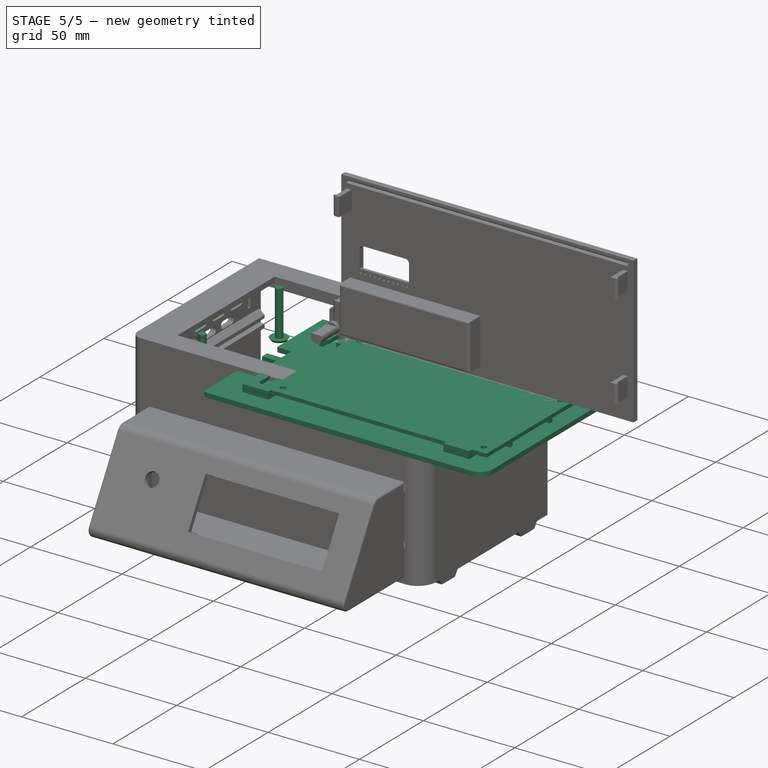
[diagram: stage 5 of 5 — iso view after this stage's code; geometry added in this stage tinted green]
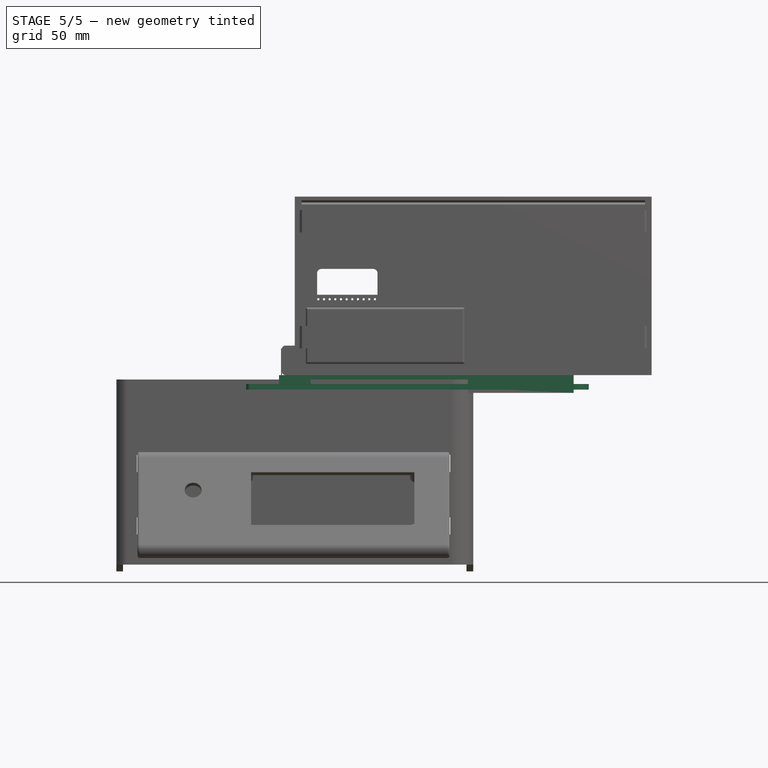
[diagram: stage 5 of 5 — front view after this stage's code; geometry added in this stage tinted green]
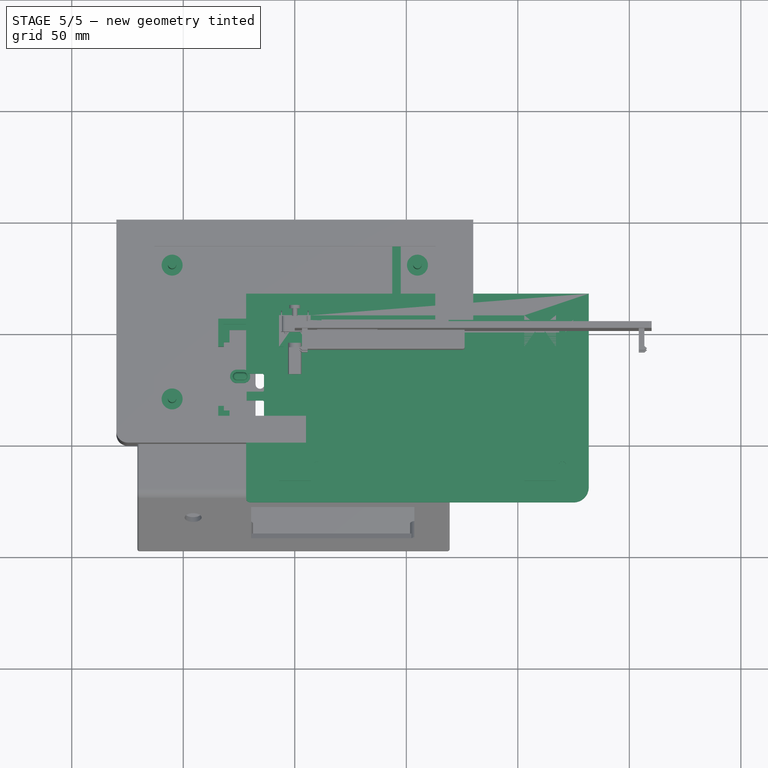
[diagram: stage 5 of 5 — top view after this stage's code; geometry added in this stage tinted green]
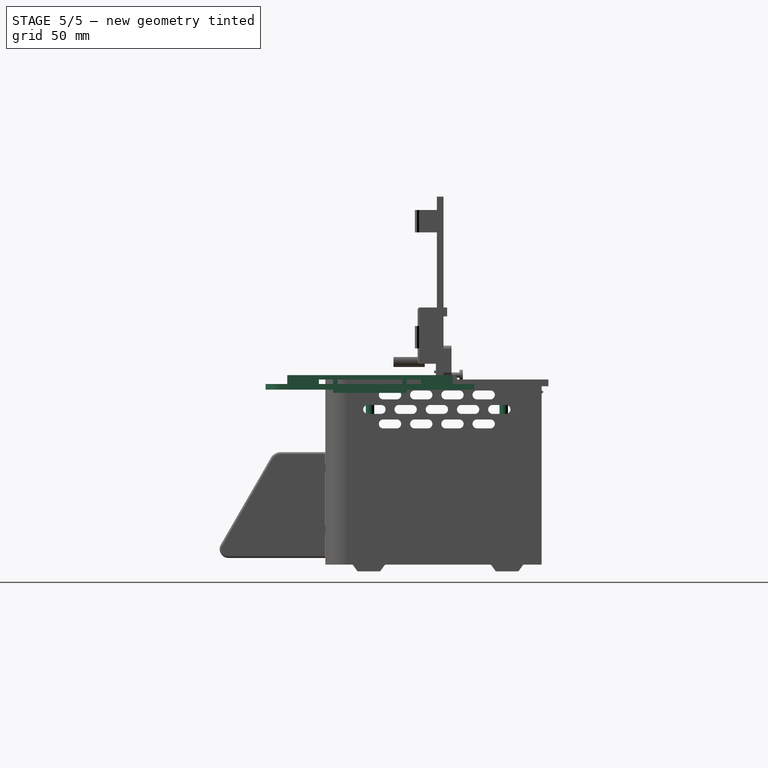
[diagram: stage 5 of 5 — right view after this stage's code; geometry added in this stage tinted green]
FEATURE [Sketcher::SketchObject] Sketch
  ArcFitTolerance = 1e-06
  AttachmentSupport = -> [YZ_Plane]
  ExternalBSplineMaxDegree = 5
  ExternalBSplineTolerance = 0.0001
  FullyConstrained = true
  InternalTolerance = 1e-06
  InvalidShape = false
  MakeInternals = false
  MapMode = 5
  Placement = pos=(0,0,0) rot=(0.57735,0.57735,0.57735;2.0944rad)
  Support = -> [YZ_Plane]
  TreeRank = 13
  ValidateShape = true
  sketch-geometry (12):
    g0: LineSegment StartX=-35 StartY=0 StartZ=0 EndX=35 EndY=0 EndZ=0
    g1: LineSegment StartX=35 StartY=0 StartZ=0 EndX=35 EndY=-2 EndZ=0
    g2: LineSegment StartX=35 StartY=-2 StartZ=0 EndX=16.5 EndY=-2 EndZ=0
    g3: LineSegment StartX=16.5 StartY=-2 StartZ=0 EndX=16.5 EndY=-8 EndZ=0
    g4: LineSegment StartX=16.5 StartY=-8 StartZ=0 EndX=-16.5 EndY=-8 EndZ=0
    g5: LineSegment StartX=-16.5 StartY=-8 StartZ=0 EndX=-16.5 EndY=-2 EndZ=0
    g6: LineSegment StartX=-16.5 StartY=-2 StartZ=0 EndX=-35 EndY=-2 EndZ=0
    g7: LineSegment StartX=-35 StartY=-2 StartZ=0 EndX=-35 EndY=0 EndZ=0
    g8: LineSegment StartX=-14.5 StartY=-2 StartZ=0 EndX=14.5 EndY=-2 EndZ=0
    g9: LineSegment StartX=14.5 StartY=-2 StartZ=0 EndX=14.5 EndY=-6 EndZ=0
    g10: LineSegment StartX=14.5 StartY=-6 StartZ=0 EndX=-14.5 EndY=-6 EndZ=0
    g11: LineSegment StartX=-14.5 StartY=-6 StartZ=0 EndX=-14.5 EndY=-2 EndZ=0
  constraints (33):
    c: PointOnObject(g0,g-1)
    c: Coincident(g0,g1)
    c: Vertical(g1)
    c: Coincident(g1,g2)
    c: Horizontal(g2)
    c: Coincident(g2,g3)
    c: Vertical(g3)
    c: Coincident(g3,g4)
    c: Horizontal(g4)
    c: Coincident(g4,g5)
    c: Vertical(g5)
    c: Coincident(g5,g6)
    c: Horizontal(g6)
    c: Coincident(g6,g7)
    c: Coincident(g7,g0)
    c: Symmetric(g0,g0,g-2)
    c: Vertical(g7)
    c: Symmetric(g5,g2,g-2)
    c: DistanceX(g0,g0) = 70
    c: DistanceY(g7,g7) = 2
    c: DistanceX(g4,g4) = 33
    c: DistanceY(g3,g3) = 6
    c: Coincident(g8,g9)
    c: Coincident(g9,g10)
    c: Coincident(g10,g11)
    c: Coincident(g11,g8)
    c: Horizontal(g10)
    c: Vertical(g9)
    c: Vertical(g11)
    c: Horizontal(g8,g5)
    c: DistanceY(g3,g9) = 2
    c: Symmetric(g8,g8,g-2)
    c: DistanceX(g4,g10) = 2
FEATURE [PartDesign::Pad] Pad
  AddSubType = 0
  AlongSketchNormal = false
  AutoTaperInnerAngle = true
  CheckUpToFaceLimits = true
  ClaimChildren = false
  Direction = (1,-2e-16,3e-16)
  Fit = 0
  FitJoin = 0
  InnerFit = 0
  InnerFitJoin = 0
  InvalidShape = false
  Length = 120
  Length2 = 100
  Linearize = true
  NewSolid = false
  Profile = -> Sketch
  Suppress = false
  TaperInnerAngle = 0
  TaperInnerAngleRev = 0
  TreeRank = 14
  Type = 0
  ValidateShape = true
  _ProfileBasedVersion = 1
FEATURE [Sketcher::SketchObject] Sketch001
  ArcFitTolerance = 1e-06
  AttachmentSupport = -> [Pad]
  ExternalBSplineMaxDegree = 5
  ExternalBSplineTolerance = 0.0001
  ExternalGeometry = -> [Pad]
  FullyConstrained = true
  InternalTolerance = 1e-06
  InvalidShape = false
  MakeInternals = false
  MapMode = 5
  Support = -> [Pad]
  TreeRank = 15
  ValidateShape = true
  sketch-geometry (4):
    g0: Circle CenterX=5 CenterY=30 CenterZ=0 NormalX=0 NormalY=0 NormalZ=1 AngleXU=0 Radius=1.5
    g1: Circle CenterX=115 CenterY=30 CenterZ=0 NormalX=0 NormalY=0 NormalZ=1 AngleXU=0 Radius=1.5
    g2: Circle CenterX=115 CenterY=-30 CenterZ=0 NormalX=0 NormalY=0 NormalZ=1 AngleXU=0 Radius=1.5
    g3: Circle CenterX=5 CenterY=-30 CenterZ=0 NormalX=0 NormalY=0 NormalZ=1 AngleXU=0 Radius=1.5
  constraints (12):
    c: Diameter(g0) = 3
    c: Equal(g0,g1)
    c: Equal(g1,g2)
    c: Equal(g2,g3)
    c: DistanceY(g0,g-3) = 5
    c: DistanceX(g-3,g0) = 5
    c: DistanceY(g1,g-4) = 5
    c: DistanceX(g1,g-4) = 5
    c: DistanceX(g-6,g3) = 5
    c: DistanceX(g2,g-5) = 5
    c: DistanceY(g-6,g3) = 5
    c: DistanceY(g-5,g2) = 5
FEATURE [PartDesign::Hole] Hole
  AddSubType = 1
  BaseFeature = -> Pad
  ClaimChildren = false
  CustomThreadClearance = 0
  Depth = 25
  DepthType = 0
  Diameter = 3
  DrillForDepth = false
  DrillPoint = 1
  DrillPointAngle = 118
  Fit = 0
  FitJoin = 0
  HoleCutCountersinkAngle = 90
  HoleCutCustomValues = false
  HoleCutDepth = 0
  HoleCutDiameter = 6.1
  HoleCutType = 0
  InnerFit = 0
  InnerFitJoin = 0
  InvalidShape = false
  Linearize = true
  ModelThread = false
  NewSolid = false
  Placement = pos=(5,-30,8e-15) rot=(0,0,1;0rad)
  Profile = -> Sketch001
  Suppress = false
  Tapered = false
  TaperedAngle = 90
  ThreadClass = 0
  ThreadDepth = 23.5
  ThreadDepthType = 0
  ThreadDirection = 0
  ThreadFit = 0
  ThreadSize = 0
  ThreadType = 0
  Threaded = false
  TreeRank = 16
  UseCustomThreadClearance = false
  ValidateShape = true
  _ProfileBasedVersion = 1
FEATURE [PartDesign::Body] Body  label="Heat_Plate"
  AutoGroupSolids = false
  ClaimAllChildren = false
  ExportMode = 0
  Group = -> [Sketch,Pad,Sketch001,Hole]
  InvalidShape = false
  Origin = -> Origin
  Placement = pos=(-65,30,-2.49e-14) rot=(0,0,1;0rad)
  Tip = -> Hole
  TreeRank = 12
  ValidateShape = true
  _ExportChildren = -> [Pad,Hole]
  _GroupVersion = 1
FEATURE [Sketcher::SketchObject] Sketch002
  ArcFitTolerance = 1e-06
  AttachmentSupport = -> [XZ_Plane001]
  ExternalBSplineMaxDegree = 5
  ExternalBSplineTolerance = 0.0001
  FullyConstrained = true
  InternalTolerance = 1e-06
  InvalidShape = false
  MakeInternals = false
  MapMode = 5
  Placement = pos=(0,0,0) rot=(1,0,0;1.5708rad)
  Support = -> [XZ_Plane001]
  TreeRank = 29
  ValidateShape = true
  sketch-geometry (6):
    g0: LineSegment StartX=0 StartY=0 StartZ=0 EndX=-1.9 EndY=0 EndZ=0
    g1: LineSegment StartX=-1.9 StartY=0 StartZ=0 EndX=-1.9 EndY=-24.7 EndZ=0
    g2: LineSegment StartX=-1.9 StartY=-24.7 StartZ=0 EndX=-4.7 EndY=-24.7 EndZ=0
    g3: LineSegment StartX=-4.7 StartY=-24.7 StartZ=0 EndX=-3.7 EndY=-26 EndZ=0
    g4: LineSegment StartX=-3.7 StartY=-26 StartZ=0 EndX=0 EndY=-26 EndZ=0
    g5: LineSegment StartX=0 StartY=-26 StartZ=0 EndX=0 EndY=0 EndZ=0
  constraints (17):
    c: Coincident(g-1,g0)
    c: PointOnObject(g0,g-1)
    c: Coincident(g0,g1)
    c: Vertical(g1)
    c: Coincident(g1,g2)
    c: Horizontal(g2)
    c: Coincident(g2,g3)
    c: Coincident(g3,g4)
    c: PointOnObject(g4,g-2)
    c: Horizontal(g4)
    c: Coincident(g4,g5)
    c: Coincident(g5,g0)
    c: DistanceX(g2,g4) = 4.7
    c: DistanceX(g0,g0) = 1.9
    c: DistanceY(g5,g5) = 26
    c: DistanceY(g4,g1) = 1.3
    c: DistanceX(g4,g4) = 3.7
FEATURE [PartDesign::Revolution] Revolution
  AddSubType = 0
  Angle = 360
  Axis = (0,2e-16,1)
  Base = (0,0,0)
  ClaimChildren = false
  Fit = 0
  FitJoin = 0
  InnerFit = 0
  InnerFitJoin = 0
  InvalidShape = false
  Linearize = true
  NewSolid = false
  Profile = -> Sketch002
  ReferenceAxis = -> Sketch002 [V_Axis]
  Suppress = false
  TreeRank = 30
  ValidateShape = true
  _ProfileBasedVersion = 1
FEATURE [PartDesign::Body] Body001  label="Standoff"
  AutoGroupSolids = false
  ClaimAllChildren = false
  ExportMode = 0
  Group = -> [Sketch002,Revolution]
  InvalidShape = false
  Origin = -> Origin001
  Placement = pos=(15,-90,-2) rot=(0,0,1;0rad)
  Tip = -> Revolution
  TreeRank = 28
  ValidateShape = true
  _ExportChildren = -> [Revolution]
  _GroupVersion = 1
FEATURE [Part::FeaturePython] Array  label="Legs"  # Draft array (typed FeaturePython)
  AlwaysSyncPlacement = false
  Angle = 360
  ArrayType = 0
  AutoPlacement = true
  Axis = (0,0,1)
  Base = -> Body001
  BuildShape = true
  Center = (0,0,0)
  Count = 4
  ExpandArray = false
  Fuse = false
  IntervalAxis = (0,0,0)
  IntervalX = (110,0,0)
  IntervalY = (0,60,0)
  IntervalZ = (0,0,100)
  InvalidShape = false
  NumberCircles = 3
  NumberPolar = 5
  NumberX = 2
  NumberY = 2
  NumberZ = 1
  Placement = pos=(-70,60,-3.29e-14) rot=(0,0,1;0rad)
  PlacementList = 4 placements: [(15,-90,-2),(15,-30,-2),(125,-90,-2),(125,-30,-2)]
  RadialDistance = 50
  ScaleList = (4) [(1,1,1),(1,1,1),(1,1,1),(1,1,1)]
  Symmetry = 1
  TangentialDistance = 25
  TreeRank = 31
  ValidateShape = true
  _LinkVersion = 1
FEATURE [PartDesign::Plane] DatumPlane
  AttachmentSupport = -> [XY_Plane002]
  InvalidShape = false
  Length = 10
  MapMode = 5
  MinimumLength = 10
  MinimumWidth = 10
  ResizeMode = 0
  Support = -> [XY_Plane002]
  TreeRank = 44
  ValidateShape = true
  Width = 10
FEATURE [PartDesign::Plane] DatumPlane001
  AttachmentOffset = pos=(0,0,-2) rot=(0,0,1;0rad)
  AttachmentSupport = -> [XY_Plane002]
  InvalidShape = false
  Length = 10
  MapMode = 5
  MinimumLength = 10
  MinimumWidth = 10
  Placement = pos=(0,0,-2) rot=(0,0,1;0rad)
  ResizeMode = 0
  Support = -> [XY_Plane002]
  TreeRank = 45
  ValidateShape = true
  Width = 10
FEATURE [Sketcher::SketchObject] Sketch003
  ArcFitTolerance = 1e-06
  AttachmentSupport = -> [DatumPlane]
  ExternalBSplineMaxDegree = 5
  ExternalBSplineTolerance = 0.0001
  FullyConstrained = true
  InternalTolerance = 1e-06
  InvalidShape = false
  MakeInternals = false
  MapMode = 5
  Support = -> [DatumPlane]
  TreeRank = 46
  ValidateShape = true
  sketch-geometry (8):
    g0: LineSegment StartX=-2.1 StartY=-7.1 StartZ=0 EndX=-7.1 EndY=-7.1 EndZ=0
    g1: LineSegment StartX=-7.1 StartY=-7.1 StartZ=0 EndX=-7.1 EndY=7.1 EndZ=0
    g2: LineSegment StartX=-7.1 StartY=7.1 StartZ=0 EndX=7.1 EndY=7.1 EndZ=0
    g3: LineSegment StartX=7.1 StartY=7.1 StartZ=0 EndX=7.1 EndY=-7.1 EndZ=0
    g4: LineSegment StartX=7.1 StartY=-7.1 StartZ=0 EndX=2.1 EndY=-7.1 EndZ=0
    g5: LineSegment StartX=2.1 StartY=-7.1 StartZ=0 EndX=2.1 EndY=0 EndZ=0
    g6: LineSegment StartX=-2.1 StartY=-7.1 StartZ=0 EndX=-2.1 EndY=0 EndZ=0
    g7: ArcOfCircle CenterX=0 CenterY=0 CenterZ=0 NormalX=0 NormalY=0 NormalZ=1 AngleXU=0 Radius=2.1 StartAngle=0 EndAngle=3.14159
  constraints (22):
    c: Horizontal(g0)
    c: Coincident(g0,g1)
    c: Vertical(g1)
    c: Coincident(g1,g2)
    c: Coincident(g2,g3)
    c: Coincident(g3,g4)
    c: Horizontal(g4)
    c: Coincident(g4,g5)
    c: Vertical(g5)
    c: Coincident(g6,g0)
    c: Vertical(g6)
    c: Coincident(g7,g6)
    c: Coincident(g7,g5)
    c: Symmetric(g2,g1,g-2)
    c: Symmetric(g2,g3,g-1)
    c: Horizontal(g4,g0)
    c: Radius(g7) = 2.1
    c: DistanceX(g2,g2) = 14.2
    c: DistanceY(g1,g1) = 14.2
    c: Horizontal(g7,g5)
    c: Horizontal(g5,g6)
    c: Coincident(g7,g-1)
FEATURE [PartDesign::Pad] Pad001
  AddSubType = 0
  AlongSketchNormal = false
  AutoTaperInnerAngle = true
  CheckUpToFaceLimits = true
  ClaimChildren = false
  Direction = (0,0,1)
  Fit = 0
  FitJoin = 0
  InnerFit = 0
  InnerFitJoin = 0
  InvalidShape = false
  Length = 10
  Length2 = 100
  Linearize = true
  NewSolid = false
  Profile = -> Sketch003
  Suppress = false
  TaperInnerAngle = 0
  TaperInnerAngleRev = 0
  TreeRank = 47
  Type = 3
  UpToFace = -> DatumPlane001
  ValidateShape = true
  _ProfileBasedVersion = 1
FEATURE [PartDesign::Plane] DatumPlane003
  AttachmentOffset = pos=(0,0,-4) rot=(0,0,1;0rad)
  AttachmentSupport = -> [XY_Plane002]
  InvalidShape = false
  Length = 14
  MapMode = 5
  MinimumLength = 10
  MinimumWidth = 10
  Placement = pos=(0,0,-4) rot=(0,0,1;0rad)
  ResizeMode = 0
  Support = -> [XY_Plane002]
  TreeRank = 49
  ValidateShape = true
  Width = 14
FEATURE [Sketcher::SketchObject] Sketch004
  ArcFitTolerance = 1e-06
  AttachmentSupport = -> [DatumPlane001]
  ExternalBSplineMaxDegree = 5
  ExternalBSplineTolerance = 0.0001
  ExternalGeometry = -> [Pad001]
  FullyConstrained = true
  InternalTolerance = 1e-06
  InvalidShape = false
  MakeInternals = false
  MapMode = 5
  Placement = pos=(0,0,-2) rot=(0,0,1;0rad)
  Support = -> [DatumPlane001]
  TreeRank = 50
  ValidateShape = true
  sketch-geometry (8):
    g0: LineSegment StartX=-7.1 StartY=-7.1 StartZ=0 EndX=-7.1 EndY=7.1 EndZ=0
    g1: LineSegment StartX=-7.1 StartY=7.1 StartZ=0 EndX=7.1 EndY=7.1 EndZ=0
    g2: LineSegment StartX=7.1 StartY=7.1 StartZ=0 EndX=7.1 EndY=-7.1 EndZ=0
    g3: LineSegment StartX=7.1 StartY=-7.1 StartZ=0 EndX=5.1 EndY=-7.1 EndZ=0
    g4: LineSegment StartX=-7.1 StartY=-7.1 StartZ=0 EndX=-5.1 EndY=-7.1 EndZ=0
    g5: LineSegment StartX=-5.1 StartY=-7.1 StartZ=0 EndX=-5.1 EndY=0 EndZ=0
    g6: LineSegment StartX=5.1 StartY=-7.1 StartZ=0 EndX=5.1 EndY=0 EndZ=0
    g7: ArcOfCircle CenterX=0 CenterY=0 CenterZ=0 NormalX=0 NormalY=0 NormalZ=1 AngleXU=0 Radius=5.1 StartAngle=0 EndAngle=3.14159
  constraints (20):
    c: Coincident(g0,g-6)
    c: Coincident(g0,g-3)
    c: Coincident(g1,g0)
    c: Coincident(g1,g-4)
    c: Coincident(g2,g1)
    c: Coincident(g2,g-5)
    c: Coincident(g3,g2)
    c: Horizontal(g3)
    c: Coincident(g4,g0)
    c: Horizontal(g4)
    c: Coincident(g5,g4)
    c: Vertical(g5)
    c: Coincident(g6,g3)
    c: Vertical(g6)
    c: DistanceX(g4,g4) = 2
    c: Coincident(g7,g-1)
    c: Coincident(g7,g5)
    c: Coincident(g7,g6)
    c: PointOnObject(g6,g-1)
    c: PointOnObject(g5,g-1)
FEATURE [PartDesign::Pad] Pad002
  AddSubType = 0
  AlongSketchNormal = false
  AutoTaperInnerAngle = true
  BaseFeature = -> Pad001
  CheckUpToFaceLimits = true
  ClaimChildren = false
  Direction = (0,0,1)
  Fit = 0
  FitJoin = 0
  InnerFit = 0
  InnerFitJoin = 0
  InvalidShape = false
  Length = 10
  Length2 = 100
  Linearize = true
  NewSolid = false
  Profile = -> Sketch004
  Suppress = false
  TaperInnerAngle = 0
  TaperInnerAngleRev = 0
  TreeRank = 51
  Type = 3
  UpToFace = -> DatumPlane003
  ValidateShape = true
  _ProfileBasedVersion = 1
FEATURE [Sketcher::SketchObject] Sketch005  label="BP_PCB_Sketch"
  ArcFitTolerance = 1e-06
  AttachmentSupport = -> [XY_Plane007]
  ExternalBSplineMaxDegree = 5
  ExternalBSplineTolerance = 0.0001
  FullyConstrained = true
  InternalTolerance = 1e-06
  InvalidShape = false
  MakeInternals = false
  MapMode = 5
  Support = -> [XY_Plane007]
  TreeRank = 118
  ValidateShape = true
  sketch-geometry (8):
    g0: LineSegment StartX=-26.5 StartY=11.5 StartZ=0 EndX=26.5 EndY=11.5 EndZ=0
    g1: LineSegment StartX=26.5 StartY=11.5 StartZ=0 EndX=26.5 EndY=6.5 EndZ=0
    g2: LineSegment StartX=26.5 StartY=6.5 StartZ=0 EndX=25 EndY=5 EndZ=0
    g3: LineSegment StartX=25 StartY=5 StartZ=0 EndX=25 EndY=-5 EndZ=0
    g4: LineSegment StartX=25 StartY=-5 StartZ=0 EndX=26.5 EndY=-6.5 EndZ=0
    g5: LineSegment StartX=26.5 StartY=-6.5 StartZ=0 EndX=26.5 EndY=-11.5 EndZ=0
    g6: LineSegment StartX=26.5 StartY=-11.5 StartZ=0 EndX=-26.5 EndY=-11.5 EndZ=0
    g7: LineSegment StartX=-26.5 StartY=-11.5 StartZ=0 EndX=-26.5 EndY=11.5 EndZ=0
  constraints (22):
    c: Horizontal(g0)
    c: Coincident(g0,g1)
    c: Vertical(g1)
    c: Coincident(g1,g2)
    c: Coincident(g2,g3)
    c: Vertical(g3)
    c: Coincident(g3,g4)
    c: Coincident(g4,g5)
    c: Vertical(g5)
    c: Coincident(g5,g6)
    c: Coincident(g6,g7)
    c: Coincident(g7,g0)
    c: DistanceY(g7,g7) = 23
    c: DistanceX(g0,g0) = 53
    c: Vertical(g4,g1)
    c: Equal(g5,g1)
    c: Equal(g4,g2)
    c: Symmetric(g0,g6,g-1)
    c: Symmetric(g5,g6,g-2)
    c: DistanceX(g3,g4) = 1.5
    c: DistanceY(g1,g1) = 5
    c: DistanceY(g3,g3) = 10
FEATURE [PartDesign::Pad] Pad003  label="BP_PCB"
  AddSubType = 0
  AlongSketchNormal = false
  AutoTaperInnerAngle = true
  CheckUpToFaceLimits = true
  ClaimChildren = false
  Direction = (0,0,1)
  Fit = 0
  FitJoin = 0
  InnerFit = 0
  InnerFitJoin = 0
  InvalidShape = false
  Length = 1.6
  Length2 = 100
  Linearize = true
  NewSolid = false
  Profile = -> Sketch005
  Suppress = false
  TaperInnerAngle = 0
  TaperInnerAngleRev = 0
  TreeRank = 119
  Type = 0
  ValidateShape = true
  _ProfileBasedVersion = 1
FEATURE [Sketcher::SketchObject] Sketch006
  ArcFitTolerance = 1e-06
  AttachmentSupport = -> [XY_Plane007]
  ExternalBSplineMaxDegree = 5
  ExternalBSplineTolerance = 0.0001
  FullyConstrained = true
  InternalTolerance = 1e-06
  InvalidShape = false
  MakeInternals = false
  MapMode = 5
  Support = -> [XY_Plane007]
  TreeRank = 120
  ValidateShape = true
  sketch-geometry (12):
    g0: LineSegment [constr] StartX=1.27 StartY=-1.27 StartZ=0 EndX=-1.27 EndY=-1.27 EndZ=0
    g1: LineSegment [constr] StartX=-1.27 StartY=-1.27 StartZ=0 EndX=-1.27 EndY=1.27 EndZ=0
    g2: LineSegment [constr] StartX=-1.27 StartY=1.27 StartZ=0 EndX=1.27 EndY=1.27 EndZ=0
    g3: LineSegment [constr] StartX=1.27 StartY=1.27 StartZ=0 EndX=1.27 EndY=-1.27 EndZ=0
    g4: LineSegment StartX=-1.07 StartY=1.27 StartZ=0 EndX=1.07 EndY=1.27 EndZ=0
    g5: LineSegment StartX=1.27 StartY=1.07 StartZ=0 EndX=1.27 EndY=-1.07 EndZ=0
    g6: LineSegment StartX=1.07 StartY=-1.27 StartZ=0 EndX=-1.07 EndY=-1.27 EndZ=0
    g7: LineSegment StartX=-1.27 StartY=-1.07 StartZ=0 EndX=-1.27 EndY=1.07 EndZ=0
    g8: ArcOfCircle CenterX=1.07 CenterY=1.07 CenterZ=0 NormalX=0 NormalY=0 NormalZ=1 AngleXU=0 Radius=0.2 StartAngle=0 EndAngle=1.5708
    g9: ArcOfCircle CenterX=1.07 CenterY=-1.07 CenterZ=0 NormalX=0 NormalY=0 NormalZ=1 AngleXU=0 Radius=0.2 StartAngle=4.71239 EndAngle=6.28319
    g10: ArcOfCircle CenterX=-1.07 CenterY=-1.07 CenterZ=0 NormalX=0 NormalY=0 NormalZ=1 AngleXU=0 Radius=0.2 StartAngle=3.14159 EndAngle=4.71239
    g11: ArcOfCircle CenterX=-1.07 CenterY=1.07 CenterZ=0 NormalX=0 NormalY=0 NormalZ=1 AngleXU=0 Radius=0.2 StartAngle=1.5708 EndAngle=3.14159
  constraints (30):
    c: Coincident(g0,g1)
    c: Coincident(g1,g2)
    c: Coincident(g2,g3)
    c: Coincident(g3,g0)
    c: Horizontal(g2)
    c: Vertical(g1)
    c: Horizontal(g4)
    c: Horizontal(g6)
    c: Vertical(g5)
    c: Vertical(g7)
    c: Tangent(g4,g8) = 1.5708
    c: Tangent(g5,g8) = 1.5708
    c: Tangent(g5,g9) = 1.5708
    c: Tangent(g6,g9) = 1.5708
    c: Tangent(g6,g10) = 1.5708
    c: Tangent(g7,g10) = 1.5708
    c: Tangent(g4,g11) = 1.5708
    c: Tangent(g7,g11) = 1.5708
    c: PointOnObject(g7,g1)
    c: PointOnObject(g4,g2)
    c: PointOnObject(g5,g3)
    c: PointOnObject(g6,g0)
    c: DistanceY(g3,g3) = 2.54
    c: DistanceX(g2,g2) = 2.54
    c: Equal(g11,g8)
    c: Equal(g8,g9)
    c: Equal(g9,g10)
    c: Radius(g11) = 0.2
    c: Symmetric(g0,g0,g-2)
    c: Symmetric(g2,g0,g-1)
FEATURE [PartDesign::Pad] Pad004
  AddSubType = 0
  AlongSketchNormal = false
  AutoTaperInnerAngle = true
  BaseFeature = -> Pad003
  CheckUpToFaceLimits = true
  ClaimChildren = false
  Direction = (0,0,1)
  Fit = 0
  FitJoin = 0
  InnerFit = 0
  InnerFitJoin = 0
  InvalidShape = false
  Length = 2
  Length2 = 100
  Linearize = true
  NewSolid = false
  Profile = -> Sketch006
  Suppress = false
  TaperInnerAngle = 0
  TaperInnerAngleRev = 0
  TreeRank = 121
  Type = 0
  ValidateShape = true
  _ProfileBasedVersion = 1
FEATURE [PartDesign::LinearPattern] LinearPattern
  AddSubType = 0
  BaseFeature = -> Pad004
  CopyShape = false
  Direction = -> Sketch006 [H_Axis]
  InvalidShape = false
  Length = 48.26
  NewSolid = false
  Occurrences = 20
  OriginalSubs = -> [Pad004]
  Originals = -> [Pad004]
  ParallelTransform = true
  SubTransform = true
  Suppress = false
  TransformOffset = pos=(-24.13,-7.62,1.6) rot=(0,0,1;0rad)
  TreeRank = 122
  ValidateShape = true
  _Version = 3
  expr: TransformOffset.Base.x = -Length / 2
  expr: TransformOffset.Base.y = -15.24 / 2
  expr: Length = Occurrences * 2.54 - 2.54
FEATURE [PartDesign::Mirrored] Mirrored
  AddSubType = 0
  BaseFeature = -> LinearPattern
  CopyShape = false
  InvalidShape = false
  MirrorPlane = -> XZ_Plane007
  NewSolid = false
  OriginalSubs = -> [LinearPattern]
  Originals = -> [LinearPattern]
  ParallelTransform = true
  SubTransform = true
  Suppress = false
  TreeRank = 123
  ValidateShape = true
  _Version = 3
FEATURE [PartDesign::AdditiveBox] Box002
  AddSubType = 0
  AttacherType = Attacher::AttachEngine3D
  AttachmentOffset = pos=(-0.3,-0.3,-5.1) rot=(0,0,1;0rad)
  AttachmentSupport = -> [Mirrored]
  BaseFeature = -> Mirrored
  Height = 12
  InvalidShape = false
  Length = 0.6
  MapMode = 45
  NewSolid = false
  Placement = pos=(-24.43,-7.92,-1.5) rot=(0,0,1;0rad)
  Support = -> [Mirrored]
  Suppress = false
  TreeRank = 124
  ValidateShape = true
  Width = 0.6
  expr: AttachmentOffset.Base.x = -Length / 2
  expr: AttachmentOffset.Base.y = -Width / 2
FEATURE [PartDesign::LinearPattern] LinearPattern001
  AddSubType = 0
  BaseFeature = -> Box002
  CopyShape = false
  Direction = -> X_Axis007
  InvalidShape = false
  Length = 48.26
  NewSolid = false
  Occurrences = 20
  OriginalSubs = -> [Box002]
  Originals = -> [Box002]
  ParallelTransform = true
  Placement = pos=(-24.43,-7.92,-1.5) rot=(0,0,1;0rad)
  SubTransform = true
  Suppress = false
  TreeRank = 125
  ValidateShape = true
  _Version = 3
  expr: Length = Occurrences * 2.54 - 2.54
FEATURE [PartDesign::Mirrored] Mirrored001
  AddSubType = 0
  BaseFeature = -> LinearPattern001
  CopyShape = false
  InvalidShape = false
  MirrorPlane = -> XZ_Plane007
  NewSolid = false
  OriginalSubs = -> [Box002,LinearPattern001]
  Originals = -> [Box002,LinearPattern001]
  ParallelTransform = true
  Placement = pos=(-24.43,-7.92,-1.5) rot=(0,0,1;0rad)
  SubTransform = true
  Suppress = false
  TreeRank = 126
  ValidateShape = true
  _Version = 3
FEATURE [PartDesign::SubShapeBinder] Reference  label="Reference(Pad001)"
  BindCopyOnChange = 0
  BindMode = 0
  ClaimChildren = false
  Context = -> Body002 [Reference.]
  EdgeTolerance = 1e-06
  FillStyle = 0
  Fuse = false
  InvalidShape = false
  MakeFace = true
  MergeEdges = true
  OffsetFill = false
  OffsetIntersection = false
  OffsetJoinType = 0
  OffsetOpenResult = false
  Outline = false
  PartialLoad = false
  Relative = true
  SplitEdges = false
  Support = -> [Pad001]
  TightBound = false
  TreeRank = 161
  ValidateShape = true
  _Version = 8
FEATURE [PartDesign::SubShapeBinder] Reference001  label="Reference001(Pad002)"
  BindCopyOnChange = 0
  BindMode = 0
  ClaimChildren = false
  Context = -> Body002 [Reference001.]
  EdgeTolerance = 1e-06
  FillStyle = 0
  Fuse = false
  InvalidShape = false
  MakeFace = true
  MergeEdges = true
  OffsetFill = false
  OffsetIntersection = false
  OffsetJoinType = 0
  OffsetOpenResult = false
  Outline = false
  PartialLoad = false
  Relative = true
  SplitEdges = false
  Support = -> [Pad002]
  TightBound = false
  TreeRank = 162
  ValidateShape = true
  _Version = 8
FEATURE [PartDesign::Boolean] Boolean
  BaseFeature = -> Pad002
  ClaimAllChildren = false
  ExportMode = 0
  Group = -> [Reference,Reference001]
  InvalidShape = false
  NewSolid = false
  Suppress = false
  TreeRank = 160
  Type = 0
  ValidateShape = true
  _ExportChildren = -> [Reference,Reference001]
  _GroupVersion = 1
FEATURE [PartDesign::LinearPattern] LinearPattern002
  AddSubType = 0
  BaseFeature = -> Boolean
  CopyShape = false
  Direction = -> X_Axis002
  InvalidShape = false
  Length = 110
  NewSolid = false
  Occurrences = 2
  OriginalSubs = -> [Boolean]
  Originals = -> [Boolean]
  ParallelTransform = true
  SubTransform = true
  Suppress = false
  TreeRank = 163
  ValidateShape = true
  _Version = 3
FEATURE [PartDesign::Mirrored] Mirrored002
  AddSubType = 0
  BaseFeature = -> LinearPattern002
  CopyShape = false
  InvalidShape = false
  MirrorPlane = -> XZ_Plane002
  NewSolid = false
  OriginalSubs = -> [LinearPattern002]
  Originals = -> [LinearPattern002]
  ParallelTransform = true
  SubTransform = false
  Suppress = false
  TransformOffset = pos=(0,60,0) rot=(0,0,1;0rad)
  TreeRank = 164
  ValidateShape = true
  _Version = 3
FEATURE [Part::SubShapeBinder] Import002  label="Import002(Pad005)"
  BindCopyOnChange = 0
  BindMode = 0
  ClaimChildren = false
  Context = -> Body002 [Import002.]
  EdgeTolerance = 1e-06
  FillStyle = 0
  Fuse = false
  InvalidShape = false
  MakeFace = false
  MergeEdges = true
  OffsetFill = false
  OffsetIntersection = false
  OffsetJoinType = 0
  OffsetOpenResult = false
  Outline = false
  PartialLoad = false
  Relative = true
  SplitEdges = false
  Support = -> [Body008[Pad005.]]
  TightBound = false
  TreeRank = 169
  ValidateShape = true
  _Version = 8
FEATURE [Sketcher::SketchObject] Sketch008
  ArcFitTolerance = 1e-06
  AttachmentSupport = -> [DatumPlane003]
  ExternalBSplineMaxDegree = 5
  ExternalBSplineTolerance = 0.0001
  ExternalGeometry = -> [Import002]
  FullyConstrained = true
  InternalTolerance = 1e-06
  InvalidShape = false
  MakeInternals = false
  MapMode = 5
  Placement = pos=(0,0,-4) rot=(0,0,1;0rad)
  Support = -> [DatumPlane003]
  TreeRank = 165
  ValidateShape = true
  sketch-geometry (24):
    g0: LineSegment [constr] StartX=-22 StartY=17 StartZ=0 EndX=132 EndY=17 EndZ=0
    g1: LineSegment [constr] StartX=132 StartY=17 StartZ=0 EndX=132 EndY=-77 EndZ=0
    g2: LineSegment [constr] StartX=132 StartY=-77 StartZ=0 EndX=-22 EndY=-77 EndZ=0
    g3: LineSegment [constr] StartX=-22 StartY=-77 StartZ=0 EndX=-22 EndY=17 EndZ=0
    g4: LineSegment StartX=-21.8 StartY=16.8 StartZ=0 EndX=131.8 EndY=16.8 EndZ=0
    g5: LineSegment StartX=131.8 StartY=16.8 StartZ=0 EndX=131.8 EndY=-70 EndZ=0
    g6: LineSegment StartX=125 StartY=-76.8 StartZ=0 EndX=-20 EndY=-76.8 EndZ=0
    g7: ArcOfCircle CenterX=125 CenterY=-70 CenterZ=0 NormalX=0 NormalY=0 NormalZ=1 AngleXU=0 Radius=6.8 StartAngle=4.71239 EndAngle=6.28319
    g8: ArcOfCircle CenterX=-20 CenterY=-75 CenterZ=0 NormalX=0 NormalY=0 NormalZ=1 AngleXU=0 Radius=1.8 StartAngle=3.14159 EndAngle=4.71239
    g9: LineSegment StartX=-21.3 StartY=-19.1 StartZ=0 EndX=-14.6 EndY=-19.1 EndZ=0
    g10: LineSegment StartX=-14.6 StartY=-39.1 StartZ=0 EndX=-21.3 EndY=-39.1 EndZ=0
    g11: LineSegment StartX=-21.8 StartY=16.8 StartZ=0 EndX=-21.8 EndY=-18.6 EndZ=0
    g12: LineSegment StartX=-21.8 StartY=-75 StartZ=0 EndX=-21.8 EndY=-39.6 EndZ=0
    g13: ArcOfCircle CenterX=-14.6 CenterY=-19.9 CenterZ=0 NormalX=0 NormalY=0 NormalZ=1 AngleXU=0 Radius=0.8 StartAngle=1.2e-15 EndAngle=1.5708
    g14: ArcOfCircle CenterX=-14.6 CenterY=-38.3 CenterZ=0 NormalX=0 NormalY=0 NormalZ=1 AngleXU=0 Radius=0.8 StartAngle=4.71239 EndAngle=6.28319
    g15: ArcOfCircle CenterX=-21.3 CenterY=-18.6 CenterZ=0 NormalX=0 NormalY=0 NormalZ=1 AngleXU=0 Radius=0.5 StartAngle=3.14159 EndAngle=4.71239
    g16: ArcOfCircle CenterX=-21.3 CenterY=-39.6 CenterZ=0 NormalX=0 NormalY=0 NormalZ=1 AngleXU=0 Radius=0.5 StartAngle=1.5708 EndAngle=3.14159
    g17: LineSegment StartX=-13.8 StartY=-19.9 StartZ=0 EndX=-13.8 EndY=-26.5 EndZ=0
    g18: LineSegment StartX=-14.4 StartY=-27.1 StartZ=0 EndX=-21.6 EndY=-27.1 EndZ=0
    g19: LineSegment StartX=-21.6 StartY=-27.1 StartZ=0 EndX=-21.6 EndY=-31.1 EndZ=0
    g20: LineSegment StartX=-21.6 StartY=-31.1 StartZ=0 EndX=-14.4 EndY=-31.1 EndZ=0
    g21: LineSegment StartX=-13.8 StartY=-31.7 StartZ=0 EndX=-13.8 EndY=-38.3 EndZ=0
    g22: ArcOfCircle CenterX=-14.4 CenterY=-26.5 CenterZ=0 NormalX=0 NormalY=0 NormalZ=1 AngleXU=0 Radius=0.6 StartAngle=4.71239 EndAngle=6.28319
    g23: ArcOfCircle CenterX=-14.4 CenterY=-31.7 CenterZ=0 NormalX=0 NormalY=0 NormalZ=1 AngleXU=0 Radius=0.6 StartAngle=2.8e-15 EndAngle=1.5708
  constraints (64):
    c: Coincident(g0,g1)
    c: Coincident(g1,g2)
    c: Coincident(g2,g3)
    c: Coincident(g3,g0)
    c: Horizontal(g2)
    c: Vertical(g1)
    c: Vertical(g3)
    c: Coincident(g0,g-3)
    c: Coincident(g0,g-4)
    c: PointOnObject(g-5,g2)
    c: Coincident(g4,g5)
    c: Horizontal(g4)
    c: Horizontal(g6)
    c: Vertical(g5)
    c: Tangent(g5,g7) = 1.5708
    c: Tangent(g6,g7) = 1.5708
    c: Tangent(g6,g8) = 1.5708
    c: Radius(g8) = 1.8
    c: Radius(g7) = 6.8
    c: DistanceX(g5,g1) = 0.2
    c: DistanceY(g-5,g6) = 0.2
    c: DistanceY(g4,g-4) = 0.2
    c: Horizontal(g9)
    c: Horizontal(g10)
    c: Coincident(g11,g4)
    c: Vertical(g11)
    c: Coincident(g12,g8)
    c: Vertical(g12)
    c: DistanceX(g-3,g4) = 0.2
    c: Equal(g11,g12)
    c: Tangent(g9,g13) = 1.5708
    c: Tangent(g10,g14) = 1.5708
    c: Radius(g13) = 0.8
    c: Tangent(g9,g15) = -1.5708
    c: Tangent(g11,g15) = -1.5708
    c: Tangent(g10,g16) = -1.5708
    c: Tangent(g12,g16) = 1.5708
    c: Vertical(g12,g11)
    c: Equal(g15,g16)
    c: Radius(g16) = 0.5
    c: Tangent(g13,g17) = 1.5708
    c: Horizontal(g18)
    c: Coincident(g18,g19)
    c: Vertical(g19)
    c: Coincident(g19,g20)
    c: Horizontal(g20)
    c: Coincident(g21,g14)
    c: Vertical(g21)
    c: Tangent(g17,g22) = 1.5708
    c: Tangent(g18,g22) = 1.5708
    c: Tangent(g20,g23) = 1.5708
    c: Tangent(g21,g23) = 1.5708
    c: Vertical(g21,g17)
    c: DistanceY(g10,g9) = 20
    c: DistanceY(g19,g19) = 4
    c: Equal(g23,g22)
    c: Radius(g23) = 0.6
    c: Vertical(g17)
    c: Equal(g21,g17)
    c: Equal(g14,g13)
    c: DistanceX(g11,g13) = 8
    c: Horizontal(g14,g14)
    c: Horizontal(g8,g8)
    c: DistanceX(g11,g18) = 0.2
FEATURE [PartDesign::Pad] Pad006
  AddSubType = 0
  AlongSketchNormal = false
  AutoTaperInnerAngle = true
  BaseFeature = -> Mirrored002
  CheckUpToFaceLimits = true
  ClaimChildren = false
  Direction = (0,0,1)
  Fit = 0
  FitJoin = 0
  InnerFit = 0
  InnerFitJoin = 0
  InvalidShape = false
  Length = 2.5
  Length2 = 100
  Linearize = true
  NewSolid = false
  Profile = -> Sketch008
  Reversed = true
  Suppress = false
  TaperInnerAngle = 0
  TaperInnerAngleRev = 0
  TreeRank = 167
  Type = 0
  ValidateShape = true
  _ProfileBasedVersion = 1
FEATURE [PartDesign::Plane] DatumPlane007
  AttachmentSupport = -> [Pad007]
  InvalidShape = false
  Length = 153.6
  MapMode = 5
  MinimumLength = 10
  MinimumWidth = 10
  Placement = pos=(0,0,-80.3) rot=(0,0,1;0rad)
  ResizeMode = 0
  Support = -> [Pad007]
  TreeRank = 188
  ValidateShape = true
  Width = 83.6
FEATURE [Sketcher::SketchObject] Sketch010
  ArcFitTolerance = 1e-06
  AttachmentOffset = pos=(57.5,19.5,0) rot=(0,0,1;0rad)
  AttachmentSupport = -> [DatumPlane007]
  ExternalBSplineMaxDegree = 5
  ExternalBSplineTolerance = 0.0001
  FullyConstrained = true
  InternalTolerance = 1e-06
  InvalidShape = false
  MakeInternals = false
  MapMode = 5
  Placement = pos=(57.5,19.5,-80.3) rot=(0,0,1;0rad)
  Support = -> [DatumPlane007]
  TreeRank = 189
  ValidateShape = true
  expr: AttachmentOffset.Base.x = <<BluePill>>.Placement.Base.x
  expr: AttachmentOffset.Base.y = <<BluePill>>.Placement.Base.y
  expr: Constraints[8] = <<BP_PCB>>.Shape.BoundBox.XLength
  expr: Constraints[9] = <<BP_PCB>>.Shape.BoundBox.YLength
  sketch-geometry (12):
    g0: LineSegment [constr] StartX=-11.5 StartY=26.5 StartZ=0 EndX=11.5 EndY=26.5 EndZ=0
    g1: LineSegment [constr] StartX=11.5 StartY=26.5 StartZ=0 EndX=11.5 EndY=-26.5 EndZ=0
    g2: LineSegment [constr] StartX=11.5 StartY=-26.5 StartZ=0 EndX=-11.5 EndY=-26.5 EndZ=0
    g3: LineSegment [constr] StartX=-11.5 StartY=-26.5 StartZ=0 EndX=-11.5 EndY=26.5 EndZ=0
    g4: LineSegment StartX=-11.8 StartY=26.5 StartZ=0 EndX=-13.8 EndY=26.5 EndZ=0
    g5: LineSegment StartX=-13.8 StartY=26.5 StartZ=0 EndX=-13.8 EndY=-28.8 EndZ=0
    g6: LineSegment StartX=-13.8 StartY=-28.8 StartZ=0 EndX=13.8 EndY=-28.8 EndZ=0
    g7: LineSegment StartX=13.8 StartY=-28.8 StartZ=0 EndX=13.8 EndY=26.5 EndZ=0
    g8: LineSegment StartX=13.8 StartY=26.5 StartZ=0 EndX=11.8 EndY=26.5 EndZ=0
    g9: LineSegment StartX=11.8 StartY=26.5 StartZ=0 EndX=11.8 EndY=-26.8 EndZ=0
    g10: LineSegment StartX=11.8 StartY=-26.8 StartZ=0 EndX=-11.8 EndY=-26.8 EndZ=0
    g11: LineSegment StartX=-11.8 StartY=-26.8 StartZ=0 EndX=-11.8 EndY=26.5 EndZ=0
  constraints (34):
    c: Coincident(g0,g1)
    c: Coincident(g1,g2)
    c: Coincident(g2,g3)
    c: Coincident(g3,g0)
    c: Horizontal(g0)
    c: Vertical(g3)
    c: Symmetric(g1,g0,g-1)
    c: Symmetric(g1,g2,g-2)
    c: DistanceY(g1,g1) = 53
    c: DistanceX(g2,g2) = 23
    c: Coincident(g4,g5)
    c: Vertical(g5)
    c: Coincident(g5,g6)
    c: Horizontal(g6)
    c: Coincident(g6,g7)
    c: Vertical(g7)
    c: Coincident(g7,g8)
    c: Horizontal(g8)
    c: Coincident(g8,g9)
    c: Vertical(g9)
    c: Coincident(g9,g10)
    c: Horizontal(g10)
    c: Coincident(g10,g11)
    c: Coincident(g11,g4)
    c: Vertical(g11)
    c: Horizontal(g4)
    c: Horizontal(g4,g8)
    c: Equal(g4,g8)
    c: Horizontal(g8,g0)
    c: DistanceX(g0,g8) = 0.3
    c: DistanceX(g8,g8) = 2
    c: DistanceX(g4,g0) = 0.3
    c: DistanceY(g9,g1) = 0.3
    c: DistanceY(g6,g9) = 2
FEATURE [PartDesign::Pad] Pad008  label="BPFrame"
  AddSubType = 0
  AlongSketchNormal = false
  AutoTaperInnerAngle = true
  BaseFeature = -> Pad007
  CheckUpToFaceLimits = true
  ClaimChildren = false
  Direction = (0,0,1)
  Fit = 0
  FitJoin = 0
  InnerFit = 0
  InnerFitJoin = 0
  InvalidShape = false
  Length = 5
  Length2 = 100
  Linearize = true
  NewSolid = false
  Profile = -> Sketch010
  Suppress = false
  TaperInnerAngle = 0
  TaperInnerAngleRev = 0
  TreeRank = 190
  Type = 0
  ValidateShape = true
  _ProfileBasedVersion = 1
FEATURE [Sketcher::SketchObject] Sketch011
  ArcFitTolerance = 1e-06
  AttachmentSupport = -> [DatumPlane007]
  ExternalBSplineMaxDegree = 5
  ExternalBSplineTolerance = 0.0001
  ExternalGeometry = -> [Pad008]
  FullyConstrained = true
  InternalTolerance = 1e-06
  InvalidShape = false
  MakeInternals = false
  MapMode = 5
  Placement = pos=(0,0,-80.3) rot=(0,0,1;0rad)
  Support = -> [DatumPlane007]
  TreeRank = 191
  ValidateShape = true
  sketch-geometry (8):
    g0: LineSegment StartX=45.7 StartY=46 StartZ=0 EndX=47.5 EndY=46 EndZ=0
    g1: LineSegment StartX=47.5 StartY=46 StartZ=0 EndX=47.5 EndY=-6.3 EndZ=0
    g2: LineSegment StartX=47.5 StartY=-6.3 StartZ=0 EndX=67.5 EndY=-6.3 EndZ=0
    g3: LineSegment StartX=67.5 StartY=-6.3 StartZ=0 EndX=67.5 EndY=46 EndZ=0
    g4: LineSegment StartX=67.5 StartY=46 StartZ=0 EndX=69.3 EndY=46 EndZ=0
    g5: LineSegment StartX=69.3 StartY=46 StartZ=0 EndX=69.3 EndY=-7.3 EndZ=0
    g6: LineSegment StartX=69.3 StartY=-7.3 StartZ=0 EndX=45.7 EndY=-7.3 EndZ=0
    g7: LineSegment StartX=45.7 StartY=-7.3 StartZ=0 EndX=45.7 EndY=46 EndZ=0
  constraints (22):
    c: Coincident(g0,g-4)
    c: Horizontal(g0)
    c: Coincident(g0,g1)
    c: Vertical(g1)
    c: Coincident(g1,g2)
    c: Horizontal(g2)
    c: Coincident(g2,g3)
    c: Vertical(g3)
    c: Coincident(g3,g4)
    c: Coincident(g4,g5)
    c: Coincident(g5,g-3)
    c: Vertical(g5)
    c: Coincident(g5,g6)
    c: Horizontal(g6)
    c: Coincident(g6,g7)
    c: Coincident(g7,g0)
    c: Vertical(g7)
    c: Horizontal(g4)
    c: DistanceY(g5,g2) = 1
    c: Horizontal(g3,g0)
    c: DistanceX(g4,g4) = 1.8
    c: Equal(g0,g4)
FEATURE [PartDesign::Pad] Pad009  label="BPBase"
  AddSubType = 0
  AlongSketchNormal = false
  AutoTaperInnerAngle = true
  BaseFeature = -> Pad008
  CheckUpToFaceLimits = true
  ClaimChildren = false
  Direction = (0,0,1)
  Fit = 0
  FitJoin = 0
  InnerFit = 0
  InnerFitJoin = 0
  InvalidShape = false
  Length = 3.2
  Length2 = 100
  Linearize = true
  NewSolid = false
  Profile = -> Sketch011
  Suppress = false
  TaperInnerAngle = 0
  TaperInnerAngleRev = 0
  TreeRank = 192
  Type = 0
  ValidateShape = true
  _ProfileBasedVersion = 1
FEATURE [PartDesign::Body] Body010  label="SSR"
  AutoGroupSolids = false
  ClaimAllChildren = false
  ExportMode = 0
  Group = -> [Box007,Sketch012,Pad010,Sketch013,Pocket,Sketch014,Pocket001,Cylinder,Sketch015,Pocket002,Fillet002,Fillet003]
  InvalidShape = false
  Origin = -> Origin010
  Placement = pos=(30,-42,-74.8) rot=(0,0,1;1.5708rad)
  Tip = -> Fillet003
  TreeRank = 208
  ValidateShape = true
  _ExportChildren = -> [Box007,Pad010,Pocket,Pocket001,Cylinder,Pocket002,Fillet002,Fillet003]
  _GroupVersion = 1
FEATURE [PartDesign::AdditiveCylinder] Cylinder001
  AddSubType = 0
  Angle = 360
  AttacherType = Attacher::AttachEngine3D
  AttachmentOffset = pos=(24,-19,0) rot=(0,0,1;0rad)
  AttachmentSupport = -> [Pad009]
  BaseFeature = -> Pad009
  FirstAngle = 0
  Height = 8.5
  InvalidShape = false
  MapMode = 5
  NewSolid = false
  Placement = pos=(24,-19,-80.3) rot=(0,0,1;0rad)
  Radius = 1.75
  SecondAngle = 0
  Support = -> [Pad009]
  Suppress = false
  TreeRank = 221
  ValidateShape = true
  expr: AttachmentOffset.Base.x = <<SSR>>.Placement.Base.x - 6mm
  expr: AttachmentOffset.Base.y = <<SSR>>.Placement.Base.y + <<SSRBody>>.Length / 2
FEATURE [PartDesign::Fillet] Fillet004
  AddSubType = 0
  Base = -> Cylinder001 [Edge31]
  BaseFeature = -> Cylinder001
  InvalidShape = false
  NewSolid = false
  Placement = pos=(24,-19,-80.3) rot=(0,0,1;0rad)
  Radius = 1
  SupportTransform = false
  Suppress = false
  TreeRank = 222
  ValidateShape = true
FEATURE [PartDesign::AdditiveCylinder] Cylinder002
  AddSubType = 0
  Angle = 360
  AttacherType = Attacher::AttachEngine3D
  AttachmentSupport = -> [Fillet004]
  BaseFeature = -> Fillet004
  FirstAngle = 0
  Height = 4
  InvalidShape = false
  MapMode = 5
  NewSolid = false
  Placement = pos=(24,-19,-80.3) rot=(0,0,1;0rad)
  Radius = 3
  SecondAngle = 0
  Support = -> [Fillet004]
  Suppress = false
  TreeRank = 223
  ValidateShape = true
FEATURE [Sketcher::SketchObject] Sketch016
  ArcFitTolerance = 1e-06
  AttachmentSupport = -> [Cylinder002]
  ExternalBSplineMaxDegree = 5
  ExternalBSplineTolerance = 0.0001
  FullyConstrained = true
  InternalTolerance = 1e-06
  InvalidShape = false
  MakeInternals = false
  MapMode = 5
  Placement = pos=(24,-19,-80.3) rot=(0,0,1;0rad)
  Support = -> [Cylinder002]
  TreeRank = 224
  ValidateShape = true
  sketch-geometry (4):
    g0: ArcOfCircle CenterX=-50 CenterY=0 CenterZ=0 NormalX=0 NormalY=0 NormalZ=1 AngleXU=0 Radius=1.75 StartAngle=1.5708 EndAngle=4.71239
    g1: ArcOfCircle CenterX=-47 CenterY=0 CenterZ=0 NormalX=0 NormalY=0 NormalZ=1 AngleXU=0 Radius=1.75 StartAngle=4.71239 EndAngle=7.85398
    g2: LineSegment StartX=-50 StartY=-1.75 StartZ=0 EndX=-47 EndY=-1.75 EndZ=0
    g3: LineSegment StartX=-47 StartY=1.75 StartZ=0 EndX=-50 EndY=1.75 EndZ=0
  constraints (10):
    c: Tangent(g0,g2) = -1.5708
    c: Tangent(g2,g1) = -1.5708
    c: Tangent(g1,g3) = -1.5708
    c: Tangent(g3,g0) = -1.5708
    c: Equal(g0,g1)
    c: PointOnObject(g0,g-1)
    c: PointOnObject(g1,g-1)
    c: Radius(g1) = 1.75
    c: DistanceX(g3,g3) = 3
    c: DistanceX(g1,g-1) = 47
FEATURE [PartDesign::Pad] Pad011
  AddSubType = 0
  AlongSketchNormal = false
  AutoTaperInnerAngle = true
  BaseFeature = -> Cylinder002
  CheckUpToFaceLimits = true
  ClaimChildren = false
  Direction = (0,0,1)
  Fit = 0
  FitJoin = 0
  InnerFit = 0
  InnerFitJoin = 0
  InvalidShape = false
  Length = 8.5
  Length2 = 100
  Linearize = true
  NewSolid = false
  Profile = -> Sketch016
  Suppress = false
  TaperInnerAngle = 0
  TaperInnerAngleRev = 0
  TreeRank = 225
  Type = 0
  ValidateShape = true
  _ProfileBasedVersion = 1
FEATURE [PartDesign::Fillet] Fillet005
  AddSubType = 0
  Base = -> Pad011 [Edge38,Edge36,Edge41,Edge40]
  BaseFeature = -> Pad011
  InvalidShape = false
  NewSolid = false
  Radius = 1
  SupportTransform = false
  Suppress = false
  TreeRank = 226
  ValidateShape = true
FEATURE [Sketcher::SketchObject] Sketch017
  ArcFitTolerance = 1e-06
  AttachmentSupport = -> [Fillet005]
  ExternalBSplineMaxDegree = 5
  ExternalBSplineTolerance = 0.0001
  FullyConstrained = true
  InternalTolerance = 1e-06
  InvalidShape = false
  MakeInternals = false
  MapMode = 5
  Placement = pos=(0,0,-80.3) rot=(0,0,1;0rad)
  Support = -> [Fillet005]
  TreeRank = 227
  ValidateShape = true
  expr: Constraints[8] = -<<SSR>>.Placement.Base.y - <<SSRBody>>.Length / 2
  expr: Constraints[9] = -<<SSR>>.Placement.Base.x + <<SSRBody>>.Width - 4
  sketch-geometry (4):
    g0: ArcOfCircle CenterX=-26 CenterY=-19 CenterZ=0 NormalX=0 NormalY=0 NormalZ=1 AngleXU=0 Radius=3 StartAngle=1.5708 EndAngle=4.71239
    g1: ArcOfCircle CenterX=-23 CenterY=-19 CenterZ=0 NormalX=0 NormalY=0 NormalZ=1 AngleXU=0 Radius=3 StartAngle=4.71239 EndAngle=7.85398
    g2: LineSegment StartX=-26 StartY=-22 StartZ=0 EndX=-23 EndY=-22 EndZ=0
    g3: LineSegment StartX=-23 StartY=-16 StartZ=0 EndX=-26 EndY=-16 EndZ=0
  constraints (10):
    c: Tangent(g0,g2) = -1.5708
    c: Tangent(g2,g1) = -1.5708
    c: Tangent(g1,g3) = -1.5708
    c: Tangent(g3,g0) = -1.5708
    c: Equal(g0,g1)
    c: Horizontal(g3)
    c: Radius(g1) = 3
    c: DistanceX(g3,g3) = 3
    c: DistanceY(g1,g-1) = 19
    c: DistanceX(g0,g-1) = 26
FEATURE [PartDesign::Pad] Pad012
  AddSubType = 0
  AlongSketchNormal = false
  AutoTaperInnerAngle = true
  BaseFeature = -> Fillet005
  CheckUpToFaceLimits = true
  ClaimChildren = false
  Direction = (0,0,1)
  Fit = 0
  FitJoin = 0
  InnerFit = 0
  InnerFitJoin = 0
  InvalidShape = false
  Length = 4
  Length2 = 100
  Linearize = true
  NewSolid = false
  Profile = -> Sketch017
  Suppress = false
  TaperInnerAngle = 0
  TaperInnerAngleRev = 0
  TreeRank = 228
  Type = 0
  ValidateShape = true
  _ProfileBasedVersion = 1
FEATURE [Sketcher::SketchObject] Sketch018
  ArcFitTolerance = 1e-06
  AttachmentSupport = -> [Pad012]
  ExternalBSplineMaxDegree = 5
  ExternalBSplineTolerance = 0.0001
  FullyConstrained = true
  InternalTolerance = 1e-06
  InvalidShape = false
  MakeInternals = false
  MapMode = 5
  Placement = pos=(0,0,-80.3) rot=(0,0,1;0rad)
  Support = -> [Pad012]
  TreeRank = 229
  ValidateShape = true
  expr: Constraints[24] = <<SSR>>.Placement.Base.x + 1.5 + 0.3
  expr: Constraints[25] = <<SSR>>.Placement.Base.y - 0.3
  expr: Constraints[40] = <<SSRBody>>.Width + 0.6 + 3
  expr: Constraints[41] = <<SSRBody>>.Length + 0.6
  sketch-geometry (28):
    g0: LineSegment StartX=31.8 StartY=-32.3 StartZ=0 EndX=31.8 EndY=-42.3 EndZ=0
    g1: LineSegment StartX=31.8 StartY=-42.3 StartZ=0 EndX=16.8 EndY=-42.3 EndZ=0
    g2: LineSegment StartX=16.8 StartY=-42.3 StartZ=0 EndX=16.8 EndY=-44.8 EndZ=0
    g3: LineSegment StartX=16.8 StartY=-44.8 StartZ=0 EndX=34.3 EndY=-44.8 EndZ=0
    g4: LineSegment StartX=34.3 StartY=-44.8 StartZ=0 EndX=34.3 EndY=-32.3 EndZ=0
    g5: LineSegment StartX=34.3 StartY=-32.3 StartZ=0 EndX=31.8 EndY=-32.3 EndZ=0
    g6: LineSegment StartX=-31.8 StartY=-5.7 StartZ=0 EndX=-31.8 EndY=4.3 EndZ=0
    g7: LineSegment StartX=-31.8 StartY=4.3 StartZ=0 EndX=-16.8 EndY=4.3 EndZ=0
    g8: LineSegment StartX=-16.8 StartY=6.8 StartZ=0 EndX=-34.3 EndY=6.8 EndZ=0
    g9: LineSegment StartX=-34.3 StartY=6.8 StartZ=0 EndX=-34.3 EndY=-5.7 EndZ=0
    g10: LineSegment StartX=-16.8 StartY=6.8 StartZ=0 EndX=-16.8 EndY=4.3 EndZ=0
    g11: LineSegment StartX=-34.3 StartY=-5.7 StartZ=0 EndX=-31.8 EndY=-5.7 EndZ=0
    g12: LineSegment [constr] StartX=31.8 StartY=-42.3 StartZ=0 EndX=-31.8 EndY=-42.3 EndZ=0
    g13: LineSegment [constr] StartX=-31.8 StartY=-42.3 StartZ=0 EndX=-31.8 EndY=4.3 EndZ=0
    g14: LineSegment [constr] StartX=-31.8 StartY=4.3 StartZ=0 EndX=31.8 EndY=4.3 EndZ=0
    g15: LineSegment [constr] StartX=31.8 StartY=4.3 StartZ=0 EndX=31.8 EndY=-42.3 EndZ=0
    g16: LineSegment StartX=16.8 StartY=4.3 StartZ=0 EndX=16.8 EndY=6.8 EndZ=0
    g17: LineSegment StartX=16.8 StartY=6.8 StartZ=0 EndX=34.3 EndY=6.8 EndZ=0
    g18: LineSegment StartX=34.3 StartY=6.8 StartZ=0 EndX=34.3 EndY=-5.7 EndZ=0
    g19: LineSegment StartX=34.3 StartY=-5.7 StartZ=0 EndX=31.8 EndY=-5.7 EndZ=0
    g20: LineSegment StartX=31.8 StartY=-5.7 StartZ=0 EndX=31.8 EndY=4.3 EndZ=0
    g21: LineSegment StartX=31.8 StartY=4.3 StartZ=0 EndX=16.8 EndY=4.3 EndZ=0
    g22: LineSegment StartX=-31.8 StartY=-32.3 StartZ=0 EndX=-34.3 EndY=-32.3 EndZ=0
    g23: LineSegment StartX=-34.3 StartY=-32.3 StartZ=0 EndX=-34.3 EndY=-44.8 EndZ=0
    g24: LineSegment StartX=-34.3 StartY=-44.8 StartZ=0 EndX=-16.8 EndY=-44.8 EndZ=0
    g25: LineSegment StartX=-16.8 StartY=-44.8 StartZ=0 EndX=-16.8 EndY=-42.3 EndZ=0
    g26: LineSegment StartX=-16.8 StartY=-42.3 StartZ=0 EndX=-31.8 EndY=-42.3 EndZ=0
    g27: LineSegment StartX=-31.8 StartY=-42.3 StartZ=0 EndX=-31.8 EndY=-32.3 EndZ=0
  constraints (80):
    c: Vertical(g0)
    c: Coincident(g0,g1)
    c: Horizontal(g1)
    c: Coincident(g1,g2)
    c: Vertical(g2)
    c: Coincident(g2,g3)
    c: Horizontal(g3)
    c: Coincident(g3,g4)
    c: Vertical(g4)
    c: Coincident(g4,g5)
    c: Coincident(g5,g0)
    c: Horizontal(g5)
    c: Vertical(g6)
    c: Coincident(g6,g7)
    c: Horizontal(g7)
    c: Horizontal(g8)
    c: Coincident(g8,g9)
    c: Vertical(g9)
    c: Coincident(g10,g8)
    c: Coincident(g10,g7)
    c: Vertical(g10)
    c: Coincident(g11,g9)
    c: Coincident(g11,g6)
    c: Horizontal(g11)
    c: DistanceX(g-1,g0) = 31.8
    c: DistanceY(g-1,g0) = -42.3
    c: Equal(g2,g5)
    c: DistanceX(g5,g5) = 2.5
    c: DistanceY(g0,g0) = 10
    c: DistanceX(g1,g1) = 15
    c: Coincident(g12,g13)
    c: Coincident(g13,g14)
    c: Coincident(g14,g15)
    c: Coincident(g15,g12)
    c: Horizontal(g12)
    c: Horizontal(g14)
    c: Vertical(g13)
    c: Vertical(g15)
    c: Coincident(g12,g0)
    c: Coincident(g13,g6)
    c: DistanceX(g14,g14) = 63.6
    c: DistanceY(g15,g15) = 46.6
    c: Equal(g11,g10)
    c: Equal(g11,g5)
    c: Equal(g7,g1)
    c: Equal(g6,g0)
    c: PointOnObject(g16,g14)
    c: Vertical(g16)
    c: Coincident(g16,g17)
    c: Horizontal(g17)
    c: Coincident(g17,g18)
    c: Vertical(g18)
    c: Coincident(g18,g19)
    c: PointOnObject(g19,g15)
    c: Horizontal(g19)
    c: Coincident(g19,g20)
    c: Coincident(g20,g14)
    c: Coincident(g20,g21)
    c: Coincident(g21,g16)
    c: Equal(g19,g16)
    c: Equal(g19,g5)
    c: Equal(g20,g0)
    c: Equal(g21,g1)
    c: PointOnObject(g22,g13)
    c: Horizontal(g22)
    c: Coincident(g22,g23)
    c: Vertical(g23)
    c: Coincident(g23,g24)
    c: Horizontal(g24)
    c: Coincident(g24,g25)
    c: PointOnObject(g25,g12)
    c: Vertical(g25)
    c: Coincident(g25,g26)
    c: Coincident(g26,g12)
    c: Coincident(g26,g27)
    c: Coincident(g27,g22)
    c: Equal(g25,g22)
    c: Equal(g22,g5)
    c: Equal(g26,g1)
    c: Equal(g27,g0)
FEATURE [PartDesign::Pad] Pad013
  AddSubType = 0
  AlongSketchNormal = false
  AutoTaperInnerAngle = true
  BaseFeature = -> Pad012
  CheckUpToFaceLimits = true
  ClaimChildren = false
  Direction = (0,0,1)
  Fit = 0
  FitJoin = 0
  InnerFit = 0
  InnerFitJoin = 0
  InvalidShape = false
  Length = 7
  Length2 = 100
  Linearize = true
  NewSolid = false
  Profile = -> Sketch018
  Suppress = false
  TaperInnerAngle = 0
  TaperInnerAngleRev = 0
  TreeRank = 230
  Type = 0
  ValidateShape = true
  _ProfileBasedVersion = 1
FEATURE [Sketcher::SketchObject] Sketch019
  ArcFitTolerance = 1e-06
  AttachmentSupport = -> [Pad013]
  ExternalBSplineMaxDegree = 5
  ExternalBSplineTolerance = 0.0001
  ExternalGeometry = -> [Pad013]
  FullyConstrained = true
  InternalTolerance = 1e-06
  InvalidShape = false
  MakeInternals = false
  MapMode = 5
  Placement = pos=(0,0,-80.3) rot=(0,0,1;0rad)
  Support = -> [Pad013]
  TreeRank = 231
  ValidateShape = true
  sketch-geometry (28):
    g0: LineSegment [constr] StartX=31.8 StartY=4.3 StartZ=0 EndX=-31.8 EndY=4.3 EndZ=0
    g1: LineSegment [constr] StartX=-31.8 StartY=4.3 StartZ=0 EndX=-31.8 EndY=-42.3 EndZ=0
    g2: LineSegment [constr] StartX=-31.8 StartY=-42.3 StartZ=0 EndX=31.8 EndY=-42.3 EndZ=0
    g3: LineSegment [constr] StartX=31.8 StartY=-42.3 StartZ=0 EndX=31.8 EndY=4.3 EndZ=0
    g4: LineSegment StartX=18.8 StartY=1.8 StartZ=0 EndX=18.8 EndY=4.3 EndZ=0
    g5: LineSegment StartX=29.3 StartY=1.8 StartZ=0 EndX=29.3 EndY=-0.088908 EndZ=0
    g6: LineSegment StartX=29.3 StartY=-0.088908 StartZ=0 EndX=31.8 EndY=-0.088908 EndZ=0
    g7: LineSegment StartX=31.8 StartY=-0.088908 StartZ=0 EndX=31.8 EndY=4.3 EndZ=0
    g8: LineSegment StartX=31.8 StartY=4.3 StartZ=0 EndX=18.8 EndY=4.3 EndZ=0
    g9: LineSegment StartX=-31.8 StartY=-3.7 StartZ=0 EndX=-29.3 EndY=-3.7 EndZ=0
    g10: LineSegment StartX=-29.3 StartY=-3.7 StartZ=0 EndX=-29.3 EndY=1.8 EndZ=0
    g11: LineSegment StartX=-29.3 StartY=1.8 StartZ=0 EndX=-18.8 EndY=1.8 EndZ=0
    g12: LineSegment StartX=-18.8 StartY=1.8 StartZ=0 EndX=-18.8 EndY=4.3 EndZ=0
    g13: LineSegment StartX=-18.8 StartY=4.3 StartZ=0 EndX=-31.8 EndY=4.3 EndZ=0
    g14: LineSegment StartX=-31.8 StartY=4.3 StartZ=0 EndX=-31.8 EndY=-3.7 EndZ=0
    g15: LineSegment StartX=-31.8 StartY=-42.3 StartZ=0 EndX=-31.8 EndY=-34.3 EndZ=0
    g16: LineSegment StartX=-31.8 StartY=-34.3 StartZ=0 EndX=-29.3 EndY=-34.3 EndZ=0
    g17: LineSegment StartX=-29.3 StartY=-34.3 StartZ=0 EndX=-29.3 EndY=-39.8 EndZ=0
    g18: LineSegment StartX=-29.3 StartY=-39.8 StartZ=0 EndX=-18.8 EndY=-39.8 EndZ=0
    g19: LineSegment StartX=-18.8 StartY=-39.8 StartZ=0 EndX=-18.8 EndY=-42.3 EndZ=0
    g20: LineSegment StartX=-18.8 StartY=-42.3 StartZ=0 EndX=-31.8 EndY=-42.3 EndZ=0
    g21: LineSegment StartX=31.8 StartY=-34.3 StartZ=0 EndX=29.3 EndY=-34.3 EndZ=0
    g22: LineSegment StartX=29.3 StartY=-34.3 StartZ=0 EndX=29.3 EndY=-39.8 EndZ=0
    g23: LineSegment StartX=29.3 StartY=-39.8 StartZ=0 EndX=18.8 EndY=-39.8 EndZ=0
    g24: LineSegment StartX=18.8 StartY=-39.8 StartZ=0 EndX=18.8 EndY=-42.3 EndZ=0
    g25: LineSegment StartX=18.8 StartY=-42.3 StartZ=0 EndX=31.8 EndY=-42.3 EndZ=0
    g26: LineSegment StartX=31.8 StartY=-42.3 StartZ=0 EndX=31.8 EndY=-34.3 EndZ=0
    g27: LineSegment StartX=18.8 StartY=1.8 StartZ=0 EndX=29.3 EndY=1.8 EndZ=0
  constraints (78):
    c: Coincident(g0,g1)
    c: Coincident(g1,g2)
    c: Coincident(g2,g3)
    c: Coincident(g3,g0)
    c: Horizontal(g0)
    c: Horizontal(g2)
    c: Vertical(g1)
    c: Vertical(g3)
    c: Coincident(g0,g-3)
    c: Coincident(g1,g-4)
    c: Vertical(g4)
    c: PointOnObject(g4,g0)
    c: Vertical(g5)
    c: Coincident(g5,g6)
    c: PointOnObject(g6,g3)
    c: Horizontal(g6)
    c: Coincident(g6,g7)
    c: Coincident(g7,g-3)
    c: Coincident(g7,g8)
    c: PointOnObject(g9,g1)
    c: Coincident(g9,g10)
    c: Vertical(g10)
    c: Coincident(g10,g11)
    c: Horizontal(g11)
    c: Coincident(g11,g12)
    c: PointOnObject(g12,g0)
    c: Vertical(g12)
    c: Coincident(g12,g13)
    c: Coincident(g13,g0)
    c: Coincident(g13,g14)
    c: Coincident(g14,g9)
    c: Coincident(g15,g-4)
    c: PointOnObject(g15,g1)
    c: Coincident(g15,g16)
    c: Horizontal(g16)
    c: Coincident(g16,g17)
    c: Coincident(g17,g18)
    c: Horizontal(g18)
    c: Coincident(g18,g19)
    c: PointOnObject(g19,g2)
    c: Coincident(g19,g20)
    c: Coincident(g20,g15)
    c: Vertical(g17)
    c: Vertical(g19)
    c: PointOnObject(g21,g3)
    c: Horizontal(g21)
    c: Coincident(g21,g22)
    c: Vertical(g22)
    c: Coincident(g22,g23)
    c: Horizontal(g23)
    c: Coincident(g23,g24)
    c: PointOnObject(g24,g2)
    c: Vertical(g24)
    c: Coincident(g24,g25)
    c: Coincident(g25,g2)
    c: Coincident(g25,g26)
    c: Coincident(g26,g21)
    c: Equal(g12,g9)
    c: Equal(g9,g16)
    c: Equal(g16,g19)
    c: Equal(g19,g24)
    c: Equal(g24,g21)
    c: Equal(g14,g15)
    c: Equal(g15,g26)
    c: Equal(g8,g25)
    c: Equal(g25,g20)
    c: Equal(g20,g13)
    c: Horizontal(g9)
    c: DistanceY(g26,g26) = 8
    c: DistanceX(g25,g25) = 13
    c: DistanceX(g21,g21) = 2.5
    c: Coincident(g4,g27)
    c: Coincident(g27,g5)
    c: Horizontal(g27)
    c: Equal(g25,g8)
    c: Coincident(g4,g8)
    c: Equal(g4,g6)
    c: Equal(g6,g21)
FEATURE [PartDesign::Pad] Pad014
  AddSubType = 0
  AlongSketchNormal = false
  AutoTaperInnerAngle = true
  BaseFeature = -> Pad013
  CheckUpToFaceLimits = true
  ClaimChildren = false
  Direction = (0,0,1)
  Fit = 0
  FitJoin = 0
  InnerFit = 0
  InnerFitJoin = 0
  InvalidShape = false
  Length = 4
  Length2 = 100
  Linearize = true
  NewSolid = false
  Profile = -> Sketch019
  Suppress = false
  TaperInnerAngle = 0
  TaperInnerAngleRev = 0
  TreeRank = 232
  Type = 0
  ValidateShape = true
  _ProfileBasedVersion = 1
FEATURE [Sketcher::SketchObject] Sketch020
  ArcFitTolerance = 1e-06
  AttachmentSupport = -> [Pad014]
  ExternalBSplineMaxDegree = 5
  ExternalBSplineTolerance = 0.0001
  ExternalGeometry = -> [Pad014]
  FullyConstrained = false
  InternalTolerance = 1e-06
  InvalidShape = false
  MakeInternals = false
  MapMode = 5
  Placement = pos=(0,0,-80.3) rot=(0,0,1;0rad)
  Support = -> [Pad014]
  TreeRank = 233
  ValidateShape = true
  sketch-geometry (81):
    g0: LineSegment [constr] StartX=29.3 StartY=1.8 StartZ=0 EndX=-29.3 EndY=1.8 EndZ=0
    g1: LineSegment [constr] StartX=-29.3 StartY=1.8 StartZ=0 EndX=-29.3 EndY=-39.8 EndZ=0
    g2: LineSegment [constr] StartX=-29.3 StartY=-39.8 StartZ=0 EndX=29.3 EndY=-39.8 EndZ=0
    g3: LineSegment [constr] StartX=29.3 StartY=-39.8 StartZ=0 EndX=29.3 EndY=1.8 EndZ=0
    g4: ArcOfCircle CenterX=-1e-15 CenterY=-15.5 CenterZ=0 NormalX=0 NormalY=0 NormalZ=1 AngleXU=0 Radius=2 StartAngle=1e-16 EndAngle=3.14159
    g5: ArcOfCircle CenterX=-1.2e-15 CenterY=-22.5 CenterZ=0 NormalX=0 NormalY=0 NormalZ=1 AngleXU=0 Radius=2 StartAngle=3.14159 EndAngle=6.28319
    g6: LineSegment StartX=-2 StartY=-15.5 StartZ=0 EndX=-2 EndY=-22.5 EndZ=0
    g7: LineSegment StartX=2 StartY=-22.5 StartZ=0 EndX=2 EndY=-15.5 EndZ=0
    g8: LineSegment [constr] StartX=-1e-15 StartY=-15.5 StartZ=0 EndX=-1e-15 EndY=-19 EndZ=0
    g9: LineSegment [constr] StartX=-1e-15 StartY=-19 StartZ=0 EndX=-1.2e-15 EndY=-22.5 EndZ=0
    g10: LineSegment [constr] StartX=-29.3 StartY=-39.8 StartZ=0 EndX=0 EndY=-19 EndZ=0
    g11: LineSegment [constr] StartX=-1e-15 StartY=-19 StartZ=0 EndX=29.3 EndY=1.8 EndZ=0
    g12: ArcOfCircle CenterX=-1e-15 CenterY=-7.70555 CenterZ=0 NormalX=0 NormalY=0 NormalZ=1 AngleXU=0 Radius=2 StartAngle=3.14159 EndAngle=6.28319
    g13: LineSegment StartX=2 StartY=-7.70555 StartZ=0 EndX=2 EndY=-0.705551 EndZ=0
    g14: LineSegment StartX=-2 StartY=-0.705551 StartZ=0 EndX=-2 EndY=-7.70555 EndZ=0
    g15: ArcOfCircle CenterX=-1e-15 CenterY=-0.705551 CenterZ=0 NormalX=0 NormalY=0 NormalZ=1 AngleXU=0 Radius=2 StartAngle=0 EndAngle=3.14159
    g16: ArcOfCircle CenterX=-1.1e-15 CenterY=-37.2944 CenterZ=0 NormalX=0 NormalY=0 NormalZ=1 AngleXU=0 Radius=2 StartAngle=3.14159 EndAngle=6.28319
    g17: LineSegment StartX=2 StartY=-37.2944 StartZ=0 EndX=2 EndY=-30.2944 EndZ=0
    g18: ArcOfCircle CenterX=-1.2e-15 CenterY=-30.2944 CenterZ=0 NormalX=0 NormalY=0 NormalZ=1 AngleXU=0 Radius=2 StartAngle=0 EndAngle=3.14159
    g19: LineSegment StartX=-2 StartY=-30.2944 StartZ=0 EndX=-2 EndY=-37.2944 EndZ=0
    g20: LineSegment [constr] StartX=-1e-15 StartY=-7.70555 StartZ=0 EndX=-1e-15 EndY=-15.5 EndZ=0
    g21: LineSegment [constr] StartX=-1.2e-15 StartY=-22.5 StartZ=0 EndX=-1.2e-15 EndY=-30.2944 EndZ=0
    g22: ArcOfCircle CenterX=-15.5906 CenterY=-15.5 CenterZ=0 NormalX=0 NormalY=0 NormalZ=1 AngleXU=0 Radius=2 StartAngle=1e-16 EndAngle=3.14159
    g23: ArcOfCircle CenterX=-15.5906 CenterY=-22.5 CenterZ=0 NormalX=0 NormalY=0 NormalZ=1 AngleXU=0 Radius=2 StartAngle=3.14159 EndAngle=6.28319
    g24: LineSegment StartX=-17.5906 StartY=-15.5 StartZ=0 EndX=-17.5906 EndY=-22.5 EndZ=0
    g25: LineSegment StartX=-13.5906 StartY=-22.5 StartZ=0 EndX=-13.5906 EndY=-15.5 EndZ=0
    g26: LineSegment [constr] StartX=-15.5906 StartY=-15.5 StartZ=0 EndX=-15.5906 EndY=-19 EndZ=0
    g27: LineSegment [constr] StartX=-15.5906 StartY=-19 StartZ=0 EndX=-15.5906 EndY=-22.5 EndZ=0
    g28: ArcOfCircle CenterX=-15.5906 CenterY=-7.70555 CenterZ=0 NormalX=0 NormalY=0 NormalZ=1 AngleXU=0 Radius=2 StartAngle=3.14159 EndAngle=6.28319
    g29: LineSegment StartX=-13.5906 StartY=-7.70555 StartZ=0 EndX=-13.5906 EndY=-0.705551 EndZ=0
    g30: LineSegment StartX=-17.5906 StartY=-0.705551 StartZ=0 EndX=-17.5906 EndY=-7.70555 EndZ=0
    g31: ArcOfCircle CenterX=-15.5906 CenterY=-0.705551 CenterZ=0 NormalX=0 NormalY=0 NormalZ=1 AngleXU=0 Radius=2 StartAngle=0 EndAngle=3.14159
    g32: ArcOfCircle CenterX=-15.5906 CenterY=-37.2944 CenterZ=0 NormalX=0 NormalY=0 NormalZ=1 AngleXU=0 Radius=2 StartAngle=3.14159 EndAngle=6.28319
    g33: LineSegment StartX=-13.5906 StartY=-37.2944 StartZ=0 EndX=-13.5906 EndY=-30.2944 EndZ=0
    g34: ArcOfCircle CenterX=-15.5906 CenterY=-30.2944 CenterZ=0 NormalX=0 NormalY=0 NormalZ=1 AngleXU=0 Radius=2 StartAngle=8e-16 EndAngle=3.14159
    g35: LineSegment StartX=-17.5906 StartY=-30.2944 StartZ=0 EndX=-17.5906 EndY=-37.2944 EndZ=0
    g36: LineSegment [constr] StartX=-15.5906 StartY=-7.70555 StartZ=0 EndX=-15.5906 EndY=-15.5 EndZ=0
    g37: LineSegment [constr] StartX=-15.5906 StartY=-22.5 StartZ=0 EndX=-15.5906 EndY=-30.2944 EndZ=0
    g38: ArcOfCircle CenterX=15.5906 CenterY=-15.5 CenterZ=0 NormalX=0 NormalY=0 NormalZ=1 AngleXU=0 Radius=2 StartAngle=0 EndAngle=3.14159
    g39: ArcOfCircle CenterX=15.5906 CenterY=-22.5 CenterZ=0 NormalX=0 NormalY=0 NormalZ=1 AngleXU=0 Radius=2 StartAngle=3.14159 EndAngle=6.28319
    g40: LineSegment StartX=13.5906 StartY=-15.5 StartZ=0 EndX=13.5906 EndY=-22.5 EndZ=0
    g41: LineSegment StartX=17.5906 StartY=-22.5 StartZ=0 EndX=17.5906 EndY=-15.5 EndZ=0
    g42: LineSegment [constr] StartX=15.5906 StartY=-15.5 StartZ=0 EndX=15.5906 EndY=-19 EndZ=0
    g43: LineSegment [constr] StartX=15.5906 StartY=-19 StartZ=0 EndX=15.5906 EndY=-22.5 EndZ=0
    g44: ArcOfCircle CenterX=15.5906 CenterY=-7.70555 CenterZ=0 NormalX=0 NormalY=0 NormalZ=1 AngleXU=0 Radius=2 StartAngle=3.14159 EndAngle=6.28319
    g45: LineSegment StartX=17.5906 StartY=-7.70555 StartZ=0 EndX=17.5906 EndY=-0.705551 EndZ=0
    g46: LineSegment StartX=13.5906 StartY=-0.705551 StartZ=0 EndX=13.5906 EndY=-7.70555 EndZ=0
    g47: ArcOfCircle CenterX=15.5906 CenterY=-0.705551 CenterZ=0 NormalX=0 NormalY=0 NormalZ=1 AngleXU=0 Radius=2 StartAngle=0 EndAngle=3.14159
    g48: ArcOfCircle CenterX=15.5906 CenterY=-37.2944 CenterZ=0 NormalX=0 NormalY=0 NormalZ=1 AngleXU=0 Radius=2 StartAngle=3.14159 EndAngle=6.28319
    g49: LineSegment StartX=17.5906 StartY=-37.2944 StartZ=0 EndX=17.5906 EndY=-30.2944 EndZ=0
    g50: ArcOfCircle CenterX=15.5906 CenterY=-30.2944 CenterZ=0 NormalX=0 NormalY=0 NormalZ=1 AngleXU=0 Radius=2 StartAngle=3e-16 EndAngle=3.14159
    g51: LineSegment StartX=13.5906 StartY=-30.2944 StartZ=0 EndX=13.5906 EndY=-37.2944 EndZ=0
    g52: LineSegment [constr] StartX=15.5906 StartY=-7.70555 StartZ=0 EndX=15.5906 EndY=-15.5 EndZ=0
    g53: LineSegment [constr] StartX=15.5906 StartY=-22.5 StartZ=0 EndX=15.5906 EndY=-30.2944 EndZ=0
    g54: LineSegment [constr] StartX=-15.5906 StartY=-0.705551 StartZ=0 EndX=-1.8e-15 EndY=-0.705551 EndZ=0
    g55: LineSegment [constr] StartX=-1e-15 StartY=-0.705551 StartZ=0 EndX=15.5906 EndY=-0.705551 EndZ=0
    g56: ArcOfCircle CenterX=-7.79531 CenterY=-7.36385 CenterZ=0 NormalX=0 NormalY=0 NormalZ=1 AngleXU=0 Radius=2 StartAngle=0 EndAngle=3.14159
    g57: ArcOfCircle CenterX=-7.79531 CenterY=-14.3638 CenterZ=0 NormalX=0 NormalY=0 NormalZ=1 AngleXU=0 Radius=2 StartAngle=3.14159 EndAngle=6.28319
    g58: LineSegment StartX=-9.79531 StartY=-7.36385 StartZ=0 EndX=-9.79531 EndY=-14.3638 EndZ=0
    g59: LineSegment StartX=-5.79531 StartY=-14.3638 StartZ=0 EndX=-5.79531 EndY=-7.36385 EndZ=0
    g60: ArcOfCircle CenterX=-7.79531 CenterY=-30.6362 CenterZ=0 NormalX=0 NormalY=0 NormalZ=1 AngleXU=0 Radius=2 StartAngle=3.14159 EndAngle=6.28319
    g61: LineSegment StartX=-5.79531 StartY=-30.6362 StartZ=0 EndX=-5.79531 EndY=-23.6362 EndZ=0
    g62: LineSegment StartX=-9.79531 StartY=-23.6362 StartZ=0 EndX=-9.79531 EndY=-30.6362 EndZ=0
    g63: ArcOfCircle CenterX=-7.79531 CenterY=-23.6362 CenterZ=0 NormalX=0 NormalY=0 NormalZ=1 AngleXU=0 Radius=2 StartAngle=0 EndAngle=3.14159
    g64: LineSegment [constr] StartX=-7.79531 StartY=-7.36385 StartZ=0 EndX=-7.79531 EndY=-19 EndZ=0
    g65: LineSegment [constr] StartX=-7.79531 StartY=-19 StartZ=0 EndX=-7.79531 EndY=-30.6362 EndZ=0
    g66: ArcOfCircle CenterX=7.79531 CenterY=-7.36385 CenterZ=0 NormalX=0 NormalY=0 NormalZ=1 AngleXU=0 Radius=2 StartAngle=0 EndAngle=3.14159
    g67: ArcOfCircle CenterX=7.79531 CenterY=-14.3638 CenterZ=0 NormalX=0 NormalY=0 NormalZ=1 AngleXU=0 Radius=2 StartAngle=3.14159 EndAngle=6.28319
    g68: LineSegment StartX=5.79531 StartY=-7.36385 StartZ=0 EndX=5.79531 EndY=-14.3638 EndZ=0
    g69: LineSegment StartX=9.79531 StartY=-14.3638 StartZ=0 EndX=9.79531 EndY=-7.36385 EndZ=0
    g70: ArcOfCircle CenterX=7.79531 CenterY=-30.6362 CenterZ=0 NormalX=0 NormalY=0 NormalZ=1 AngleXU=0 Radius=2 StartAngle=3.14159 EndAngle=6.28319
    g71: LineSegment StartX=9.79531 StartY=-30.6362 StartZ=0 EndX=9.79531 EndY=-23.6362 EndZ=0
    g72: LineSegment StartX=5.79531 StartY=-23.6362 StartZ=0 EndX=5.79531 EndY=-30.6362 EndZ=0
    g73: ArcOfCircle CenterX=7.79531 CenterY=-23.6362 CenterZ=0 NormalX=0 NormalY=0 NormalZ=1 AngleXU=0 Radius=2 StartAngle=-9e-16 EndAngle=3.14159
    g74: LineSegment [constr] StartX=7.79531 StartY=-7.36385 StartZ=0 EndX=7.79531 EndY=-19 EndZ=0
    g75: LineSegment [constr] StartX=7.79531 StartY=-19 StartZ=0 EndX=7.79531 EndY=-30.6362 EndZ=0
    g76: LineSegment [constr] StartX=-1e-15 StartY=-19 StartZ=0 EndX=-7.79531 EndY=-19 EndZ=0
    g77: LineSegment [constr] StartX=-7.79531 StartY=-19 StartZ=0 EndX=-15.5906 EndY=-19 EndZ=0
    g78: LineSegment [constr] StartX=-1e-15 StartY=-19 StartZ=0 EndX=7.79531 EndY=-19 EndZ=0
    g79: LineSegment [constr] StartX=7.79531 StartY=-19 StartZ=0 EndX=15.5906 EndY=-19 EndZ=0
    g80: LineSegment [constr] StartX=-7.79531 StartY=-30.6362 StartZ=0 EndX=7.79531 EndY=-30.6362 EndZ=0
  constraints (192):
    c: Coincident(g0,g1)
    c: Coincident(g1,g2)
    c: Coincident(g2,g3)
    c: Coincident(g3,g0)
    c: Horizontal(g0)
    c: Horizontal(g2)
    c: Vertical(g1)
    c: Vertical(g3)
    c: Coincident(g0,g-3)
    c: Coincident(g1,g-4)
    c: Tangent(g4,g6) = -1.5708
    c: Tangent(g6,g5) = -1.5708
    c: Tangent(g5,g7) = -1.5708
    c: Tangent(g7,g4) = -1.5708
    c: Equal(g4,g5)
    c: Vertical(g7)
    c: Radius(g5) = 2
    c: DistanceY(g5,g4) = 7
    c: Coincident(g8,g4)
    c: Vertical(g8)
    c: Coincident(g8,g9)
    c: Coincident(g9,g5)
    c: Equal(g9,g8)
    c: Coincident(g10,g-4)
    c: Coincident(g10,g8)
    c: Coincident(g10,g11)
    c: Coincident(g11,g-3)
    c: Parallel(g11,g10)
    c: Equal(g11,g10)
    c: Tangent(g15,g14) = -1.5708
    c: Tangent(g14,g12) = -1.5708
    c: Tangent(g12,g13) = -1.5708
    c: Tangent(g13,g15) = -1.5708
    c: Equal(g15,g12)
    c: Vertical(g13)
    c: Equal(g5,g12) = 2
    c: Tangent(g18,g19) = -1.5708
    c: Tangent(g19,g16) = -1.5708
    c: Tangent(g16,g17) = -1.5708
    c: Tangent(g17,g18) = -1.5708
    c: Equal(g18,g16)
    c: Vertical(g17)
    c: Equal(g5,g16) = 2
    c: Vertical(g12,g4)
    c: Vertical(g18,g5)
    c: Equal(g14,g6)
    c: Equal(g6,g19)
    c: Coincident(g20,g12)
    c: Coincident(g20,g4)
    c: Coincident(g21,g5)
    c: Coincident(g21,g18)
    c: Equal(g21,g20)
    c: Tangent(g22,g24) = -1.5708
    c: Tangent(g24,g23) = -1.5708
    c: Tangent(g23,g25) = -1.5708
    c: Tangent(g25,g22) = -1.5708
    c: Equal(g22,g23)
    c: Vertical(g25)
    c: Equal(g5,g23) = 2
    c: DistanceY(g23,g22) = 7
    c: Coincident(g26,g22)
    c: Vertical(g26)
    c: Coincident(g26,g27)
    c: Coincident(g27,g23)
    c: Equal(g27,g26)
    c: Tangent(g31,g30) = -1.5708
    c: Tangent(g30,g28) = -1.5708
    c: Tangent(g28,g29) = -1.5708
    c: Tangent(g29,g31) = -1.5708
    c: Equal(g31,g28)
    c: Vertical(g29)
    c: Equal(g23,g28) = 2
    c: Tangent(g34,g35) = -1.5708
    c: Tangent(g35,g32) = -1.5708
    c: Tangent(g32,g33) = -1.5708
    c: Tangent(g33,g34) = -1.5708
    c: Equal(g34,g32)
    c: Vertical(g33)
    c: Equal(g23,g32) = 2
    c: Vertical(g28,g22)
    c: Vertical(g34,g23)
    c: Equal(g30,g24)
    c: Equal(g24,g35)
    c: Coincident(g36,g28)
    c: Coincident(g36,g22)
    c: Coincident(g37,g23)
    c: Coincident(g37,g34)
    c: Equal(g37,g36)
    c: Tangent(g38,g40) = -1.5708
    c: Tangent(g40,g39) = -1.5708
    c: Tangent(g39,g41) = -1.5708
    c: Tangent(g41,g38) = -1.5708
    c: Equal(g38,g39)
    c: Vertical(g41)
    c: Equal(g5,g39) = 2
    c: DistanceY(g39,g38) = 7
    c: Coincident(g42,g38)
    c: Vertical(g42)
    c: Coincident(g42,g43)
    c: Coincident(g43,g39)
    c: Equal(g43,g42)
    c: Tangent(g47,g46) = -1.5708
    c: Tangent(g46,g44) = -1.5708
    c: Tangent(g44,g45) = -1.5708
    c: Tangent(g45,g47) = -1.5708
    c: Equal(g47,g44)
    c: Vertical(g45)
    c: Equal(g39,g44) = 2
    c: Tangent(g50,g51) = -1.5708
    c: Tangent(g51,g48) = -1.5708
    c: Tangent(g48,g49) = -1.5708
    c: Tangent(g49,g50) = -1.5708
    c: Equal(g50,g48)
    c: Vertical(g49)
    c: Equal(g39,g48) = 2
    c: Vertical(g44,g38)
    c: Vertical(g50,g39)
    c: Equal(g46,g40)
    c: Equal(g40,g51)
    c: Coincident(g52,g44)
    c: Coincident(g52,g38)
    c: Coincident(g53,g39)
    c: Coincident(g53,g50)
    c: Equal(g53,g52)
    c: Coincident(g54,g31)
    c: Coincident(g54,g15)
    c: Horizontal(g54)
    c: Coincident(g55,g15)
    c: Coincident(g55,g47)
    c: Horizontal(g55)
    c: Tangent(g56,g58) = -1.5708
    c: Tangent(g58,g57) = -1.5708
    c: Tangent(g57,g59) = -1.5708
    c: Tangent(g59,g56) = -1.5708
    c: Equal(g56,g57)
    c: Vertical(g59)
    c: Equal(g5,g57) = 2
    c: DistanceY(g57,g56) = 7
    c: Tangent(g63,g62) = -1.5708
    c: Tangent(g62,g60) = -1.5708
    c: Tangent(g60,g61) = -1.5708
    c: Tangent(g61,g63) = -1.5708
    c: Equal(g63,g60)
    c: Vertical(g61)
    c: Equal(g57,g60) = 2
    c: Vertical(g60,g56)
    c: Equal(g62,g58)
    c: Coincident(g64,g56)
    c: Vertical(g64)
    c: Coincident(g64,g65)
    c: Coincident(g65,g60)
    c: Equal(g64,g65)
    c: Tangent(g66,g68) = -1.5708
    c: Tangent(g68,g67) = -1.5708
    c: Tangent(g67,g69) = -1.5708
    c: Tangent(g69,g66) = -1.5708
    c: Equal(g66,g67)
    c: Vertical(g69)
    c: DistanceY(g67,g66) = 7
    c: Tangent(g73,g72) = -1.5708
    c: Tangent(g72,g70) = -1.5708
    c: Tangent(g70,g71) = -1.5708
    c: Tangent(g71,g73) = -1.5708
    c: Equal(g73,g70)
    c: Vertical(g71)
    c: Equal(g67,g70) = 2
    c: Vertical(g70,g66)
    c: Equal(g72,g68)
    c: Coincident(g74,g66)
    c: Vertical(g74)
    c: Coincident(g74,g75)
    c: Coincident(g75,g70)
    c: Equal(g74,g75)
    c: Radius(g67) = 2
    c: Coincident(g8,g76)
    c: Coincident(g76,g64)
    c: Horizontal(g76)
    c: Coincident(g76,g77)
    c: Coincident(g77,g26)
    c: Horizontal(g77)
    c: Equal(g77,g76)
    c: Coincident(g8,g78)
    c: Coincident(g78,g74)
    c: Horizontal(g78)
    c: Coincident(g78,g79)
    c: Coincident(g79,g42)
    c: Horizontal(g79)
    c: Equal(g79,g78)
    c: Equal(g54,g55)
    c: Coincident(g80,g60)
    c: Coincident(g80,g70)
    c: Horizontal(g80)
FEATURE [PartDesign::Pocket] Pocket003
  AddSubType = 1
  AutoTaperInnerAngle = true
  BaseFeature = -> Pad014
  CheckUpToFaceLimits = true
  ClaimChildren = false
  Fit = 0
  FitJoin = 0
  InnerFit = 0
  InnerFitJoin = 0
  InvalidShape = false
  Length = 3.5
  Length2 = 100
  Linearize = true
  NewSolid = false
  Profile = -> Sketch020
  Suppress = false
  TaperInnerAngle = 0
  TaperInnerAngleRev = 0
  TreeRank = 234
  Type = 0
  ValidateShape = true
  _ProfileBasedVersion = 1
  _Version = 1
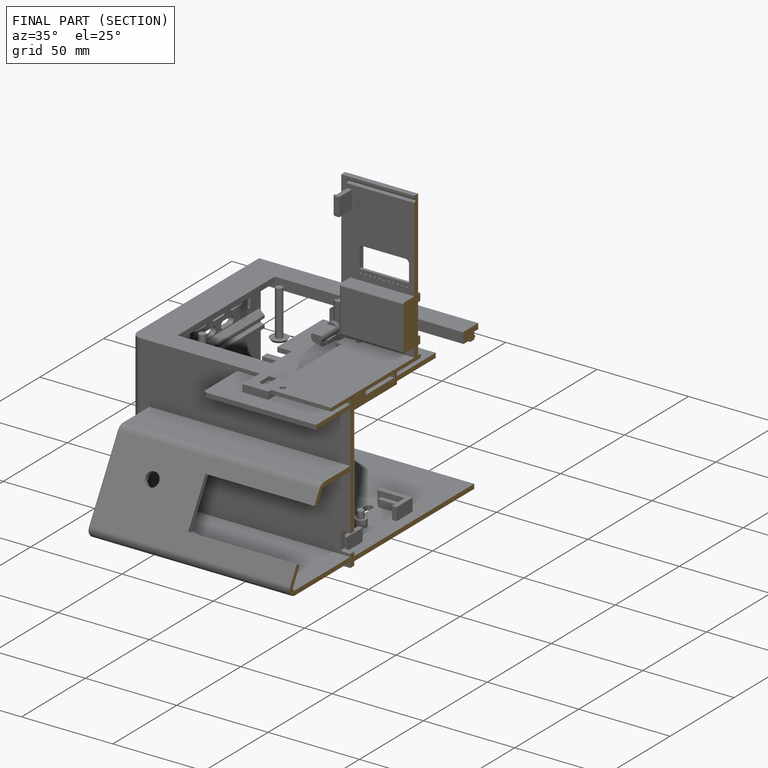
[diagram: finished part — half-section view (interior)]
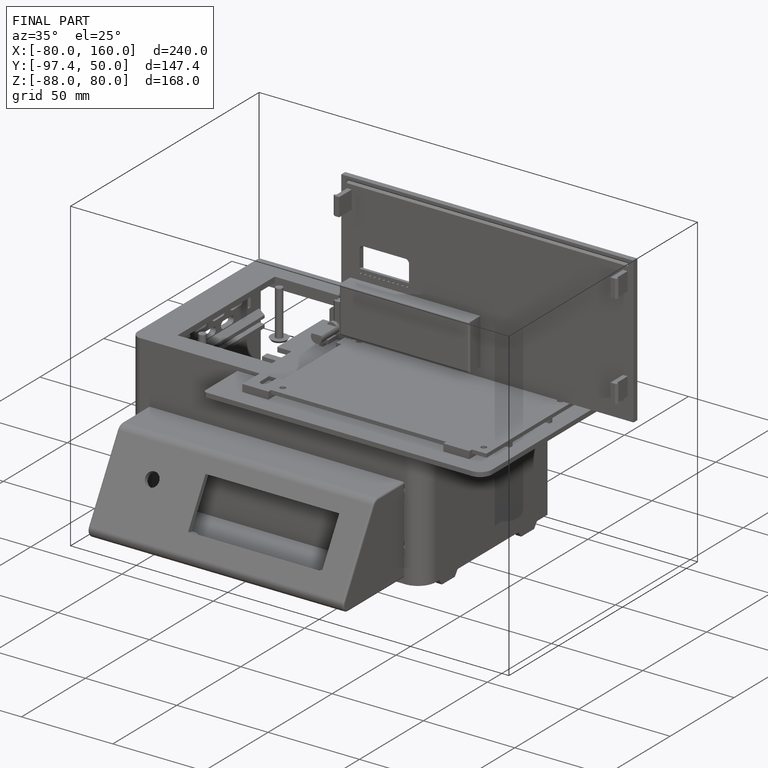
[diagram: finished part — iso view with bounding-box wireframe]
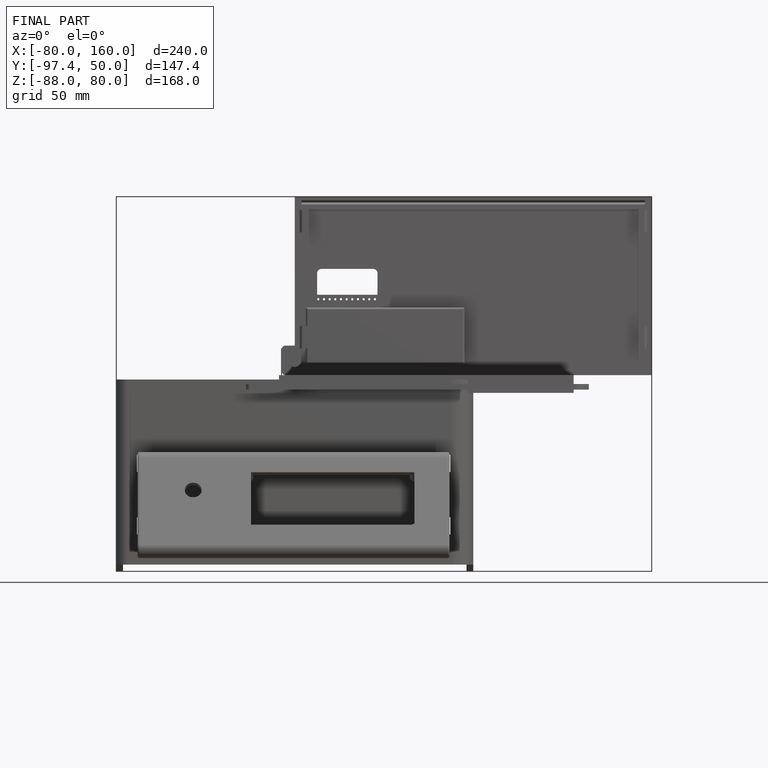
[diagram: finished part — front view with bounding-box wireframe]
